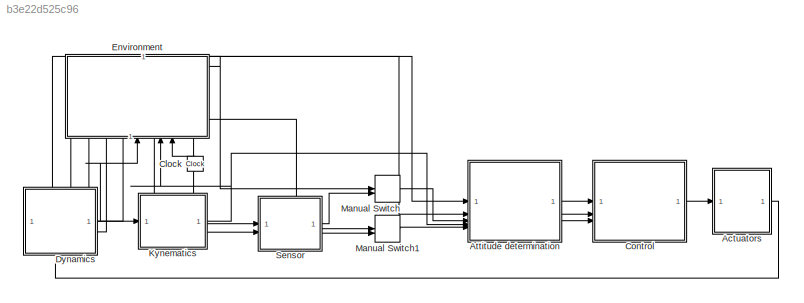
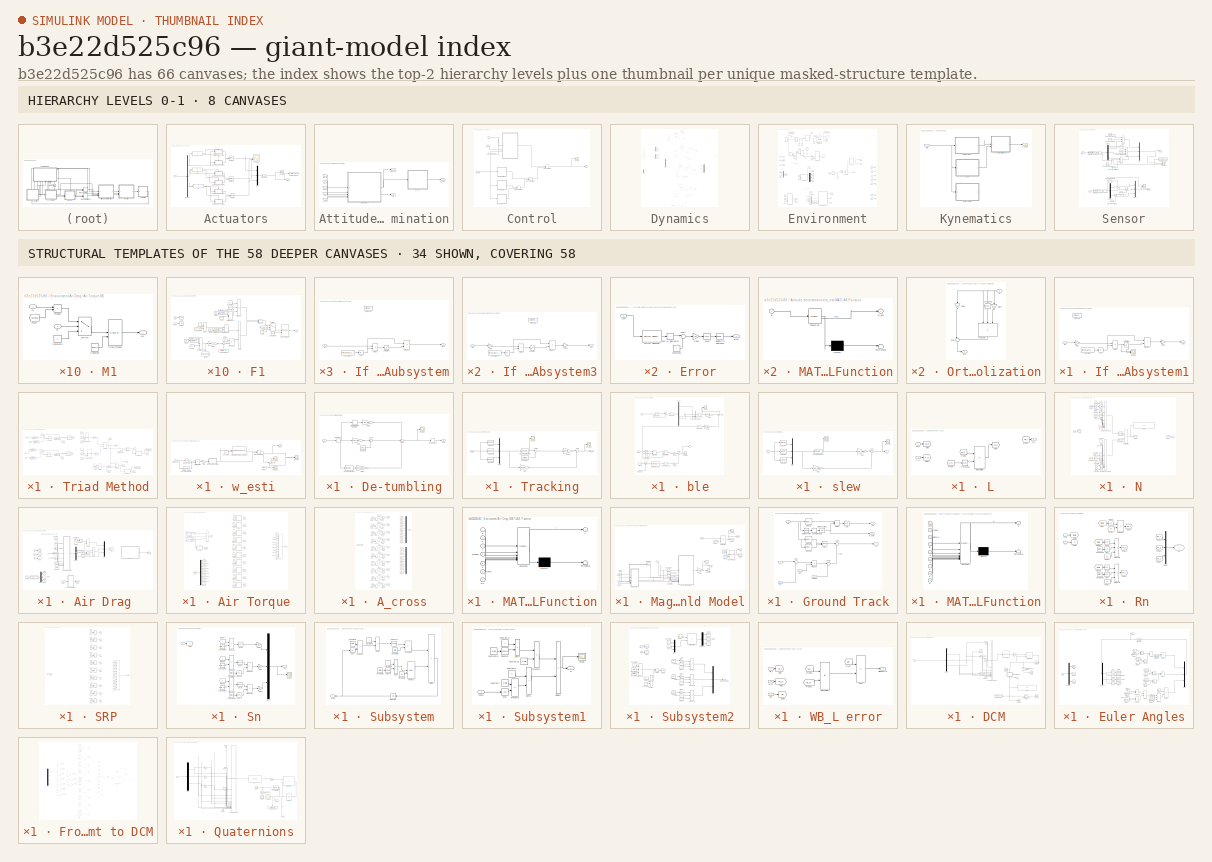
[diagram: thumbnail index - top-2 hierarchy levels (8 canvases) + 34 structural-template representatives of the remaining 58 canvases]
MODEL slx_b3e22d525c96
KIND model
CONFIG AbsTol = 1e-10
CONFIG EnableMultiTasking = off
CONFIG FixedStep = 0.5
CONFIG MaxStep = auto
CONFIG MinStep = auto
CONFIG RelTol = 1e-10
CONFIG SampleTimeConstraint = Unconstrained
CONFIG SolverName = ode45
CONFIG StartTime = 0.0
CONFIG StopTime = 5000
BLOCK [SubSystem] Actuators
BLOCK [Demux] Actuators/Demux
  Outputs = 3
BLOCK [If] Actuators/If
BLOCK [SubSystem] Actuators/If Action Subsystem
  TreatAsAtomicUnit = on
BLOCK [Abs] Actuators/If Action Subsystem/Abs
  SaturateOnIntegerOverflow = off
BLOCK [ActionPort] Actuators/If Action Subsystem/Action Port
  ActionPortLabel = if(u1 > 0)
BLOCK [Constant] Actuators/If Action Subsystem/Constant
  Value = thrus.ACT_x1(3)
BLOCK [Product] Actuators/If Action Subsystem/Divide
  Inputs = */
BLOCK [Inport] Actuators/If Action Subsystem/Mx
BLOCK [Outport] Actuators/If Action Subsystem/Out1
BLOCK [Product] Actuators/If Action Subsystem/Product
BLOCK [Saturate] Actuators/If Action Subsystem/Saturation
  LowerLimit = thrus.low_sat
  UpperLimit = thrus.up_sat
BLOCK [SubSystem] Actuators/If Action Subsystem1
  TreatAsAtomicUnit = on
BLOCK [Inport] Actuators/If Action Subsystem1/-Mx
BLOCK [Abs] Actuators/If Action Subsystem1/Abs
  SaturateOnIntegerOverflow = off
BLOCK [ActionPort] Actuators/If Action Subsystem1/Action Port
  ActionPortLabel = else
BLOCK [Constant] Actuators/If Action Subsystem1/Constant
  Value = thrus.ACT_x2(3)
BLOCK [Product] Actuators/If Action Subsystem1/Divide
  Inputs = */
BLOCK [Gain] Actuators/If Action Subsystem1/Gain
  Gain = -1
BLOCK [Gain] Actuators/If Action Subsystem1/Gain1
  Gain = -1
BLOCK [Outport] Actuators/If Action Subsystem1/Out1
BLOCK [Product] Actuators/If Action Subsystem1/Product
BLOCK [Saturate] Actuators/If Action Subsystem1/Saturation
  LowerLimit = thrus.low_sat
  UpperLimit = thrus.up_sat
BLOCK [Scope] Actuators/If Action Subsystem1/Scope
  Floating = off
  NumInputPorts = 2
  ScopeSpecificationString = Simulink.scopes.TimeScopeBlockCfg('CurrentConfiguration', extmgr.ConfigurationSet(extmgr.Configuration('Core','General UI',true),extmgr.Configuration('Core','Source UI',true),extmgr.Configuration('Sources','WiredSimulink',true,'DataLoggingVariableName','ScopeData6'),extmgr.Configuration('Visuals','Time Domain',true,'SerializedDisplays',{struct('MinYLimReal','-0.00005','MaxYLimReal','0.00045','YLab...<+2099ch>
BLOCK [SubSystem] Actuators/If Action Subsystem2
  TreatAsAtomicUnit = on
BLOCK [Abs] Actuators/If Action Subsystem2/Abs
  SaturateOnIntegerOverflow = off
BLOCK [ActionPort] Actuators/If Action Subsystem2/Action Port
  ActionPortLabel = if(u1 > 0)
BLOCK [Constant] Actuators/If Action Subsystem2/Constant
  Value = thrus.ACT_y1(3)
BLOCK [Product] Actuators/If Action Subsystem2/Divide
  Inputs = */
BLOCK [Inport] Actuators/If Action Subsystem2/My
BLOCK [Outport] Actuators/If Action Subsystem2/Out1
BLOCK [Product] Actuators/If Action Subsystem2/Product
BLOCK [Saturate] Actuators/If Action Subsystem2/Saturation
  LowerLimit = thrus.low_sat
  UpperLimit = thrus.up_sat
BLOCK [SubSystem] Actuators/If Action Subsystem3
  TreatAsAtomicUnit = on
BLOCK [Inport] Actuators/If Action Subsystem3/-My
BLOCK [Abs] Actuators/If Action Subsystem3/Abs
  SaturateOnIntegerOverflow = off
BLOCK [ActionPort] Actuators/If Action Subsystem3/Action Port
  ActionPortLabel = else
BLOCK [Constant] Actuators/If Action Subsystem3/Constant
  Value = thrus.ACT_y2(3)
BLOCK [Product] Actuators/If Action Subsystem3/Divide
  Inputs = */
BLOCK [Gain] Actuators/If Action Subsystem3/Gain
  Gain = -1
BLOCK [Gain] Actuators/If Action Subsystem3/Gain1
  Gain = -1
BLOCK [Outport] Actuators/If Action Subsystem3/Out1
BLOCK [Product] Actuators/If Action Subsystem3/Product
BLOCK [Saturate] Actuators/If Action Subsystem3/Saturation
  LowerLimit = thrus.low_sat
  UpperLimit = thrus.up_sat
BLOCK [SubSystem] Actuators/If Action Subsystem4
  TreatAsAtomicUnit = on
BLOCK [Abs] Actuators/If Action Subsystem4/Abs
  SaturateOnIntegerOverflow = off
BLOCK [ActionPort] Actuators/If Action Subsystem4/Action Port
  ActionPortLabel = if(u1 > 0)
BLOCK [Constant] Actuators/If Action Subsystem4/Constant
  Value = thrus.ACT_z1(2)
BLOCK [Product] Actuators/If Action Subsystem4/Divide
  Inputs = */
BLOCK [Inport] Actuators/If Action Subsystem4/Mz
BLOCK [Outport] Actuators/If Action Subsystem4/Out1
BLOCK [Product] Actuators/If Action Subsystem4/Product
BLOCK [Saturate] Actuators/If Action Subsystem4/Saturation
  LowerLimit = thrus.low_sat
  UpperLimit = thrus.up_sat
BLOCK [SubSystem] Actuators/If Action Subsystem5
  TreatAsAtomicUnit = on
BLOCK [Inport] Actuators/If Action Subsystem5/-Mz
BLOCK [Abs] Actuators/If Action Subsystem5/Abs
  SaturateOnIntegerOverflow = off
BLOCK [ActionPort] Actuators/If Action Subsystem5/Action Port
  ActionPortLabel = else
BLOCK [Constant] Actuators/If Action Subsystem5/Constant
  Value = thrus.ACT_z2(2)
BLOCK [Product] Actuators/If Action Subsystem5/Divide
  Inputs = */
BLOCK [Gain] Actuators/If Action Subsystem5/Gain
  Gain = -1
BLOCK [Gain] Actuators/If Action Subsystem5/Gain1
  Gain = -1
BLOCK [Outport] Actuators/If Action Subsystem5/Out1
BLOCK [Product] Actuators/If Action Subsystem5/Product
BLOCK [Saturate] Actuators/If Action Subsystem5/Saturation
  LowerLimit = thrus.low_sat
  UpperLimit = thrus.up_sat
BLOCK [If] Actuators/If1
BLOCK [If] Actuators/If2
BLOCK [Merge] Actuators/Merge
BLOCK [Merge] Actuators/Merge1
BLOCK [Merge] Actuators/Merge2
BLOCK [Mux] Actuators/Mux
  DisplayOption = bar
  Inputs = 3
BLOCK [Reshape] Actuators/Reshape
  OutputDimensionality = Customize
  OutputDimensions = [1,3]
BLOCK [Scope] Actuators/Scope
  Floating = off
  NumInputPorts = 3
  ScopeSpecificationString = Simulink.scopes.TimeScopeBlockCfg('CurrentConfiguration', extmgr.ConfigurationSet(extmgr.Configuration('Core','General UI',true),extmgr.Configuration('Core','Source UI',true),extmgr.Configuration('Sources','WiredSimulink',true,'DataLoggingVariableName','ScopeData5'),extmgr.Configuration('Visuals','Time Domain',true,'SerializedDisplays',{struct('MinYLimReal','-0.00011','MaxYLimReal','0.00013','YLab...<+2782ch>
BLOCK [Scope] Actuators/Scope1
  Floating = off
  NumInputPorts = 1
  ScopeSpecificationString = Simulink.scopes.TimeScopeBlockCfg('CurrentConfiguration', extmgr.ConfigurationSet(extmgr.Configuration('Core','General UI',true),extmgr.Configuration('Core','Source UI',true),extmgr.Configuration('Sources','WiredSimulink',true,'DataLoggingVariableName','ScopeData7'),extmgr.Configuration('Visuals','Time Domain',true,'SerializedDisplays',{struct('MinYLimReal','-0.00011','MaxYLimReal','0.00012','YLab...<+1446ch>
BLOCK [ToWorkspace] Actuators/To Workspace
  FixptAsFi = on
  MaxDataPoints = inf
  SampleTime = -1
  SaveFormat = Timeseries
  VariableName = T_c
BLOCK [Inport] Actuators/u
BLOCK [Outport] Actuators/u_real
BLOCK [SubSystem] Attitude determination
BLOCK [Inport] Attitude determination/A_DCM
  Port = 4
BLOCK [Outport] Attitude determination/Ae
  Port = 2
BLOCK [Outport] Attitude determination/DCM_est
BLOCK [Inport] Attitude determination/Mm_B
  Port = 3
BLOCK [Inport] Attitude determination/R_n
  Port = 2
BLOCK [Inport] Attitude determination/Rm_b
  Port = 5
BLOCK [SubSystem] Attitude determination/Triad Method
BLOCK [Inport] Attitude determination/Triad Method/A_DCM
  Port = 5
BLOCK [From] Attitude determination/Triad Method/A_LN
  GotoTag = A_LN
  TagVisibility = global
BLOCK [Outport] Attitude determination/Triad Method/Ae
  Port = 2
BLOCK [Reference] Attitude determination/Triad Method/Cross Product  REF=matrix_library/Cross Product
  LibrarySourceBlock = simulink/Matrix\nOperations/Cross Product
  SourceBlock = matrix_library/Cross Product
  SourceType = CrossProduct
BLOCK [Reference] Attitude determination/Triad Method/Cross Product1  REF=matrix_library/Cross Product
  LibrarySourceBlock = simulink/Matrix\nOperations/Cross Product
  SourceBlock = matrix_library/Cross Product
  SourceType = CrossProduct
BLOCK [Reference] Attitude determination/Triad Method/Cross Product2  REF=matrix_library/Cross Product
  LibrarySourceBlock = simulink/Matrix\nOperations/Cross Product
  SourceBlock = matrix_library/Cross Product
  SourceType = CrossProduct
BLOCK [Reference] Attitude determination/Triad Method/Cross Product3  REF=matrix_library/Cross Product
  LibrarySourceBlock = simulink/Matrix\nOperations/Cross Product
  SourceBlock = matrix_library/Cross Product
  SourceType = CrossProduct
BLOCK [Outport] Attitude determination/Triad Method/DCM_est
BLOCK [SubSystem] Attitude determination/Triad Method/Error
BLOCK [Inport] Attitude determination/Triad Method/Error/A_err
BLOCK [Trigonometry] Attitude determination/Triad Method/Error/Acos2
  Operator = acos
BLOCK [Constant] Attitude determination/Triad Method/Error/Constant6
BLOCK [Reference] Attitude determination/Triad Method/Error/Extract Diagonal3  REF=matrix_library/Extract Diagonal
  LibrarySourceBlock = simulink/Matrix\nOperations/Extract Diagonal
  SourceBlock = matrix_library/Extract Diagonal
  SourceType = Extract Diagonal
BLOCK [Gain] Attitude determination/Triad Method/Error/Gain2
  Gain = 0.5
BLOCK [Reference] Attitude determination/Triad Method/Error/Radians to Degrees2  REF=simulink_extras/Transformations/Radians
to Degrees
  SourceBlock = simulink_extras/Transformations/Radians\nto Degrees
  SourceType = RadiansToDegrees
BLOCK [Sum] Attitude determination/Triad Method/Error/Sum of Elements3
  IconShape = rectangular
  Inputs = +
BLOCK [Sum] Attitude determination/Triad Method/Error/Sum7
  Inputs = |+-
BLOCK [Outport] Attitude determination/Triad Method/Error/error
BLOCK [SubSystem] Attitude determination/Triad Method/Error1
BLOCK [Trigonometry] Attitude determination/Triad Method/Error1/Acos2
  Operator = acos
BLOCK [Constant] Attitude determination/Triad Method/Error1/Constant6
BLOCK [Reference] Attitude determination/Triad Method/Error1/Extract Diagonal3  REF=matrix_library/Extract Diagonal
  LibrarySourceBlock = simulink/Matrix\nOperations/Extract Diagonal
  SourceBlock = matrix_library/Extract Diagonal
  SourceType = Extract Diagonal
BLOCK [Gain] Attitude determination/Triad Method/Error1/Gain2
  Gain = 0.5
BLOCK [Inport] Attitude determination/Triad Method/Error1/Id
BLOCK [Reference] Attitude determination/Triad Method/Error1/Radians to Degrees2  REF=simulink_extras/Transformations/Radians
to Degrees
  SourceBlock = simulink_extras/Transformations/Radians\nto Degrees
  SourceType = RadiansToDegrees
BLOCK [Sum] Attitude determination/Triad Method/Error1/Sum of Elements3
  IconShape = rectangular
  Inputs = +
BLOCK [Sum] Attitude determination/Triad Method/Error1/Sum7
  Inputs = |+-
BLOCK [Outport] Attitude determination/Triad Method/Error1/error
BLOCK [From] Attitude determination/Triad Method/From
  GotoTag = S1
  NameLocation = top
BLOCK [From] Attitude determination/Triad Method/From1
  GotoTag = S2
BLOCK [From] Attitude determination/Triad Method/From2
  GotoTag = S3
BLOCK [From] Attitude determination/Triad Method/From3
  GotoTag = V1
  NameLocation = top
BLOCK [From] Attitude determination/Triad Method/From4
  GotoTag = V2
BLOCK [From] Attitude determination/Triad Method/From5
  GotoTag = V3
BLOCK [Goto] Attitude determination/Triad Method/Goto
  GotoTag = S3
BLOCK [Goto] Attitude determination/Triad Method/Goto1
  GotoTag = S1
  NameLocation = top
BLOCK [Goto] Attitude determination/Triad Method/Goto2
  GotoTag = S2
BLOCK [Goto] Attitude determination/Triad Method/Goto3
  GotoTag = V3
BLOCK [Goto] Attitude determination/Triad Method/Goto4
  GotoTag = V1
  NameLocation = top
BLOCK [Goto] Attitude determination/Triad Method/Goto5
  GotoTag = V2
BLOCK [Goto] Attitude determination/Triad Method/Goto6
  GotoTag = A_d
  TagVisibility = global
BLOCK [Concatenate] Attitude determination/Triad Method/Matrix Concatenate
  ConcatenateDimension = 2
  Mode = Multidimensional array
  NumInputs = 3
BLOCK [Concatenate] Attitude determination/Triad Method/Matrix Concatenate1
  ConcatenateDimension = 2
  Mode = Multidimensional array
  NumInputs = 3
BLOCK [Product] Attitude determination/Triad Method/MatrixMultiply
  Multiplication = Matrix(*)
BLOCK [Product] Attitude determination/Triad Method/MatrixMultiply1
  Multiplication = Matrix(*)
BLOCK [Product] Attitude determination/Triad Method/MatrixMultiply2
  Multiplication = Matrix(*)
BLOCK [Product] Attitude determination/Triad Method/MatrixMultiply4
  Multiplication = Matrix(*)
BLOCK [Inport] Attitude determination/Triad Method/Mm_B
  Port = 3
BLOCK [Reference] Attitude determination/Triad Method/Normalize Vector  REF=vrlib/Utilities/Normalize Vector
  SourceBlock = vrlib/Utilities/Normalize Vector
  SourceType = Normalize Vector
BLOCK [Reference] Attitude determination/Triad Method/Normalize Vector1  REF=vrlib/Utilities/Normalize Vector
  SourceBlock = vrlib/Utilities/Normalize Vector
  SourceType = Normalize Vector
BLOCK [Reference] Attitude determination/Triad Method/Normalize Vector2  REF=vrlib/Utilities/Normalize Vector
  SourceBlock = vrlib/Utilities/Normalize Vector
  SourceType = Normalize Vector
BLOCK [Reference] Attitude determination/Triad Method/Normalize Vector3  REF=vrlib/Utilities/Normalize Vector
  SourceBlock = vrlib/Utilities/Normalize Vector
  SourceType = Normalize Vector
BLOCK [Reference] Attitude determination/Triad Method/Normalize Vector4  REF=vrlib/Utilities/Normalize Vector
  SourceBlock = vrlib/Utilities/Normalize Vector
  SourceType = Normalize Vector
BLOCK [Reference] Attitude determination/Triad Method/Normalize Vector5  REF=vrlib/Utilities/Normalize Vector
  SourceBlock = vrlib/Utilities/Normalize Vector
  SourceType = Normalize Vector
BLOCK [Inport] Attitude determination/Triad Method/R_n
  Port = 2
BLOCK [Reshape] Attitude determination/Triad Method/Reshape
  OutputDimensionality = Customize
  OutputDimensions = [3,3]
BLOCK [Inport] Attitude determination/Triad Method/Rm_b
BLOCK [Scope] Attitude determination/Triad Method/Scope
  Floating = off
  NumInputPorts = 1
  ScopeSpecificationString = Simulink.scopes.TimeScopeBlockCfg('CurrentConfiguration', extmgr.ConfigurationSet(extmgr.Configuration('Core','General UI',true),extmgr.Configuration('Core','Source UI',true),extmgr.Configuration('Sources','WiredSimulink',true,'DataLoggingVariableName','ScopeData4'),extmgr.Configuration('Visuals','Time Domain',true,'SerializedDisplays',{struct('MinYLimReal','-1.22995','MaxYLimReal','1.06958','YLab...<+1750ch>
BLOCK [Scope] Attitude determination/Triad Method/Scope1
  Floating = off
  NumInputPorts = 1
  ScopeSpecificationString = Simulink.scopes.TimeScopeBlockCfg('CurrentConfiguration', extmgr.ConfigurationSet(extmgr.Configuration('Core','General UI',true),extmgr.Configuration('Core','Source UI',true),extmgr.Configuration('Sources','WiredSimulink',true,'DataLoggingVariableName','ScopeData5'),extmgr.Configuration('Visuals','Time Domain',true,'SerializedDisplays',{struct('MinYLimReal','-0.35384','MaxYLimReal','1.15043','YLab...<+1788ch>
BLOCK [Scope] Attitude determination/Triad Method/Scope10
  Floating = off
  NumInputPorts = 1
  ScopeSpecificationString = Simulink.scopes.TimeScopeBlockCfg('CurrentConfiguration', extmgr.ConfigurationSet(extmgr.Configuration('Core','General UI',true),extmgr.Configuration('Core','Source UI',true),extmgr.Configuration('Sources','WiredSimulink',true,'DataLoggingVariableName','ScopeData1'),extmgr.Configuration('Visuals','Time Domain',true,'SerializedDisplays',{struct('MinYLimReal','-1.07787','MaxYLimReal','10.1427','YLab...<+1556ch>
BLOCK [Scope] Attitude determination/Triad Method/Scope2
  Floating = off
  NumInputPorts = 1
  ScopeSpecificationString = Simulink.scopes.TimeScopeBlockCfg('CurrentConfiguration', extmgr.ConfigurationSet(extmgr.Configuration('Core','General UI',true),extmgr.Configuration('Core','Source UI',true),extmgr.Configuration('Sources','WiredSimulink',true,'DataLoggingVariableName','ScopeData7'),extmgr.Configuration('Visuals','Time Domain',true,'SerializedDisplays',{struct('MinYLimReal','-1.14138','MaxYLimReal','10.4246','YLab...<+1563ch>
BLOCK [Scope] Attitude determination/Triad Method/Scope9
  Floating = off
  NumInputPorts = 1
  ScopeSpecificationString = Simulink.scopes.TimeScopeBlockCfg('CurrentConfiguration', extmgr.ConfigurationSet(extmgr.Configuration('Core','General UI',true),extmgr.Configuration('Core','Source UI',true),extmgr.Configuration('Sources','WiredSimulink',true,'DataLoggingVariableName','ScopeData2'),extmgr.Configuration('Visuals','Time Domain',true,'SerializedDisplays',{struct('MinYLimReal','-0.37929','MaxYLimReal','1.15325','YLab...<+2010ch>
BLOCK [Constant] Attitude determination/Triad Method/Target in B//L
  Value = A_T
  VectorParams1D = off
BLOCK [ToWorkspace] Attitude determination/Triad Method/To Workspace
  FixptAsFi = on
  MaxDataPoints = inf
  SampleTime = -1
  SaveFormat = Structure
  VariableName = err_triad
BLOCK [ToWorkspace] Attitude determination/Triad Method/To Workspace1
  FixptAsFi = on
  MaxDataPoints = inf
  SampleTime = -1
  SaveFormat = Timeseries
  VariableName = att_err
BLOCK [Math] Attitude determination/Triad Method/Transpose
  Operator = transpose
BLOCK [Math] Attitude determination/Triad Method/Transpose1
  Operator = transpose
BLOCK [Math] Attitude determination/Triad Method/Transpose5
  Operator = transpose
BLOCK [Inport] Attitude determination/Triad Method/m_N
  Port = 4
BLOCK [Inport] Attitude determination/m_N
BLOCK [Outport] Attitude determination/w_est
  Port = 3
BLOCK [SubSystem] Attitude determination/w_esti
BLOCK [Constant] Attitude determination/w_esti/Constant
  Value = 0.2
BLOCK [Inport] Attitude determination/w_esti/DCM_est
BLOCK [Reference] Attitude determination/w_esti/Discrete Derivative  REF=simulink/Quick Insert/Discrete/Discrete Derivative
  SourceBlock = simulink/Quick Insert/Discrete/Discrete Derivative
  SourceType = Discrete Derivative
BLOCK [Reference] Attitude determination/w_esti/Discrete Varying Lowpass  REF=cstblocks/Linear Parameter Varying/Discrete Varying Lowpass
  SourceBlock = cstblocks/Linear Parameter Varying/Discrete Varying Lowpass
  SourceType = Discrete Varying Lowpass
BLOCK [From] Attitude determination/w_esti/From
  GotoTag = wB
  TagVisibility = global
BLOCK [Gain] Attitude determination/w_esti/Gain
  Gain = -1
BLOCK [SubSystem] Attitude determination/w_esti/MATLAB Function
  ErrorFcn = Stateflow.Translate.translate
  LibrarySourceBlock = simulink/User-Defined\nFunctions/MATLAB Function
  PermitHierarchicalResolution = ExplicitOnly
  SFBlockType = MATLAB Function
  TreatAsAtomicUnit = on
BLOCK [Demux] Attitude determination/w_esti/MATLAB Function/ Demux 
  Outputs = 1
BLOCK [S-Function] Attitude determination/w_esti/MATLAB Function/ SFunction 
  EnableBusSupport = on
  FunctionName = sf_sfun
  PortCounts = [1 2]
  SFcnIsStateOwnerBlock = off
  SFunctionDeploymentMode = off
  Tag = Stateflow S-Function 5
BLOCK [Terminator] Attitude determination/w_esti/MATLAB Function/ Terminator 
BLOCK [Inport] Attitude determination/w_esti/MATLAB Function/w
BLOCK [Outport] Attitude determination/w_esti/MATLAB Function/w_est
BLOCK [ManualSwitch] Attitude determination/w_esti/Manual Switch1
BLOCK [Product] Attitude determination/w_esti/MatrixMultiply
  Multiplication = Matrix(*)
BLOCK [Outport] Attitude determination/w_esti/Output
BLOCK [Scope] Attitude determination/w_esti/Scope
  Floating = off
  NumInputPorts = 2
  ScopeSpecificationString = Simulink.scopes.TimeScopeBlockCfg('CurrentConfiguration', extmgr.ConfigurationSet(extmgr.Configuration('Core','General UI',true),extmgr.Configuration('Core','Source UI',true),extmgr.Configuration('Sources','WiredSimulink',true,'DataLoggingVariableName','ScopeData1'),extmgr.Configuration('Visuals','Time Domain',true,'SerializedDisplays',{struct('MinYLimReal','-0.16681','MaxYLimReal','0.12418','YLab...<+2257ch>
BLOCK [Scope] Attitude determination/w_esti/Scope1
  Floating = off
  NumInputPorts = 1
  ScopeSpecificationString = Simulink.scopes.TimeScopeBlockCfg('CurrentConfiguration', extmgr.ConfigurationSet(extmgr.Configuration('Core','General UI',true),extmgr.Configuration('Core','Source UI',true),extmgr.Configuration('Sources','WiredSimulink',true,'DataLoggingVariableName','ScopeData2'),extmgr.Configuration('Visuals','Time Domain',true,'SerializedDisplays',{struct('MinYLimReal','-3001974191835557.5','MaxYLimReal','310...<+1571ch>
BLOCK [Scope] Attitude determination/w_esti/Scope2
  Floating = off
  NumInputPorts = 1
  ScopeSpecificationString = Simulink.scopes.TimeScopeBlockCfg('CurrentConfiguration', extmgr.ConfigurationSet(extmgr.Configuration('Core','General UI',true),extmgr.Configuration('Core','Source UI',true),extmgr.Configuration('Sources','WiredSimulink',true,'DataLoggingVariableName','ScopeData3'),extmgr.Configuration('Visuals','Time Domain',true,'SerializedDisplays',{struct('MinYLimReal','-0.07557','MaxYLimReal','0.08605','YLab...<+1480ch>
BLOCK [Sum] Attitude determination/w_esti/Sum
  Inputs = |+-
BLOCK [Math] Attitude determination/w_esti/Transpose
  Operator = transpose
BLOCK [Clock] Clock
  NameLocation = right
BLOCK [SubSystem] Control
BLOCK [Inport] Control/Ae
  Port = 2
BLOCK [Inport] Control/DCM_est
BLOCK [SubSystem] Control/De-tumbling
  Commented = on
BLOCK [Constant] Control/De-tumbling/Constant
  Value = zero_w
BLOCK [Reference] Control/De-tumbling/Discrete Derivative  REF=simulink/Discrete/Discrete Derivative
  SourceBlock = simulink/Discrete/Discrete Derivative
  SourceType = Discrete Derivative
BLOCK [DiscreteIntegrator] Control/De-tumbling/Discrete-Time Integrator
  ICPrevOutput = DiscIntNeverNeededParam
  ICPrevScaledInput = DiscIntNeverNeededParam
  InitialConditionSetting = Auto
  SampleTime = -1
BLOCK [Gain] Control/De-tumbling/Gain
  Gain = -kp_detum
BLOCK [Gain] Control/De-tumbling/Gain1
  Gain = -kd_detum
BLOCK [Gain] Control/De-tumbling/Gain2
  Gain = -kp_detum
BLOCK [Inport] Control/De-tumbling/In1
BLOCK [Outport] Control/De-tumbling/Out1
BLOCK [Reshape] Control/De-tumbling/Reshape
  OutputDimensionality = Customize
  OutputDimensions = [1,3]
BLOCK [Reshape] Control/De-tumbling/Reshape1
  OutputDimensionality = Customize
  OutputDimensions = [1,3]
BLOCK [Scope] Control/De-tumbling/Scope
  Floating = off
  NumInputPorts = 1
  ScopeSpecificationString = Simulink.scopes.TimeScopeBlockCfg('CurrentConfiguration', extmgr.ConfigurationSet(extmgr.Configuration('Core','General UI',true),extmgr.Configuration('Core','Source UI',true),extmgr.Configuration('Sources','WiredSimulink',true,'DataLoggingVariableName','ScopeData1'),extmgr.Configuration('Visuals','Time Domain',true,'SerializedDisplays',{struct('MinYLimReal','-0.01671','MaxYLimReal','0.00243','YLab...<+1405ch>
BLOCK [Sum] Control/De-tumbling/Sum
  Inputs = +++
BLOCK [Sum] Control/De-tumbling/Sum1
  Inputs = |++
BLOCK [ManualSwitch] Control/Manual Switch
  CurrentSetting = 0
BLOCK [ManualSwitch] Control/Manual Switch1
  CurrentSetting = 0
BLOCK [ManualSwitch] Control/Manual Switch2
BLOCK [Scope] Control/Scope
  Floating = off
  NumInputPorts = 1
  ScopeSpecificationString = Simulink.scopes.TimeScopeBlockCfg('CurrentConfiguration', extmgr.ConfigurationSet(extmgr.Configuration('Core','General UI',true),extmgr.Configuration('Core','Source UI',true),extmgr.Configuration('Sources','WiredSimulink',true,'DataLoggingVariableName','ScopeData3'),extmgr.Configuration('Visuals','Time Domain',true,'SerializedDisplays',{struct('MinYLimReal','-0.07266','MaxYLimReal','0.64922','YLab...<+1483ch>
BLOCK [SubSystem] Control/Tracking
BLOCK [Inport] Control/Tracking/Ae
BLOCK [Constant] Control/Tracking/Constant
  Value = w_track
BLOCK [Reference] Control/Tracking/Discrete Derivative  REF=simulink/Discrete/Discrete Derivative
  SourceBlock = simulink/Discrete/Discrete Derivative
  SourceType = Discrete Derivative
BLOCK [Gain] Control/Tracking/Gain
  Gain = -kp_track
BLOCK [Gain] Control/Tracking/Gain1
  Gain = -kd_track
BLOCK [Mux] Control/Tracking/Mux
  DisplayOption = bar
  Inputs = 3
BLOCK [Scope] Control/Tracking/Scope
  Floating = off
  NumInputPorts = 1
  ScopeSpecificationString = Simulink.scopes.TimeScopeBlockCfg('CurrentConfiguration', extmgr.ConfigurationSet(extmgr.Configuration('Core','General UI',true),extmgr.Configuration('Core','Source UI',true),extmgr.Configuration('Sources','WiredSimulink',true,'DataLoggingVariableName','ScopeData1'),extmgr.Configuration('Visuals','Time Domain',true,'SerializedDisplays',{struct('MinYLimReal','-0.62794','MaxYLimReal','0.65609','YLab...<+1428ch>
BLOCK [Scope] Control/Tracking/Scope1
  Floating = off
  NumInputPorts = 1
  ScopeSpecificationString = Simulink.scopes.TimeScopeBlockCfg('CurrentConfiguration', extmgr.ConfigurationSet(extmgr.Configuration('Core','General UI',true),extmgr.Configuration('Core','Source UI',true),extmgr.Configuration('Sources','WiredSimulink',true,'DataLoggingVariableName','ScopeData3'),extmgr.Configuration('Visuals','Time Domain',true),extmgr.Configuration('Tools','Plot Navigation',true),extmgr.Configuration('Tools',...<+40ch>
BLOCK [Selector] Control/Tracking/Selector
  IndexOptions = Index vector (dialog),Index vector (dialog)
  Indices = 2,3
  InputPortWidth = 3
  NumberOfDimensions = 2
  OutputSizes = 1,1
BLOCK [Selector] Control/Tracking/Selector1
  IndexOptions = Index vector (dialog),Index vector (dialog)
  Indices = 3,1
  InputPortWidth = 3
  NumberOfDimensions = 2
  OutputSizes = 1,1
BLOCK [Selector] Control/Tracking/Selector2
  IndexOptions = Index vector (dialog),Index vector (dialog)
  Indices = 1,2
  InputPortWidth = 3
  NumberOfDimensions = 2
  OutputSizes = 1,1
BLOCK [Sum] Control/Tracking/Sum
  Inputs = |++
BLOCK [Sum] Control/Tracking/Sum1
  Inputs = |+-
BLOCK [Outport] Control/Tracking/u
BLOCK [SubSystem] Control/ble
  Commented = on
BLOCK [Inport] Control/ble/Ae
BLOCK [Constant] Control/ble/Constant1
  Value = I
BLOCK [Inport] Control/ble/DCM_est
  Port = 3
BLOCK [Demux] Control/ble/Demux
  Outputs = 9
BLOCK [Reference] Control/ble/Extract Diagonal  REF=matrix_library/Extract Diagonal
  LibrarySourceBlock = simulink/Matrix\nOperations/Extract Diagonal
  SourceBlock = matrix_library/Extract Diagonal
  SourceType = Extract Diagonal
BLOCK [From] Control/ble/From
  GotoTag = A_d
  TagVisibility = global
BLOCK [Gain] Control/ble/Gain1
  Gain = kp_detum(2)
BLOCK [Gain] Control/ble/Gain2
  Gain = -kd_track
BLOCK [Gain] Control/ble/Gain3
  Gain = -kp_track
BLOCK [Gain] Control/ble/Gain4
  Gain = 0.5
BLOCK [Product] Control/ble/MatrixMultiply
  Multiplication = Matrix(*)
BLOCK [Product] Control/ble/MatrixMultiply1
  Multiplication = Matrix(*)
BLOCK [Reshape] Control/ble/Reshape
  OutputDimensionality = Customize
  OutputDimensions = [9,1]
BLOCK [Reshape] Control/ble/Reshape1
  OutputDimensionality = Customize
  OutputDimensions = [1,3]
BLOCK [Reshape] Control/ble/Reshape2
  OutputDimensionality = Customize
  OutputDimensions = [1,3]
BLOCK [Scope] Control/ble/Scope
  Floating = off
  NumInputPorts = 2
  ScopeSpecificationString = Simulink.scopes.TimeScopeBlockCfg('CurrentConfiguration', extmgr.ConfigurationSet(extmgr.Configuration('Core','General UI',true),extmgr.Configuration('Core','Source UI',true),extmgr.Configuration('Sources','WiredSimulink',true,'DataLoggingVariableName','ScopeData1'),extmgr.Configuration('Visuals','Time Domain',true,'SerializedDisplays',{struct('MinYLimReal','-2.36695','MaxYLimReal','2.41775','YLab...<+2108ch>
BLOCK [Scope] Control/ble/Scope2
  Floating = off
  NumInputPorts = 1
  ScopeSpecificationString = Simulink.scopes.TimeScopeBlockCfg('CurrentConfiguration', extmgr.ConfigurationSet(extmgr.Configuration('Core','General UI',true),extmgr.Configuration('Core','Source UI',true),extmgr.Configuration('Sources','WiredSimulink',true,'DataLoggingVariableName','ScopeData4'),extmgr.Configuration('Visuals','Time Domain',true,'SerializedDisplays',{struct('MinYLimReal','-0.0043','MaxYLimReal','0.03383','YLabe...<+1415ch>
BLOCK [Sum] Control/ble/Sum
  Inputs = |+-
BLOCK [Sum] Control/ble/Sum of Elements
  IconShape = rectangular
  Inputs = +
BLOCK [Sum] Control/ble/Sum1
  Inputs = |++
BLOCK [Sum] Control/ble/Sum2
  Inputs = |++
BLOCK [Sum] Control/ble/Sum3
  Inputs = |+-
BLOCK [Math] Control/ble/Transpose
  Operator = transpose
BLOCK [Math] Control/ble/Transpose1
  Operator = transpose
BLOCK [Concatenate] Control/ble/Vector Concatenate
  NumInputs = 3
BLOCK [Outport] Control/ble/u
BLOCK [Inport] Control/ble/w_est
  Port = 2
BLOCK [SubSystem] Control/slew
  Commented = on
BLOCK [Inport] Control/slew/Ae
BLOCK [Reference] Control/slew/Discrete Derivative  REF=simulink/Discrete/Discrete Derivative
  SourceBlock = simulink/Discrete/Discrete Derivative
  SourceType = Discrete Derivative
BLOCK [Gain] Control/slew/Gain
  Gain = -kp_slew
BLOCK [Gain] Control/slew/Gain1
  Gain = -kd_slew
BLOCK [Mux] Control/slew/Mux
  DisplayOption = bar
  Inputs = 3
BLOCK [Scope] Control/slew/Scope
  Floating = off
  NumInputPorts = 1
  ScopeSpecificationString = Simulink.scopes.TimeScopeBlockCfg('CurrentConfiguration', extmgr.ConfigurationSet(extmgr.Configuration('Core','General UI',true),extmgr.Configuration('Core','Source UI',true),extmgr.Configuration('Sources','WiredSimulink',true,'DataLoggingVariableName','ScopeData1'),extmgr.Configuration('Visuals','Time Domain',true,'SerializedDisplays',{struct('MinYLimReal','-1.74315','MaxYLimReal','2.10451','YLab...<+1428ch>
BLOCK [Scope] Control/slew/Scope1
  Floating = off
  NumInputPorts = 1
  ScopeSpecificationString = Simulink.scopes.TimeScopeBlockCfg('CurrentConfiguration', extmgr.ConfigurationSet(extmgr.Configuration('Core','General UI',true),extmgr.Configuration('Core','Source UI',true),extmgr.Configuration('Sources','WiredSimulink',true,'DataLoggingVariableName','ScopeData2'),extmgr.Configuration('Visuals','Time Domain',true,'SerializedDisplays',{struct('MinYLimReal','-0.01201','MaxYLimReal','0.01148','YLab...<+1405ch>
BLOCK [Selector] Control/slew/Selector
  IndexOptions = Index vector (dialog),Index vector (dialog)
  Indices = 2,3
  InputPortWidth = 3
  NumberOfDimensions = 2
  OutputSizes = 1,1
BLOCK [Selector] Control/slew/Selector1
  IndexOptions = Index vector (dialog),Index vector (dialog)
  Indices = 3,1
  InputPortWidth = 3
  NumberOfDimensions = 2
  OutputSizes = 1,1
BLOCK [Selector] Control/slew/Selector2
  IndexOptions = Index vector (dialog),Index vector (dialog)
  Indices = 1,2
  InputPortWidth = 3
  NumberOfDimensions = 2
  OutputSizes = 1,1
BLOCK [Sum] Control/slew/Sum
  Inputs = |++
BLOCK [Outport] Control/slew/u
BLOCK [Outport] Control/u
BLOCK [Inport] Control/w_est
  Port = 3
BLOCK [InportShadow] Control/w_est1
  Port = 3
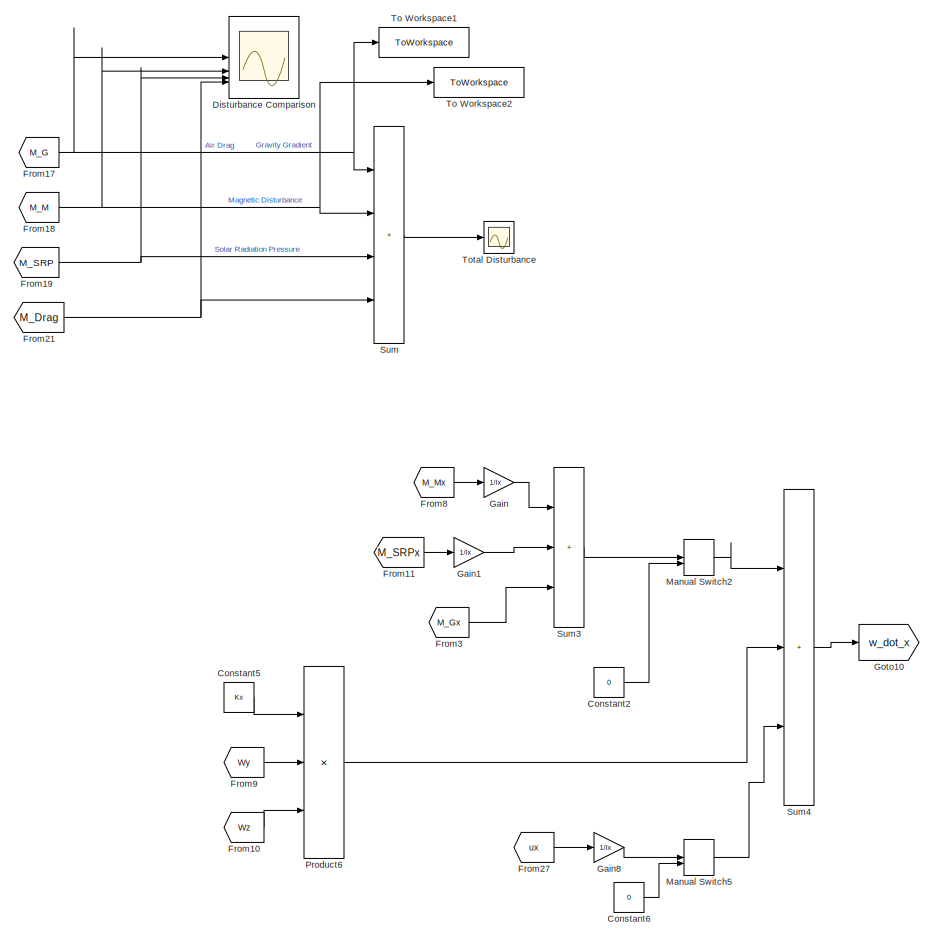
[diagram: Dynamics - part 1/5, top center region]
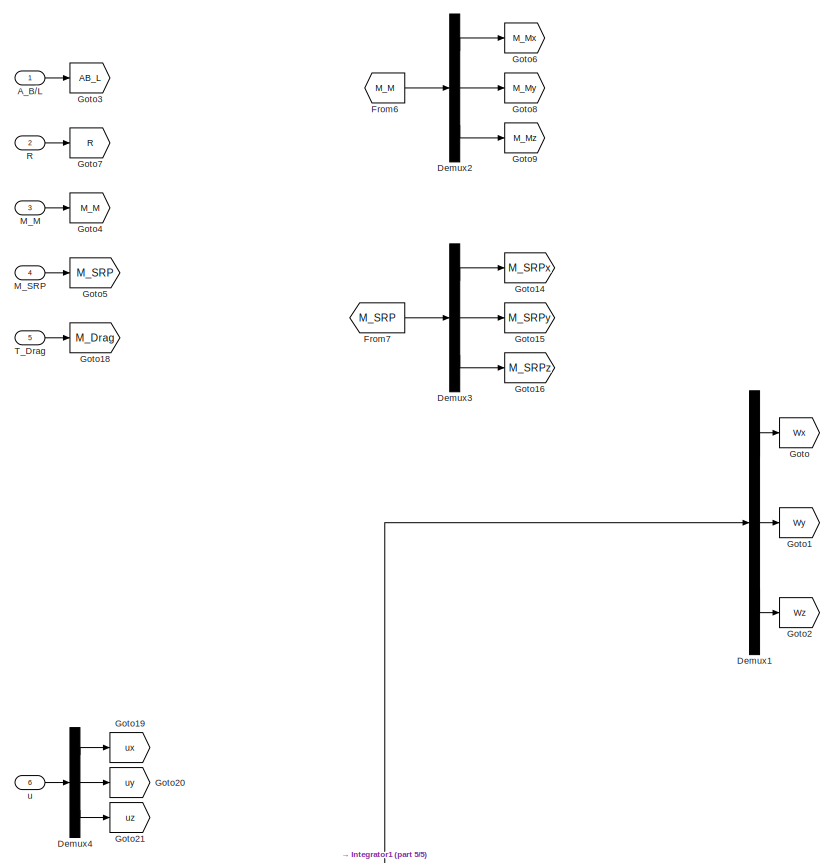
[diagram: Dynamics - part 2/5, middle left region]
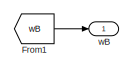
[diagram: Dynamics - part 3/5, middle right region]
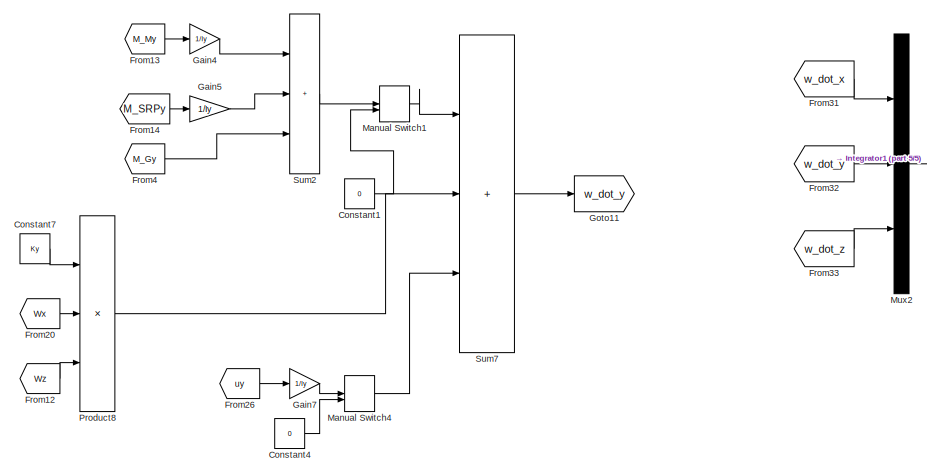
[diagram: Dynamics - part 4/5, central region]
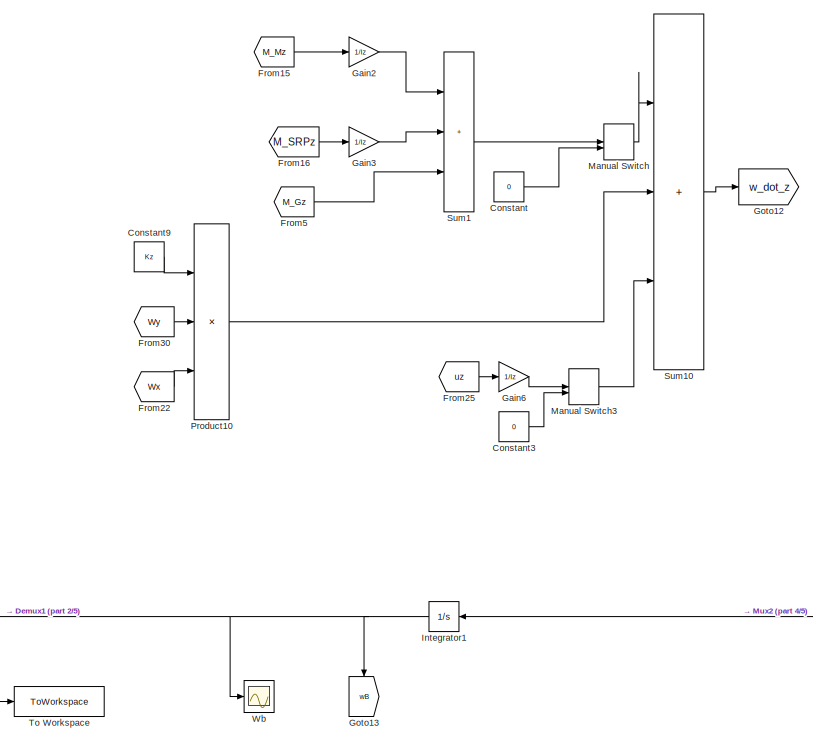
[diagram: Dynamics - part 5/5, bottom center region]
BLOCK [SubSystem] Dynamics
  PortSchema = {"entries":[{"content":{"sides":[{"content":{"connectorIds":["In1","In2","In3","In4","In5"]},"type":"ConnectorPlacement.EquallySpacedRectSide","uuid":"e2546f43-0f76-43d8-9016-47189d28d8c0"},{"content":{"connectorIds":["Out1"],"side":"RIGHT"},"type":"ConnectorPlacement.EquallySpacedRectSide","uuid":"72ec595a-943a-4b6a-9d51-6626181bb7e6"},{"content":{"connectorIds":[],"side":"TOP"},"type":"Connector...<+413ch>
BLOCK [Inport] Dynamics/A_B//L
BLOCK [Constant] Dynamics/Constant
  Value = 0
BLOCK [Constant] Dynamics/Constant1
  Value = 0
BLOCK [Constant] Dynamics/Constant2
  Value = 0
BLOCK [Constant] Dynamics/Constant3
  Value = 0
BLOCK [Constant] Dynamics/Constant4
  Value = 0
BLOCK [Constant] Dynamics/Constant5
  Value = Kx
BLOCK [Constant] Dynamics/Constant6
  Value = 0
BLOCK [Constant] Dynamics/Constant7
  Value = Ky
BLOCK [Constant] Dynamics/Constant9
  Value = Kz
BLOCK [Demux] Dynamics/Demux1
  Outputs = 3
BLOCK [Demux] Dynamics/Demux2
  Outputs = 3
BLOCK [Demux] Dynamics/Demux3
  Outputs = 3
BLOCK [Demux] Dynamics/Demux4
  Outputs = 3
BLOCK [Scope] Dynamics/Disturbance Comparison
  Floating = off
  NumInputPorts = 4
  ScopeSpecificationString = Simulink.scopes.TimeScopeBlockCfg('CurrentConfiguration', extmgr.ConfigurationSet(extmgr.Configuration('Core','General UI',true),extmgr.Configuration('Core','Source UI',true),extmgr.Configuration('Sources','WiredSimulink',true,'DataLoggingVariableName','ScopeData2'),extmgr.Configuration('Visuals','Time Domain',true,'SerializedDisplays',{struct('MinYLimReal','-0.000004','MaxYLimReal','0.000004','YL...<+3790ch>
BLOCK [From] Dynamics/From1
  GotoTag = wB
  TagVisibility = global
BLOCK [From] Dynamics/From10
  GotoTag = Wz
BLOCK [From] Dynamics/From11
  Commented = on
  GotoTag = M_SRPx
BLOCK [From] Dynamics/From12
  GotoTag = Wz
BLOCK [From] Dynamics/From13
  GotoTag = M_My
BLOCK [From] Dynamics/From14
  Commented = on
  GotoTag = M_SRPy
BLOCK [From] Dynamics/From15
  GotoTag = M_Mz
BLOCK [From] Dynamics/From16
  Commented = on
  GotoTag = M_SRPz
BLOCK [From] Dynamics/From17
  GotoTag = M_G
  TagVisibility = global
BLOCK [From] Dynamics/From18
  GotoTag = M_M
BLOCK [From] Dynamics/From19
  GotoTag = M_SRP
BLOCK [From] Dynamics/From20
  GotoTag = Wx
BLOCK [From] Dynamics/From21
  GotoTag = M_Drag
BLOCK [From] Dynamics/From22
  GotoTag = Wx
BLOCK [From] Dynamics/From25
  GotoTag = uz
BLOCK [From] Dynamics/From26
  GotoTag = uy
BLOCK [From] Dynamics/From27
  GotoTag = ux
BLOCK [From] Dynamics/From3
  GotoTag = M_Gx
  TagVisibility = global
BLOCK [From] Dynamics/From30
  GotoTag = Wy
BLOCK [From] Dynamics/From31
  GotoTag = w_dot_x
BLOCK [From] Dynamics/From32
  GotoTag = w_dot_y
BLOCK [From] Dynamics/From33
  GotoTag = w_dot_z
BLOCK [From] Dynamics/From4
  GotoTag = M_Gy
  TagVisibility = global
BLOCK [From] Dynamics/From5
  GotoTag = M_Gz
  TagVisibility = global
BLOCK [From] Dynamics/From6
  GotoTag = M_M
BLOCK [From] Dynamics/From7
  GotoTag = M_SRP
BLOCK [From] Dynamics/From8
  GotoTag = M_Mx
BLOCK [From] Dynamics/From9
  GotoTag = Wy
BLOCK [Gain] Dynamics/Gain
  Gain = 1/Ix
BLOCK [Gain] Dynamics/Gain1
  Commented = on
  Gain = 1/Ix
BLOCK [Gain] Dynamics/Gain2
  Gain = 1/Iz
BLOCK [Gain] Dynamics/Gain3
  Commented = on
  Gain = 1/Iz
BLOCK [Gain] Dynamics/Gain4
  Gain = 1/Iy
BLOCK [Gain] Dynamics/Gain5
  Commented = on
  Gain = 1/Iy
BLOCK [Gain] Dynamics/Gain6
  Gain = 1/Iz
BLOCK [Gain] Dynamics/Gain7
  Gain = 1/Iy
BLOCK [Gain] Dynamics/Gain8
  Gain = 1/Ix
BLOCK [Goto] Dynamics/Goto
  GotoTag = Wx
BLOCK [Goto] Dynamics/Goto1
  GotoTag = Wy
BLOCK [Goto] Dynamics/Goto10
  GotoTag = w_dot_x
BLOCK [Goto] Dynamics/Goto11
  GotoTag = w_dot_y
BLOCK [Goto] Dynamics/Goto12
  GotoTag = w_dot_z
BLOCK [Goto] Dynamics/Goto13
  GotoTag = wB
  NameLocation = left
  TagVisibility = global
BLOCK [Goto] Dynamics/Goto14
  GotoTag = M_SRPx
BLOCK [Goto] Dynamics/Goto15
  GotoTag = M_SRPy
BLOCK [Goto] Dynamics/Goto16
  GotoTag = M_SRPz
BLOCK [Goto] Dynamics/Goto18
  GotoTag = M_Drag
BLOCK [Goto] Dynamics/Goto19
  GotoTag = ux
BLOCK [Goto] Dynamics/Goto2
  GotoTag = Wz
BLOCK [Goto] Dynamics/Goto20
  GotoTag = uy
BLOCK [Goto] Dynamics/Goto21
  GotoTag = uz
BLOCK [Goto] Dynamics/Goto3
  GotoTag = AB_L
BLOCK [Goto] Dynamics/Goto4
  GotoTag = M_M
BLOCK [Goto] Dynamics/Goto5
  GotoTag = M_SRP
BLOCK [Goto] Dynamics/Goto6
  GotoTag = M_Mx
BLOCK [Goto] Dynamics/Goto7
  GotoTag = R
BLOCK [Goto] Dynamics/Goto8
  GotoTag = M_My
BLOCK [Goto] Dynamics/Goto9
  GotoTag = M_Mz
BLOCK [Integrator] Dynamics/Integrator1
  InitialCondition = [w0x; w0y; w0z]'
  NameLocation = top
BLOCK [Inport] Dynamics/M_M
  Port = 3
BLOCK [Inport] Dynamics/M_SRP
  Port = 4
BLOCK [ManualSwitch] Dynamics/Manual Switch
BLOCK [ManualSwitch] Dynamics/Manual Switch1
BLOCK [ManualSwitch] Dynamics/Manual Switch2
BLOCK [ManualSwitch] Dynamics/Manual Switch3
BLOCK [ManualSwitch] Dynamics/Manual Switch4
BLOCK [ManualSwitch] Dynamics/Manual Switch5
BLOCK [Mux] Dynamics/Mux2
  DisplayOption = bar
  Inputs = 3
BLOCK [Product] Dynamics/Product10
  Inputs = 3
BLOCK [Product] Dynamics/Product6
  Inputs = 3
BLOCK [Product] Dynamics/Product8
  Inputs = 3
BLOCK [Inport] Dynamics/R
  Port = 2
BLOCK [Sum] Dynamics/Sum
  IconShape = rectangular
  Inputs = ++++
BLOCK [Sum] Dynamics/Sum1
  IconShape = rectangular
  Inputs = +++
BLOCK [Sum] Dynamics/Sum10
  IconShape = rectangular
  Inputs = +++
BLOCK [Sum] Dynamics/Sum2
  IconShape = rectangular
  Inputs = +++
BLOCK [Sum] Dynamics/Sum3
  IconShape = rectangular
  Inputs = +++
BLOCK [Sum] Dynamics/Sum4
  IconShape = rectangular
  Inputs = +++
BLOCK [Sum] Dynamics/Sum7
  IconShape = rectangular
  Inputs = +++
BLOCK [Inport] Dynamics/T_Drag
  Port = 5
BLOCK [ToWorkspace] Dynamics/To Workspace
  FixptAsFi = on
  MaxDataPoints = inf
  SampleTime = -1
  SaveFormat = Timeseries
  VariableName = W_vec
BLOCK [ToWorkspace] Dynamics/To Workspace1
  FixptAsFi = on
  MaxDataPoints = inf
  SampleTime = -1
  SaveFormat = Timeseries
  VariableName = M_G
BLOCK [ToWorkspace] Dynamics/To Workspace2
  FixptAsFi = on
  MaxDataPoints = inf
  SampleTime = -1
  SaveFormat = Timeseries
  VariableName = M_M
BLOCK [Scope] Dynamics/Total Disturbance
  Floating = off
  NumInputPorts = 1
  ScopeSpecificationString = Simulink.scopes.TimeScopeBlockCfg('CurrentConfiguration', extmgr.ConfigurationSet(extmgr.Configuration('Core','General UI',true),extmgr.Configuration('Core','Source UI',true),extmgr.Configuration('Sources','WiredSimulink',true,'DataLoggingVariableName','ScopeData1'),extmgr.Configuration('Visuals','Time Domain',true,'SerializedDisplays',{struct('MinYLimReal','-0.01281','MaxYLimReal','0.11524','YLab...<+1412ch>
BLOCK [Scope] Dynamics/Wb
  Floating = off
  NumInputPorts = 1
  ScopeSpecificationString = Simulink.scopes.TimeScopeBlockCfg('CurrentConfiguration', extmgr.ConfigurationSet(extmgr.Configuration('Core','General UI',true),extmgr.Configuration('Core','Source UI',true),extmgr.Configuration('Sources','WiredSimulink',true,'DataLoggingVariableName','ScopeData3'),extmgr.Configuration('Visuals','Time Domain',true,'SerializedDisplays',{struct('MinYLimReal','-47.33876','MaxYLimReal','424.39293','Y...<+1553ch>
BLOCK [Inport] Dynamics/u
  Port = 6
BLOCK [Outport] Dynamics/wB
BLOCK [SubSystem] Environment
  NameLocation = top
  PortSchema = {"entries":[{"content":{"sides":[{"content":{"connectorIds":["In1","In2","In3"]},"type":"ConnectorPlacement.EquallySpacedRectSide","uuid":"e1717e5b-cb7c-4233-b289-9a3e14a88712"},{"content":{"connectorIds":[],"side":"RIGHT"},"type":"ConnectorPlacement.EquallySpacedRectSide","uuid":"74d5df0c-20a5-474c-8972-acb600e0318c"},{"content":{"connectorIds":["Out5","Out6","Out7","Out8","Out9"],"side":"TOP"},"...<+451ch>
BLOCK [Outport] Environment/AB_L
  Port = 5
BLOCK [Inport] Environment/AB_N
  Port = 2
BLOCK [Scope] Environment/A_B//L
  Floating = off
  NumInputPorts = 1
  ScopeSpecificationString = Simulink.scopes.TimeScopeBlockCfg('CurrentConfiguration', extmgr.ConfigurationSet(extmgr.Configuration('Core','General UI',true),extmgr.Configuration('Core','Source UI',true),extmgr.Configuration('Sources','WiredSimulink',true,'DataLoggingVariableName','ScopeData6'),extmgr.Configuration('Visuals','Time Domain',true,'SerializedDisplays',{struct('MinYLimReal','-1.25','MaxYLimReal','1.25','YLabelReal...<+1466ch>
BLOCK [SubSystem] Environment/A_B//L 
BLOCK [Outport] Environment/A_B//L /AB_L
BLOCK [Inport] Environment/A_B//L /AB_N
BLOCK [Inport] Environment/A_B//L /AL_N
  Port = 2
BLOCK [From] Environment/A_B//L /From
  GotoTag = AB_L
BLOCK [From] Environment/A_B//L /From7
  GotoTag = AL_N
BLOCK [From] Environment/A_B//L /From8
  GotoTag = AB_N
BLOCK [Goto] Environment/A_B//L /Goto
  GotoTag = AB_N
BLOCK [Goto] Environment/A_B//L /Goto1
  GotoTag = AL_N
BLOCK [Goto] Environment/A_B//L /Goto7
  GotoTag = AB_L
BLOCK [Product] Environment/A_B//L /Matrix Multiply
  Multiplication = Matrix(*)
BLOCK [Math] Environment/A_B//L /Transpose
  Operator = transpose
BLOCK [Scope] Environment/A_B//N
  Floating = off
  NumInputPorts = 1
  ScopeSpecificationString = Simulink.scopes.TimeScopeBlockCfg('CurrentConfiguration', extmgr.ConfigurationSet(extmgr.Configuration('Core','General UI',true),extmgr.Configuration('Core','Source UI',true),extmgr.Configuration('Sources','WiredSimulink',true,'DataLoggingVariableName','ScopeData7'),extmgr.Configuration('Visuals','Time Domain',true,'SerializedDisplays',{struct('MinYLimReal','-1.24996','MaxYLimReal','1.25','YLabelR...<+1454ch>
BLOCK [Scope] Environment/A_L//N
  Floating = off
  NumInputPorts = 1
  ScopeSpecificationString = Simulink.scopes.TimeScopeBlockCfg('CurrentConfiguration', extmgr.ConfigurationSet(extmgr.Configuration('Core','General UI',true),extmgr.Configuration('Core','Source UI',true),extmgr.Configuration('Sources','WiredSimulink',true,'DataLoggingVariableName','ScopeData8'),extmgr.Configuration('Visuals','Time Domain',true,'SerializedDisplays',{struct('MinYLimReal','-1.25','MaxYLimReal','1.25','YLabelReal...<+1473ch>
BLOCK [SubSystem] Environment/A_L//N 
BLOCK [Outport] Environment/A_L//N /AL_N
BLOCK [Constant] Environment/A_L//N /Constant
BLOCK [Constant] Environment/A_L//N /Constant1
BLOCK [Constant] Environment/A_L//N /Constant2
  Value = orbit.incl
BLOCK [Constant] Environment/A_L//N /Constant3
  Value = orbit.incl
BLOCK [Constant] Environment/A_L//N /Constant4
  Value = orbit.incl
BLOCK [Constant] Environment/A_L//N /Constant5
  Value = orbit.incl
BLOCK [Trigonometry] Environment/A_L//N /Cos
  Operator = cos
BLOCK [Trigonometry] Environment/A_L//N /Cos1
BLOCK [Trigonometry] Environment/A_L//N /Cos2
BLOCK [Trigonometry] Environment/A_L//N /Cos3
  Operator = cos
BLOCK [Trigonometry] Environment/A_L//N /Cos4
  Operator = cos
BLOCK [Trigonometry] Environment/A_L//N /Cos5
BLOCK [Trigonometry] Environment/A_L//N /Cos6
  Operator = cos
BLOCK [Trigonometry] Environment/A_L//N /Cos7
BLOCK [Display] Environment/A_L//N /Display
  Decimation = 1
BLOCK [From] Environment/A_L//N /From
  GotoTag = theta
BLOCK [From] Environment/A_L//N /From1
  GotoTag = theta
BLOCK [From] Environment/A_L//N /From2
  GotoTag = theta
BLOCK [From] Environment/A_L//N /From3
  GotoTag = theta
BLOCK [From] Environment/A_L//N /From7
  GotoTag = AL_N
BLOCK [Gain] Environment/A_L//N /Gain
  Gain = -1
BLOCK [Gain] Environment/A_L//N /Gain1
  Gain = -1
BLOCK [Goto] Environment/A_L//N /Goto
  GotoTag = theta
BLOCK [Goto] Environment/A_L//N /Goto5
  GotoTag = AL_N
BLOCK [Ground] Environment/A_L//N /Ground
BLOCK [Ground] Environment/A_L//N /Ground1
BLOCK [Ground] Environment/A_L//N /Ground2
BLOCK [Ground] Environment/A_L//N /Ground3
BLOCK [Product] Environment/A_L//N /Matrix Multiply
  Multiplication = Matrix(*)
BLOCK [Reshape] Environment/A_L//N /Reshape
  OutputDimensionality = Customize
  OutputDimensions = [3,3]
BLOCK [Reshape] Environment/A_L//N /Reshape1
  OutputDimensionality = Customize
  OutputDimensions = [3,3]
BLOCK [Concatenate] Environment/A_L//N /Vector Concatenate
  NumInputs = 9
BLOCK [Concatenate] Environment/A_L//N /Vector Concatenate1
  NumInputs = 9
BLOCK [Inport] Environment/A_L//N /theta
BLOCK [SubSystem] Environment/Air Drag 
  Commented = on
BLOCK [SubSystem] Environment/Air Drag /Air Torque
BLOCK [SubSystem] Environment/Air Drag /Air Torque/A_cross
BLOCK [Constant] Environment/Air Drag /Air Torque/A_cross/Constant
  Value = body.n1
BLOCK [Constant] Environment/Air Drag /Air Torque/A_cross/Constant1
  Value = body.A1
BLOCK [Constant] Environment/Air Drag /Air Torque/A_cross/Constant10
  Value = body.n6
BLOCK [Constant] Environment/Air Drag /Air Torque/A_cross/Constant11
  Value = body.A6
BLOCK [Constant] Environment/Air Drag /Air Torque/A_cross/Constant12
  Value = body.n7
BLOCK [Constant] Environment/Air Drag /Air Torque/A_cross/Constant13
  Value = body.A7
BLOCK [Constant] Environment/Air Drag /Air Torque/A_cross/Constant14
  Value = body.n8
BLOCK [Constant] Environment/Air Drag /Air Torque/A_cross/Constant15
  Value = body.A8
BLOCK [Constant] Environment/Air Drag /Air Torque/A_cross/Constant16
  Value = body.n9
BLOCK [Constant] Environment/Air Drag /Air Torque/A_cross/Constant17
  Value = body.A9
BLOCK [Constant] Environment/Air Drag /Air Torque/A_cross/Constant18
  Value = body.n10
BLOCK [Constant] Environment/Air Drag /Air Torque/A_cross/Constant19
  Value = body.A10
BLOCK [Constant] Environment/Air Drag /Air Torque/A_cross/Constant2
  Value = body.n2
BLOCK [Constant] Environment/Air Drag /Air Torque/A_cross/Constant3
  Value = body.A2
BLOCK [Constant] Environment/Air Drag /Air Torque/A_cross/Constant4
  Value = body.n3
BLOCK [Constant] Environment/Air Drag /Air Torque/A_cross/Constant5
  Value = body.A3
BLOCK [Constant] Environment/Air Drag /Air Torque/A_cross/Constant6
  Value = body.n4
BLOCK [Constant] Environment/Air Drag /Air Torque/A_cross/Constant7
  Value = body.A4
BLOCK [Constant] Environment/Air Drag /Air Torque/A_cross/Constant8
  Value = body.n5
BLOCK [Constant] Environment/Air Drag /Air Torque/A_cross/Constant9
  Value = body.A5
BLOCK [DotProduct] Environment/Air Drag /Air Torque/A_cross/Dot Product
  OutDataTypeStr = Inherit: Inherit via internal rule
BLOCK [DotProduct] Environment/Air Drag /Air Torque/A_cross/Dot Product1
  OutDataTypeStr = Inherit: Inherit via internal rule
BLOCK [DotProduct] Environment/Air Drag /Air Torque/A_cross/Dot Product2
  OutDataTypeStr = Inherit: Inherit via internal rule
BLOCK [DotProduct] Environment/Air Drag /Air Torque/A_cross/Dot Product3
  OutDataTypeStr = Inherit: Inherit via internal rule
BLOCK [DotProduct] Environment/Air Drag /Air Torque/A_cross/Dot Product4
  OutDataTypeStr = Inherit: Inherit via internal rule
BLOCK [DotProduct] Environment/Air Drag /Air Torque/A_cross/Dot Product5
  OutDataTypeStr = Inherit: Inherit via internal rule
BLOCK [DotProduct] Environment/Air Drag /Air Torque/A_cross/Dot Product6
  OutDataTypeStr = Inherit: Inherit via internal rule
BLOCK [DotProduct] Environment/Air Drag /Air Torque/A_cross/Dot Product7
  OutDataTypeStr = Inherit: Inherit via internal rule
BLOCK [DotProduct] Environment/Air Drag /Air Torque/A_cross/Dot Product8
  OutDataTypeStr = Inherit: Inherit via internal rule
BLOCK [DotProduct] Environment/Air Drag /Air Torque/A_cross/Dot Product9
  OutDataTypeStr = Inherit: Inherit via internal rule
BLOCK [From] Environment/Air Drag /Air Torque/A_cross/From
  GotoTag = vr_norm
BLOCK [From] Environment/Air Drag /Air Torque/A_cross/From1
  GotoTag = vr_norm
BLOCK [From] Environment/Air Drag /Air Torque/A_cross/From10
  Commented = on
  GotoTag = A1cross
BLOCK [From] Environment/Air Drag /Air Torque/A_cross/From11
  Commented = on
  GotoTag = A2cross
BLOCK [From] Environment/Air Drag /Air Torque/A_cross/From12
  Commented = on
  GotoTag = A3cross
BLOCK [From] Environment/Air Drag /Air Torque/A_cross/From13
  Commented = on
  GotoTag = A4cross
BLOCK [From] Environment/Air Drag /Air Torque/A_cross/From14
  Commented = on
  GotoTag = A5cross
BLOCK [From] Environment/Air Drag /Air Torque/A_cross/From15
  Commented = on
  GotoTag = A6cross
BLOCK [From] Environment/Air Drag /Air Torque/A_cross/From16
  Commented = on
  GotoTag = A7cross
BLOCK [From] Environment/Air Drag /Air Torque/A_cross/From17
  Commented = on
  GotoTag = A8cross
BLOCK [From] Environment/Air Drag /Air Torque/A_cross/From18
  Commented = on
  GotoTag = A9cross
BLOCK [From] Environment/Air Drag /Air Torque/A_cross/From19
  Commented = on
  GotoTag = A10cross
BLOCK [From] Environment/Air Drag /Air Torque/A_cross/From2
  GotoTag = vr_norm
BLOCK [From] Environment/Air Drag /Air Torque/A_cross/From20
  GotoTag = n1cross
BLOCK [From] Environment/Air Drag /Air Torque/A_cross/From21
  GotoTag = n2cross
BLOCK [From] Environment/Air Drag /Air Torque/A_cross/From22
  GotoTag = n3cross
BLOCK [From] Environment/Air Drag /Air Torque/A_cross/From23
  GotoTag = n4cross
BLOCK [From] Environment/Air Drag /Air Torque/A_cross/From24
  GotoTag = n5cross
BLOCK [From] Environment/Air Drag /Air Torque/A_cross/From25
  GotoTag = n6cross
BLOCK [From] Environment/Air Drag /Air Torque/A_cross/From26
  GotoTag = n8cross
BLOCK [From] Environment/Air Drag /Air Torque/A_cross/From27
  GotoTag = n7cross
BLOCK [From] Environment/Air Drag /Air Torque/A_cross/From28
  GotoTag = n9cross
BLOCK [From] Environment/Air Drag /Air Torque/A_cross/From29
  GotoTag = n10cross
BLOCK [From] Environment/Air Drag /Air Torque/A_cross/From3
  GotoTag = vr_norm
BLOCK [From] Environment/Air Drag /Air Torque/A_cross/From4
  GotoTag = vr_norm
BLOCK [From] Environment/Air Drag /Air Torque/A_cross/From5
  GotoTag = vr_norm
BLOCK [From] Environment/Air Drag /Air Torque/A_cross/From6
  GotoTag = vr_norm
BLOCK [From] Environment/Air Drag /Air Torque/A_cross/From7
  GotoTag = vr_norm
BLOCK [From] Environment/Air Drag /Air Torque/A_cross/From8
  GotoTag = vr_norm
BLOCK [From] Environment/Air Drag /Air Torque/A_cross/From9
  GotoTag = vr_norm
BLOCK [Goto] Environment/Air Drag /Air Torque/A_cross/Goto
  GotoTag = vr_norm
BLOCK [Goto] Environment/Air Drag /Air Torque/A_cross/Goto1
  GotoTag = A1cross
  TagVisibility = global
BLOCK [Goto] Environment/Air Drag /Air Torque/A_cross/Goto10
  GotoTag = A10cross
  TagVisibility = global
BLOCK [Goto] Environment/Air Drag /Air Torque/A_cross/Goto11
  GotoTag = n1cross
BLOCK [Goto] Environment/Air Drag /Air Torque/A_cross/Goto12
  GotoTag = n2cross
BLOCK [Goto] Environment/Air Drag /Air Torque/A_cross/Goto13
  GotoTag = n3cross
BLOCK [Goto] Environment/Air Drag /Air Torque/A_cross/Goto14
  GotoTag = n4cross
BLOCK [Goto] Environment/Air Drag /Air Torque/A_cross/Goto15
  GotoTag = n5cross
BLOCK [Goto] Environment/Air Drag /Air Torque/A_cross/Goto16
  GotoTag = n6cross
BLOCK [Goto] Environment/Air Drag /Air Torque/A_cross/Goto17
  GotoTag = n7cross
BLOCK [Goto] Environment/Air Drag /Air Torque/A_cross/Goto18
  GotoTag = n8cross
BLOCK [Goto] Environment/Air Drag /Air Torque/A_cross/Goto19
  GotoTag = n9cross
BLOCK [Goto] Environment/Air Drag /Air Torque/A_cross/Goto2
  GotoTag = A2cross
  TagVisibility = global
BLOCK [Goto] Environment/Air Drag /Air Torque/A_cross/Goto20
  GotoTag = n10cross
BLOCK [Goto] Environment/Air Drag /Air Torque/A_cross/Goto3
  GotoTag = A3cross
  TagVisibility = global
BLOCK [Goto] Environment/Air Drag /Air Torque/A_cross/Goto4
  GotoTag = A4cross
  TagVisibility = global
BLOCK [Goto] Environment/Air Drag /Air Torque/A_cross/Goto5
  GotoTag = A5cross
  TagVisibility = global
BLOCK [Goto] Environment/Air Drag /Air Torque/A_cross/Goto6
  GotoTag = A6cross
  TagVisibility = global
BLOCK [Goto] Environment/Air Drag /Air Torque/A_cross/Goto7
  GotoTag = A7cross
  TagVisibility = global
BLOCK [Goto] Environment/Air Drag /Air Torque/A_cross/Goto8
  GotoTag = A8cross
  TagVisibility = global
BLOCK [Goto] Environment/Air Drag /Air Torque/A_cross/Goto9
  GotoTag = A9cross
  TagVisibility = global
BLOCK [Mux] Environment/Air Drag /Air Torque/A_cross/Mux
  Commented = on
  DisplayOption = bar
  Inputs = 10
BLOCK [Mux] Environment/Air Drag /Air Torque/A_cross/Mux1
  DisplayOption = bar
  Inputs = 10
BLOCK [Product] Environment/Air Drag /Air Torque/A_cross/Product
BLOCK [Product] Environment/Air Drag /Air Torque/A_cross/Product1
BLOCK [Product] Environment/Air Drag /Air Torque/A_cross/Product2
BLOCK [Product] Environment/Air Drag /Air Torque/A_cross/Product3
BLOCK [Product] Environment/Air Drag /Air Torque/A_cross/Product4
BLOCK [Product] Environment/Air Drag /Air Torque/A_cross/Product5
BLOCK [Product] Environment/Air Drag /Air Torque/A_cross/Product6
BLOCK [Product] Environment/Air Drag /Air Torque/A_cross/Product7
BLOCK [Product] Environment/Air Drag /Air Torque/A_cross/Product8
BLOCK [Product] Environment/Air Drag /Air Torque/A_cross/Product9
BLOCK [Inport] Environment/Air Drag /Air Torque/A_cross/Vr_norm
BLOCK [Outport] Environment/Air Drag /Air Torque/A_cross/n_cross
BLOCK [Demux] Environment/Air Drag /Air Torque/Demux
  Outputs = 10
BLOCK [From] Environment/Air Drag /Air Torque/From
  GotoTag = F
BLOCK [From] Environment/Air Drag /Air Torque/From1
  GotoTag = n1cross
BLOCK [From] Environment/Air Drag /Air Torque/From10
  GotoTag = F
BLOCK [From] Environment/Air Drag /Air Torque/From11
  GotoTag = F
BLOCK [From] Environment/Air Drag /Air Torque/From12
  GotoTag = n3cross
BLOCK [From] Environment/Air Drag /Air Torque/From13
  GotoTag = n4cross
BLOCK [From] Environment/Air Drag /Air Torque/From14
  GotoTag = n5cross
BLOCK [From] Environment/Air Drag /Air Torque/From15
  GotoTag = n6cross
BLOCK [From] Environment/Air Drag /Air Torque/From16
  GotoTag = n7cross
BLOCK [From] Environment/Air Drag /Air Torque/From17
  GotoTag = n8cross
BLOCK [From] Environment/Air Drag /Air Torque/From18
  GotoTag = n9cross
BLOCK [From] Environment/Air Drag /Air Torque/From19
  GotoTag = n10cross
BLOCK [From] Environment/Air Drag /Air Torque/From2
  GotoTag = F
BLOCK [From] Environment/Air Drag /Air Torque/From20
  GotoTag = M1
BLOCK [From] Environment/Air Drag /Air Torque/From21
  GotoTag = M2
BLOCK [From] Environment/Air Drag /Air Torque/From22
  GotoTag = M3
BLOCK [From] Environment/Air Drag /Air Torque/From23
  GotoTag = M4
BLOCK [From] Environment/Air Drag /Air Torque/From24
  GotoTag = M5
BLOCK [From] Environment/Air Drag /Air Torque/From25
  GotoTag = M6
BLOCK [From] Environment/Air Drag /Air Torque/From26
  GotoTag = M7
BLOCK [From] Environment/Air Drag /Air Torque/From27
  GotoTag = M8
BLOCK [From] Environment/Air Drag /Air Torque/From28
  GotoTag = M9
BLOCK [From] Environment/Air Drag /Air Torque/From29
  GotoTag = M10
BLOCK [From] Environment/Air Drag /Air Torque/From3
  GotoTag = n2cross
BLOCK [From] Environment/Air Drag /Air Torque/From30
  GotoTag = Rho
  TagVisibility = global
BLOCK [From] Environment/Air Drag /Air Torque/From31
  GotoTag = Vr
  TagVisibility = global
BLOCK [From] Environment/Air Drag /Air Torque/From32
  GotoTag = Vr
  TagVisibility = global
BLOCK [From] Environment/Air Drag /Air Torque/From33
  GotoTag = n_cross
BLOCK [From] Environment/Air Drag /Air Torque/From4
  GotoTag = F
BLOCK [From] Environment/Air Drag /Air Torque/From5
  GotoTag = F
BLOCK [From] Environment/Air Drag /Air Torque/From6
  GotoTag = F
BLOCK [From] Environment/Air Drag /Air Torque/From7
  GotoTag = F
BLOCK [From] Environment/Air Drag /Air Torque/From8
  GotoTag = F
BLOCK [From] Environment/Air Drag /Air Torque/From9
  GotoTag = F
BLOCK [Gain] Environment/Air Drag /Air Torque/Gain
  Gain = -1/2
BLOCK [Gain] Environment/Air Drag /Air Torque/Gain1
  Gain = Cd
BLOCK [Goto] Environment/Air Drag /Air Torque/Goto
  GotoTag = F
BLOCK [Goto] Environment/Air Drag /Air Torque/Goto10
  GotoTag = n1cross
BLOCK [Goto] Environment/Air Drag /Air Torque/Goto11
  GotoTag = n2cross
BLOCK [Goto] Environment/Air Drag /Air Torque/Goto12
  GotoTag = n3cross
BLOCK [Goto] Environment/Air Drag /Air Torque/Goto13
  GotoTag = n4cross
BLOCK [Goto] Environment/Air Drag /Air Torque/Goto14
  GotoTag = n5cross
BLOCK [Goto] Environment/Air Drag /Air Torque/Goto15
  GotoTag = n6cross
BLOCK [Goto] Environment/Air Drag /Air Torque/Goto16
  GotoTag = n7cross
BLOCK [Goto] Environment/Air Drag /Air Torque/Goto17
  GotoTag = n8cross
BLOCK [Goto] Environment/Air Drag /Air Torque/Goto18
  GotoTag = n9cross
BLOCK [Goto] Environment/Air Drag /Air Torque/Goto19
  GotoTag = n10cross
BLOCK [Goto] Environment/Air Drag /Air Torque/Goto20
  GotoTag = M1
BLOCK [Goto] Environment/Air Drag /Air Torque/Goto21
  GotoTag = M2
BLOCK [Goto] Environment/Air Drag /Air Torque/Goto22
  GotoTag = M3
BLOCK [Goto] Environment/Air Drag /Air Torque/Goto23
  GotoTag = M4
BLOCK [Goto] Environment/Air Drag /Air Torque/Goto24
  GotoTag = M5
BLOCK [Goto] Environment/Air Drag /Air Torque/Goto25
  GotoTag = M6
BLOCK [Goto] Environment/Air Drag /Air Torque/Goto26
  GotoTag = M7
BLOCK [Goto] Environment/Air Drag /Air Torque/Goto27
  GotoTag = M8
BLOCK [Goto] Environment/Air Drag /Air Torque/Goto28
  GotoTag = M9
BLOCK [Goto] Environment/Air Drag /Air Torque/Goto29
  GotoTag = M10
BLOCK [Goto] Environment/Air Drag /Air Torque/Goto30
  GotoTag = n_cross
BLOCK [SubSystem] Environment/Air Drag /Air Torque/M1
BLOCK [Constant] Environment/Air Drag /Air Torque/M1/Constant
  Value = body.r1
BLOCK [Constant] Environment/Air Drag /Air Torque/M1/Constant1
  Value = 0
BLOCK [Reference] Environment/Air Drag /Air Torque/M1/Cross Product  REF=vrlib/Utilities/Cross Product
  SourceBlock = vrlib/Utilities/Cross Product
  SourceType = Cross Product
BLOCK [Inport] Environment/Air Drag /Air Torque/M1/F1
BLOCK [From] Environment/Air Drag /Air Torque/M1/From
  GotoTag = A1cross
  TagVisibility = global
BLOCK [Outport] Environment/Air Drag /Air Torque/M1/M1
BLOCK [Product] Environment/Air Drag /Air Torque/M1/Product
BLOCK [Switch] Environment/Air Drag /Air Torque/M1/Switch
  Criteria = u2 > Threshold
  InputSameDT = off
  SaturateOnIntegerOverflow = off
BLOCK [Inport] Environment/Air Drag /Air Torque/M1/n1
  Port = 2
BLOCK [SubSystem] Environment/Air Drag /Air Torque/M10
BLOCK [Constant] Environment/Air Drag /Air Torque/M10/Constant
  Value = body.r10
BLOCK [Constant] Environment/Air Drag /Air Torque/M10/Constant1
  Value = 0
BLOCK [Reference] Environment/Air Drag /Air Torque/M10/Cross Product  REF=vrlib/Utilities/Cross Product
  SourceBlock = vrlib/Utilities/Cross Product
  SourceType = Cross Product
BLOCK [Inport] Environment/Air Drag /Air Torque/M10/F10
BLOCK [From] Environment/Air Drag /Air Torque/M10/From
  GotoTag = A10cross
  TagVisibility = global
BLOCK [Outport] Environment/Air Drag /Air Torque/M10/M10
BLOCK [Product] Environment/Air Drag /Air Torque/M10/Product
BLOCK [Switch] Environment/Air Drag /Air Torque/M10/Switch
  Criteria = u2 > Threshold
  InputSameDT = off
  SaturateOnIntegerOverflow = off
BLOCK [Inport] Environment/Air Drag /Air Torque/M10/n10
  Port = 2
BLOCK [SubSystem] Environment/Air Drag /Air Torque/M2
BLOCK [Constant] Environment/Air Drag /Air Torque/M2/Constant
  Value = body.r2
BLOCK [Constant] Environment/Air Drag /Air Torque/M2/Constant1
  Value = 0
BLOCK [Reference] Environment/Air Drag /Air Torque/M2/Cross Product  REF=vrlib/Utilities/Cross Product
  SourceBlock = vrlib/Utilities/Cross Product
  SourceType = Cross Product
BLOCK [Inport] Environment/Air Drag /Air Torque/M2/F2
BLOCK [From] Environment/Air Drag /Air Torque/M2/From
  GotoTag = A2cross
  TagVisibility = global
BLOCK [Outport] Environment/Air Drag /Air Torque/M2/M2
BLOCK [Product] Environment/Air Drag /Air Torque/M2/Product
BLOCK [Switch] Environment/Air Drag /Air Torque/M2/Switch
  Criteria = u2 > Threshold
  InputSameDT = off
  SaturateOnIntegerOverflow = off
BLOCK [Inport] Environment/Air Drag /Air Torque/M2/n2
  Port = 2
BLOCK [SubSystem] Environment/Air Drag /Air Torque/M3
BLOCK [Constant] Environment/Air Drag /Air Torque/M3/Constant
  Value = body.r3
BLOCK [Constant] Environment/Air Drag /Air Torque/M3/Constant1
  Value = 0
BLOCK [Reference] Environment/Air Drag /Air Torque/M3/Cross Product  REF=vrlib/Utilities/Cross Product
  SourceBlock = vrlib/Utilities/Cross Product
  SourceType = Cross Product
BLOCK [Inport] Environment/Air Drag /Air Torque/M3/F3
BLOCK [From] Environment/Air Drag /Air Torque/M3/From
  GotoTag = A3cross
  TagVisibility = global
BLOCK [Outport] Environment/Air Drag /Air Torque/M3/M3
BLOCK [Product] Environment/Air Drag /Air Torque/M3/Product
BLOCK [Switch] Environment/Air Drag /Air Torque/M3/Switch
  Criteria = u2 > Threshold
  InputSameDT = off
  SaturateOnIntegerOverflow = off
BLOCK [Inport] Environment/Air Drag /Air Torque/M3/n3
  Port = 2
BLOCK [SubSystem] Environment/Air Drag /Air Torque/M4
BLOCK [Constant] Environment/Air Drag /Air Torque/M4/Constant
  Value = body.r4
BLOCK [Constant] Environment/Air Drag /Air Torque/M4/Constant1
  Value = 0
BLOCK [Reference] Environment/Air Drag /Air Torque/M4/Cross Product  REF=vrlib/Utilities/Cross Product
  SourceBlock = vrlib/Utilities/Cross Product
  SourceType = Cross Product
BLOCK [Inport] Environment/Air Drag /Air Torque/M4/F4
BLOCK [From] Environment/Air Drag /Air Torque/M4/From
  GotoTag = A4cross
  TagVisibility = global
BLOCK [Outport] Environment/Air Drag /Air Torque/M4/M4
BLOCK [Product] Environment/Air Drag /Air Torque/M4/Product
BLOCK [Switch] Environment/Air Drag /Air Torque/M4/Switch
  Criteria = u2 > Threshold
  InputSameDT = off
  SaturateOnIntegerOverflow = off
BLOCK [Inport] Environment/Air Drag /Air Torque/M4/n4
  Port = 2
BLOCK [SubSystem] Environment/Air Drag /Air Torque/M5
BLOCK [Constant] Environment/Air Drag /Air Torque/M5/Constant
  Value = body.r5
BLOCK [Constant] Environment/Air Drag /Air Torque/M5/Constant1
  Value = 0
BLOCK [Reference] Environment/Air Drag /Air Torque/M5/Cross Product  REF=vrlib/Utilities/Cross Product
  SourceBlock = vrlib/Utilities/Cross Product
  SourceType = Cross Product
BLOCK [Inport] Environment/Air Drag /Air Torque/M5/F5
BLOCK [From] Environment/Air Drag /Air Torque/M5/From
  GotoTag = A5cross
  TagVisibility = global
BLOCK [Outport] Environment/Air Drag /Air Torque/M5/M5
BLOCK [Product] Environment/Air Drag /Air Torque/M5/Product
BLOCK [Switch] Environment/Air Drag /Air Torque/M5/Switch
  Criteria = u2 > Threshold
  InputSameDT = off
  SaturateOnIntegerOverflow = off
BLOCK [Inport] Environment/Air Drag /Air Torque/M5/n5
  Port = 2
BLOCK [SubSystem] Environment/Air Drag /Air Torque/M6
BLOCK [Constant] Environment/Air Drag /Air Torque/M6/Constant
  Value = body.r6
BLOCK [Constant] Environment/Air Drag /Air Torque/M6/Constant1
  Value = 0
BLOCK [Reference] Environment/Air Drag /Air Torque/M6/Cross Product  REF=vrlib/Utilities/Cross Product
  SourceBlock = vrlib/Utilities/Cross Product
  SourceType = Cross Product
BLOCK [Inport] Environment/Air Drag /Air Torque/M6/F6
BLOCK [From] Environment/Air Drag /Air Torque/M6/From
  GotoTag = A6cross
  TagVisibility = global
BLOCK [Outport] Environment/Air Drag /Air Torque/M6/M6
BLOCK [Product] Environment/Air Drag /Air Torque/M6/Product
BLOCK [Switch] Environment/Air Drag /Air Torque/M6/Switch
  Criteria = u2 > Threshold
  InputSameDT = off
  SaturateOnIntegerOverflow = off
BLOCK [Inport] Environment/Air Drag /Air Torque/M6/n6
  Port = 2
BLOCK [SubSystem] Environment/Air Drag /Air Torque/M7
BLOCK [Constant] Environment/Air Drag /Air Torque/M7/Constant
  Value = body.r7
BLOCK [Constant] Environment/Air Drag /Air Torque/M7/Constant1
  Value = 0
BLOCK [Reference] Environment/Air Drag /Air Torque/M7/Cross Product  REF=vrlib/Utilities/Cross Product
  SourceBlock = vrlib/Utilities/Cross Product
  SourceType = Cross Product
BLOCK [Inport] Environment/Air Drag /Air Torque/M7/F7
BLOCK [From] Environment/Air Drag /Air Torque/M7/From
  GotoTag = A7cross
  TagVisibility = global
BLOCK [Outport] Environment/Air Drag /Air Torque/M7/M7
BLOCK [Product] Environment/Air Drag /Air Torque/M7/Product
BLOCK [Switch] Environment/Air Drag /Air Torque/M7/Switch
  Criteria = u2 > Threshold
  InputSameDT = off
  SaturateOnIntegerOverflow = off
BLOCK [Inport] Environment/Air Drag /Air Torque/M7/n7
  Port = 2
BLOCK [SubSystem] Environment/Air Drag /Air Torque/M8
BLOCK [Constant] Environment/Air Drag /Air Torque/M8/Constant
  Value = body.r8
BLOCK [Constant] Environment/Air Drag /Air Torque/M8/Constant1
  Value = 0
BLOCK [Reference] Environment/Air Drag /Air Torque/M8/Cross Product  REF=vrlib/Utilities/Cross Product
  SourceBlock = vrlib/Utilities/Cross Product
  SourceType = Cross Product
BLOCK [Inport] Environment/Air Drag /Air Torque/M8/F8
BLOCK [From] Environment/Air Drag /Air Torque/M8/From
  GotoTag = A8cross
  TagVisibility = global
BLOCK [Outport] Environment/Air Drag /Air Torque/M8/M8
BLOCK [Product] Environment/Air Drag /Air Torque/M8/Product
BLOCK [Switch] Environment/Air Drag /Air Torque/M8/Switch
  Criteria = u2 > Threshold
  InputSameDT = off
  SaturateOnIntegerOverflow = off
BLOCK [Inport] Environment/Air Drag /Air Torque/M8/n8
  Port = 2
BLOCK [SubSystem] Environment/Air Drag /Air Torque/M9
BLOCK [Constant] Environment/Air Drag /Air Torque/M9/Constant
  Value = body.r9
BLOCK [Constant] Environment/Air Drag /Air Torque/M9/Constant1
  Value = 0
BLOCK [Reference] Environment/Air Drag /Air Torque/M9/Cross Product  REF=vrlib/Utilities/Cross Product
  SourceBlock = vrlib/Utilities/Cross Product
  SourceType = Cross Product
BLOCK [Inport] Environment/Air Drag /Air Torque/M9/F9
BLOCK [From] Environment/Air Drag /Air Torque/M9/From
  GotoTag = A9cross
  TagVisibility = global
BLOCK [Outport] Environment/Air Drag /Air Torque/M9/M9
BLOCK [Product] Environment/Air Drag /Air Torque/M9/Product
BLOCK [Switch] Environment/Air Drag /Air Torque/M9/Switch
  Criteria = u2 > Threshold
  InputSameDT = off
  SaturateOnIntegerOverflow = off
BLOCK [Inport] Environment/Air Drag /Air Torque/M9/n9
  Port = 2
BLOCK [Outport] Environment/Air Drag /Air Torque/M_Air
BLOCK [Math] Environment/Air Drag /Air Torque/Magnitude Squared
  Operator = magnitude^2
BLOCK [Reference] Environment/Air Drag /Air Torque/Normalize Vector  REF=vrlib/Utilities/Normalize Vector
  SourceBlock = vrlib/Utilities/Normalize Vector
  SourceType = Normalize Vector
BLOCK [Product] Environment/Air Drag /Air Torque/Product2
  Inputs = 3
BLOCK [Sum] Environment/Air Drag /Air Torque/Sum
  IconShape = rectangular
  Inputs = ++++++++++
BLOCK [Constant] Environment/Air Drag /Constant
  Value = orbit.a
BLOCK [Constant] Environment/Air Drag /Constant1
  Value = orbit.e
BLOCK [Constant] Environment/Air Drag /Constant2
  Value = orbit.incl
BLOCK [Constant] Environment/Air Drag /Constant3
  Value = orbit.omega
BLOCK [Constant] Environment/Air Drag /Constant4
  Value = orbit.w_p
BLOCK [Constant] Environment/Air Drag /Constant5
  Value = orbit.mu
BLOCK [Constant] Environment/Air Drag /Constant6
  Value = orbit.w_E
BLOCK [Constant] Environment/Air Drag /Constant7
  Value = orbit.w_E
BLOCK [Demux] Environment/Air Drag /Demux
  Outputs = 3
BLOCK [Demux] Environment/Air Drag /Demux1
  Outputs = 3
BLOCK [From] Environment/Air Drag /From
  GotoTag = theta
BLOCK [From] Environment/Air Drag /From1
  GotoTag = R
BLOCK [From] Environment/Air Drag /From2
  GotoTag = R_N
BLOCK [From] Environment/Air Drag /From3
  GotoTag = y
BLOCK [From] Environment/Air Drag /From4
  GotoTag = x
BLOCK [Goto] Environment/Air Drag /Goto
  GotoTag = theta
BLOCK [Goto] Environment/Air Drag /Goto1
  GotoTag = R_N
BLOCK [Goto] Environment/Air Drag /Goto2
  GotoTag = x
BLOCK [Goto] Environment/Air Drag /Goto3
  GotoTag = y
BLOCK [Goto] Environment/Air Drag /Goto4
  GotoTag = z
BLOCK [Goto] Environment/Air Drag /Goto5
  GotoTag = Vr
  TagVisibility = global
BLOCK [Goto] Environment/Air Drag /Goto6
  GotoTag = R
BLOCK [Goto] Environment/Air Drag /Goto7
  GotoTag = Rho
  TagVisibility = global
BLOCK [Inport] Environment/Air Drag /In1
BLOCK [Inport] Environment/Air Drag /In2
  Port = 2
BLOCK [Inport] Environment/Air Drag /In3
  Port = 3
BLOCK [Reference] Environment/Air Drag /Length Conversion  REF=aerolibconvert2/Length Conversion
  SourceBlock = aerolibconvert2/Length Conversion
  SourceType = Length Conversion
BLOCK [SubSystem] Environment/Air Drag /MATLAB Function
  ErrorFcn = Stateflow.Translate.translate
  PermitHierarchicalResolution = ExplicitOnly
  SFBlockType = MATLAB Function
  TreatAsAtomicUnit = on
BLOCK [Demux] Environment/Air Drag /MATLAB Function/ Demux 
  Outputs = 1
BLOCK [S-Function] Environment/Air Drag /MATLAB Function/ SFunction 
  EnableBusSupport = on
  FunctionName = sf_sfun
  PortCounts = [7 2]
  SFcnIsStateOwnerBlock = off
  SFunctionDeploymentMode = off
  Tag = Stateflow S-Function 2
BLOCK [Terminator] Environment/Air Drag /MATLAB Function/ Terminator 
BLOCK [Inport] Environment/Air Drag /MATLAB Function/a
BLOCK [Inport] Environment/Air Drag /MATLAB Function/e
  Port = 2
BLOCK [Inport] Environment/Air Drag /MATLAB Function/i
  Port = 3
BLOCK [Inport] Environment/Air Drag /MATLAB Function/mu
  Port = 7
BLOCK [Inport] Environment/Air Drag /MATLAB Function/omega
  Port = 4
BLOCK [Inport] Environment/Air Drag /MATLAB Function/theta
  Port = 6
BLOCK [Outport] Environment/Air Drag /MATLAB Function/v
BLOCK [Inport] Environment/Air Drag /MATLAB Function/w
  Port = 5
BLOCK [SubSystem] Environment/Air Drag /MATLAB Function1
  ErrorFcn = Stateflow.Translate.translate
  PermitHierarchicalResolution = ExplicitOnly
  SFBlockType = MATLAB Function
  TreatAsAtomicUnit = on
BLOCK [Demux] Environment/Air Drag /MATLAB Function1/ Demux 
  Outputs = 1
BLOCK [S-Function] Environment/Air Drag /MATLAB Function1/ SFunction 
  EnableBusSupport = on
  FunctionName = sf_sfun
  PortCounts = [1 2]
  SFcnIsStateOwnerBlock = off
  SFunctionDeploymentMode = off
  Tag = Stateflow S-Function 1
BLOCK [Terminator] Environment/Air Drag /MATLAB Function1/ Terminator 
BLOCK [Inport] Environment/Air Drag /MATLAB Function1/R
BLOCK [Outport] Environment/Air Drag /MATLAB Function1/Rho
BLOCK [Outport] Environment/Air Drag /M_air
BLOCK [Mux] Environment/Air Drag /Mux
  DisplayOption = bar
  Inputs = 3
BLOCK [Product] Environment/Air Drag /Product
BLOCK [Product] Environment/Air Drag /Product1
BLOCK [Sum] Environment/Air Drag /Sum
  IconShape = rectangular
BLOCK [Sum] Environment/Air Drag /Sum1
  IconShape = rectangular
  Inputs = +-
BLOCK [Constant] Environment/Constant
  Value = orbit.n
BLOCK [Constant] Environment/Constant1
  Value = 0
BLOCK [Constant] Environment/Constant3
  Value = 0
BLOCK [Constant] Environment/Constant4
  Value = orbit.w_E
BLOCK [Constant] Environment/Constant5
  Value = 0
BLOCK [Demux] Environment/Demux
  Outputs = 3
BLOCK [From] Environment/From
  GotoTag = M
BLOCK [From] Environment/From1
  GotoTag = AB_N
BLOCK [From] Environment/From11
  Commented = on
  GotoTag = Rn
BLOCK [From] Environment/From12
  GotoTag = AB_L
BLOCK [From] Environment/From13
  Commented = on
  GotoTag = R
BLOCK [From] Environment/From14
  GotoTag = T_air
BLOCK [From] Environment/From15
  GotoTag = AB_N
BLOCK [From] Environment/From17
  GotoTag = Rn
BLOCK [From] Environment/From18
  GotoTag = t
BLOCK [From] Environment/From19
  GotoTag = R
BLOCK [From] Environment/From2
  GotoTag = R
BLOCK [From] Environment/From22
  GotoTag = R_B
BLOCK [From] Environment/From23
  GotoTag = Rn
BLOCK [From] Environment/From26
  GotoTag = AB_N
BLOCK [From] Environment/From3
  GotoTag = AB_L
BLOCK [From] Environment/From30
  GotoTag = AB_N
BLOCK [From] Environment/From4
  GotoTag = wL_N
BLOCK [From] Environment/From5
  GotoTag = wB
BLOCK [From] Environment/From6
  GotoTag = t
BLOCK [From] Environment/From7
  GotoTag = T_SRP
BLOCK [From] Environment/From8
  GotoTag = R
BLOCK [From] Environment/From9
  Commented = on
  GotoTag = theta
BLOCK [Goto] Environment/Goto
  GotoTag = t
BLOCK [Goto] Environment/Goto1
  GotoTag = A_LN
  TagVisibility = global
BLOCK [Goto] Environment/Goto10
  GotoTag = M
BLOCK [Goto] Environment/Goto14
  GotoTag = R_B
BLOCK [Goto] Environment/Goto17
  GotoTag = M_G
  TagVisibility = global
BLOCK [Goto] Environment/Goto2
  GotoTag = AB_L
  NameLocation = right
BLOCK [Goto] Environment/Goto3
  GotoTag = R
  NameLocation = left
BLOCK [Goto] Environment/Goto4
  GotoTag = wL_N
BLOCK [Goto] Environment/Goto5
  GotoTag = Rn
  NameLocation = left
BLOCK [Goto] Environment/Goto6
  GotoTag = AB_N
BLOCK [Goto] Environment/Goto7
  Commented = on
  GotoTag = T_SRP
  TagVisibility = global
BLOCK [Goto] Environment/Goto8
  GotoTag = wB
BLOCK [Goto] Environment/Goto9
  Commented = on
  GotoTag = T_air
  TagVisibility = global
BLOCK [Goto] Environment/M_Gx
  GotoTag = M_Gx
  TagVisibility = global
BLOCK [Goto] Environment/M_Gy
  GotoTag = M_Gy
  TagVisibility = global
BLOCK [Goto] Environment/M_Gz
  GotoTag = M_Gz
  TagVisibility = global
BLOCK [Outport] Environment/M_M
  Port = 7
BLOCK [Outport] Environment/M_SRP
  Port = 8
BLOCK [SubSystem] Environment/Magnetif Field Model
BLOCK [Inport] Environment/Magnetif Field Model/A_B//N
  Port = 7
BLOCK [Constant] Environment/Magnetif Field Model/Constant
  Value = 13
BLOCK [Constant] Environment/Magnetif Field Model/Constant1
  Value = g
BLOCK [Constant] Environment/Magnetif Field Model/Constant2
  Value = h
BLOCK [Constant] Environment/Magnetif Field Model/Constant3
  Value = K
BLOCK [Constant] Environment/Magnetif Field Model/Constant7
  Value = m_para
BLOCK [Reference] Environment/Magnetif Field Model/Cross Product  REF=vrlib/Utilities/Cross Product
  SourceBlock = vrlib/Utilities/Cross Product
  SourceType = Cross Product
BLOCK [From] Environment/Magnetif Field Model/From7
  GotoTag = b_N
BLOCK [From] Environment/Magnetif Field Model/From9
  GotoTag = b_B
BLOCK [Gain] Environment/Magnetif Field Model/Gain1
  Gain = 1e-9
BLOCK [Goto] Environment/Magnetif Field Model/Goto
  GotoTag = b_N
BLOCK [Goto] Environment/Magnetif Field Model/Goto5
  GotoTag = b_B
BLOCK [Goto] Environment/Magnetif Field Model/Goto6
  GotoTag = M_M
BLOCK [SubSystem] Environment/Magnetif Field Model/Ground Track
BLOCK [Trigonometry] Environment/Magnetif Field Model/Ground Track/Asin
  Operator = asin
BLOCK [Trigonometry] Environment/Magnetif Field Model/Ground Track/Atan2
  Operator = atan2
BLOCK [Product] Environment/Magnetif Field Model/Ground Track/Divide
  Inputs = */
BLOCK [Outport] Environment/Magnetif Field Model/Ground Track/Lat
  Port = 2
BLOCK [Outport] Environment/Magnetif Field Model/Ground Track/Lon
BLOCK [Math] Environment/Magnetif Field Model/Ground Track/Math Function
  Operator = square
  SignedPower = on
BLOCK [Math] Environment/Magnetif Field Model/Ground Track/Math Function1
  Operator = sqrt
  SignedPower = on
BLOCK [Product] Environment/Magnetif Field Model/Ground Track/Product
BLOCK [Outport] Environment/Magnetif Field Model/Ground Track/R_norm
  Port = 3
BLOCK [Inport] Environment/Magnetif Field Model/Ground Track/Rn
BLOCK [Selector] Environment/Magnetif Field Model/Ground Track/Selector
  IndexOptions = Index vector (dialog)
  Indices = [3]
  InputPortWidth = 3
  OutputSizes = 1
BLOCK [Selector] Environment/Magnetif Field Model/Ground Track/Selector1
  IndexOptions = Index vector (dialog)
  Indices = [2]
  InputPortWidth = 3
  OutputSizes = 1
BLOCK [Selector] Environment/Magnetif Field Model/Ground Track/Selector2
  IndexOptions = Index vector (dialog)
  Indices = [1 ]
  InputPortWidth = 3
  OutputSizes = 1
BLOCK [Sum] Environment/Magnetif Field Model/Ground Track/Sum
  Inputs = |+-
BLOCK [Sum] Environment/Magnetif Field Model/Ground Track/Sum of Elements
  IconShape = rectangular
  Inputs = +
BLOCK [Sum] Environment/Magnetif Field Model/Ground Track/Sum1
  Inputs = |++
BLOCK [Sum] Environment/Magnetif Field Model/Ground Track/Sum2
  Inputs = |+-
BLOCK [Inport] Environment/Magnetif Field Model/Ground Track/ThetaG0
  Port = 2
BLOCK [Inport] Environment/Magnetif Field Model/Ground Track/W_E
  Port = 4
BLOCK [Inport] Environment/Magnetif Field Model/Ground Track/t
  Port = 3
BLOCK [Inport] Environment/Magnetif Field Model/Ground Track/t0
  Port = 5
BLOCK [Integrator] Environment/Magnetif Field Model/Integrator
  InitialConditionSource = external
BLOCK [SubSystem] Environment/Magnetif Field Model/MATLAB Function
  ErrorFcn = Stateflow.Translate.translate
  LibrarySourceBlock = simulink/User-Defined\nFunctions/MATLAB Function
  PermitHierarchicalResolution = ExplicitOnly
  SFBlockType = MATLAB Function
  TreatAsAtomicUnit = on
BLOCK [Demux] Environment/Magnetif Field Model/MATLAB Function/ Demux 
  Outputs = 1
BLOCK [S-Function] Environment/Magnetif Field Model/MATLAB Function/ SFunction 
  EnableBusSupport = on
  FunctionName = sf_sfun
  PortCounts = [9 2]
  SFcnIsStateOwnerBlock = off
  SFunctionDeploymentMode = off
  Tag = Stateflow S-Function 3
BLOCK [Terminator] Environment/Magnetif Field Model/MATLAB Function/ Terminator 
BLOCK [Outport] Environment/Magnetif Field Model/MATLAB Function/B
BLOCK [Inport] Environment/Magnetif Field Model/MATLAB Function/K
  Port = 7
BLOCK [Inport] Environment/Magnetif Field Model/MATLAB Function/N
  Port = 9
BLOCK [Inport] Environment/Magnetif Field Model/MATLAB Function/R
  Port = 8
BLOCK [Inport] Environment/Magnetif Field Model/MATLAB Function/alpha_G
  Port = 3
BLOCK [Inport] Environment/Magnetif Field Model/MATLAB Function/g
  Port = 5
BLOCK [Inport] Environment/Magnetif Field Model/MATLAB Function/h
  Port = 6
BLOCK [Inport] Environment/Magnetif Field Model/MATLAB Function/lat
  Port = 4
BLOCK [Inport] Environment/Magnetif Field Model/MATLAB Function/long
BLOCK [Inport] Environment/Magnetif Field Model/MATLAB Function/radius
  Port = 2
BLOCK [Product] Environment/Magnetif Field Model/Matrix Multiply
  Multiplication = Matrix(*)
BLOCK [Outport] Environment/Magnetif Field Model/Out1
BLOCK [Inport] Environment/Magnetif Field Model/R
BLOCK [Inport] Environment/Magnetif Field Model/Rn
  Port = 2
BLOCK [Scope] Environment/Magnetif Field Model/Scope1
  Floating = off
  NumInputPorts = 1
  ScopeSpecificationString = Simulink.scopes.TimeScopeBlockCfg('CurrentConfiguration', extmgr.ConfigurationSet(extmgr.Configuration('Core','General UI',true),extmgr.Configuration('Core','Source UI',true),extmgr.Configuration('Sources','WiredSimulink',true,'DataLoggingVariableName','ScopeData4'),extmgr.Configuration('Visuals','Time Domain',true,'SerializedDisplays',{struct('MinYLimReal','-0.00003','MaxYLimReal','0.000032','YLa...<+1455ch>
BLOCK [Scope] Environment/Magnetif Field Model/Scope3
  Floating = off
  NumInputPorts = 1
  ScopeSpecificationString = Simulink.scopes.TimeScopeBlockCfg('CurrentConfiguration', extmgr.ConfigurationSet(extmgr.Configuration('Core','General UI',true),extmgr.Configuration('Core','Source UI',true),extmgr.Configuration('Sources','WiredSimulink',true,'DataLoggingVariableName','ScopeData3'),extmgr.Configuration('Visuals','Time Domain',true,'SerializedDisplays',{struct('MinYLimReal','-0.000048','MaxYLimReal','0.000023','YL...<+1448ch>
BLOCK [Inport] Environment/Magnetif Field Model/ThetaG0
  Port = 3
BLOCK [Inport] Environment/Magnetif Field Model/W_E
  Port = 5
BLOCK [Outport] Environment/Magnetif Field Model/b_B
  Port = 3
BLOCK [Outport] Environment/Magnetif Field Model/b_N
  Port = 2
BLOCK [Inport] Environment/Magnetif Field Model/t
  Port = 4
BLOCK [Inport] Environment/Magnetif Field Model/t0
  Port = 6
BLOCK [Product] Environment/Matrix Multiply2
  Multiplication = Matrix(*)
BLOCK [Product] Environment/Matrix Multiply3
  Multiplication = Matrix(*)
BLOCK [Mux] Environment/Mux
  DisplayOption = bar
  Inputs = 3
BLOCK [Outport] Environment/R
  Port = 6
BLOCK [Scope] Environment/R_B
  Floating = off
  NumInputPorts = 1
  ScopeSpecificationString = Simulink.scopes.TimeScopeBlockCfg('CurrentConfiguration', extmgr.ConfigurationSet(extmgr.Configuration('Core','General UI',true),extmgr.Configuration('Core','Source UI',true),extmgr.Configuration('Sources','WiredSimulink',true,'DataLoggingVariableName','ScopeData5'),extmgr.Configuration('Visuals','Time Domain',true,'SerializedDisplays',{struct('MinYLimReal','-8562.82633','MaxYLimReal','8478.30593'...<+1468ch>
BLOCK [Scope] Environment/R_N
  Floating = off
  NumInputPorts = 1
  ScopeSpecificationString = Simulink.scopes.TimeScopeBlockCfg('CurrentConfiguration', extmgr.ConfigurationSet(extmgr.Configuration('Core','General UI',true),extmgr.Configuration('Core','Source UI',true),extmgr.Configuration('Sources','WiredSimulink',true,'DataLoggingVariableName','ScopeData4'),extmgr.Configuration('Visuals','Time Domain',true,'SerializedDisplays',{struct('MinYLimReal','-8576.2625','MaxYLimReal','8476.2625','...<+1423ch>
BLOCK [Outport] Environment/R_b
  Port = 2
BLOCK [Outport] Environment/R_n
  Port = 3
BLOCK [SubSystem] Environment/Rn
BLOCK [Constant] Environment/Rn/Constant13
  Value = orbit.incl
BLOCK [Constant] Environment/Rn/Constant14
  Value = orbit.incl
BLOCK [Trigonometry] Environment/Rn/Cos3
  Operator = cos
BLOCK [Trigonometry] Environment/Rn/Cos4
BLOCK [Trigonometry] Environment/Rn/Cos5
BLOCK [From] Environment/Rn/From
  GotoTag = theta
BLOCK [From] Environment/Rn/From16
  GotoTag = R
BLOCK [From] Environment/Rn/From18
  GotoTag = Rn_1
BLOCK [From] Environment/Rn/From19
  GotoTag = theta
  NameLocation = top
BLOCK [From] Environment/Rn/From20
  GotoTag = R
BLOCK [From] Environment/Rn/From21
  GotoTag = Rn_2
BLOCK [From] Environment/Rn/From22
  GotoTag = theta
  NameLocation = top
BLOCK [From] Environment/Rn/From23
  GotoTag = R
BLOCK [From] Environment/Rn/From24
  GotoTag = Rn_3
BLOCK [Goto] Environment/Rn/Goto
  GotoTag = theta
BLOCK [Goto] Environment/Rn/Goto1
  GotoTag = R
BLOCK [Goto] Environment/Rn/Goto12
  GotoTag = Rn_1
BLOCK [Goto] Environment/Rn/Goto13
  GotoTag = Rn_2
BLOCK [Goto] Environment/Rn/Goto14
  GotoTag = Rn_3
BLOCK [Mux] Environment/Rn/Mux2
  DisplayOption = bar
  Inputs = 3
BLOCK [Product] Environment/Rn/Product4
BLOCK [Product] Environment/Rn/Product5
  Inputs = 3
BLOCK [Product] Environment/Rn/Product6
  Inputs = 3
BLOCK [Inport] Environment/Rn/R
  Port = 2
BLOCK [Outport] Environment/Rn/Rn
BLOCK [Trigonometry] Environment/Rn/Sin2
  Operator = cos
BLOCK [Trigonometry] Environment/Rn/Sin3
BLOCK [Inport] Environment/Rn/theta
BLOCK [SubSystem] Environment/SRP
  Commented = on
BLOCK [Constant] Environment/SRP/Constant
  Value = body.n1
BLOCK [Constant] Environment/SRP/Constant1
  Value = body.n2
BLOCK [Constant] Environment/SRP/Constant2
  Value = body.n3
BLOCK [Constant] Environment/SRP/Constant3
  Value = body.n4
BLOCK [Constant] Environment/SRP/Constant4
  Value = body.n5
BLOCK [Constant] Environment/SRP/Constant5
  Value = body.n6
BLOCK [Constant] Environment/SRP/Constant6
  Value = body.n7
BLOCK [Constant] Environment/SRP/Constant7
  Value = body.n8
BLOCK [Constant] Environment/SRP/Constant8
  Value = body.n9
BLOCK [Constant] Environment/SRP/Constant9
  Value = body.n10
BLOCK [SubSystem] Environment/SRP/F1
BLOCK [Constant] Environment/SRP/F1/Constant
  Value = -P
BLOCK [Constant] Environment/SRP/F1/Constant1
  Value = body.A1
BLOCK [Constant] Environment/SRP/F1/Constant2
BLOCK [Constant] Environment/SRP/F1/Constant3
  Value = body.r1
BLOCK [Constant] Environment/SRP/F1/Constant6
  Value = rho_s_main
BLOCK [Constant] Environment/SRP/F1/Constant7
  NameLocation = right
  Value = (2/3)*rho_d_main
BLOCK [Reference] Environment/SRP/F1/Cross Product  REF=vrlib/Utilities/Cross Product
  SourceBlock = vrlib/Utilities/Cross Product
  SourceType = Cross Product
BLOCK [DotProduct] Environment/SRP/F1/Dot Product
  OutDataTypeStr = Inherit: Inherit via internal rule
BLOCK [DotProduct] Environment/SRP/F1/Dot Product1
  OutDataTypeStr = Inherit: Inherit via internal rule
BLOCK [From] Environment/SRP/F1/From
  GotoTag = Sb
BLOCK [From] Environment/SRP/F1/From1
  GotoTag = n1
BLOCK [From] Environment/SRP/F1/From2
  GotoTag = Sb
BLOCK [From] Environment/SRP/F1/From3
  GotoTag = Sb
BLOCK [From] Environment/SRP/F1/From4
  GotoTag = n1
BLOCK [From] Environment/SRP/F1/From5
  GotoTag = n1
BLOCK [From] Environment/SRP/F1/From6
  GotoTag = Sb_dot_N1
BLOCK [Gain] Environment/SRP/F1/Gain3
  Gain = 2*rho_s_main
BLOCK [Goto] Environment/SRP/F1/Goto
  GotoTag = n1
BLOCK [Goto] Environment/SRP/F1/Goto1
  GotoTag = Sb
BLOCK [Goto] Environment/SRP/F1/Goto2
  GotoTag = Sb_dot_N1
  NameLocation = left
BLOCK [Inport] Environment/SRP/F1/In1
BLOCK [Inport] Environment/SRP/F1/Input
  Port = 2
BLOCK [Reference] Environment/SRP/F1/Normalize Vector  REF=vrlib/Utilities/Normalize Vector
  SourceBlock = vrlib/Utilities/Normalize Vector
  SourceType = Normalize Vector
BLOCK [Reference] Environment/SRP/F1/Normalize Vector1  REF=vrlib/Utilities/Normalize Vector
  SourceBlock = vrlib/Utilities/Normalize Vector
  SourceType = Normalize Vector
BLOCK [Reference] Environment/SRP/F1/Normalize Vector2  REF=vrlib/Utilities/Normalize Vector
  SourceBlock = vrlib/Utilities/Normalize Vector
  SourceType = Normalize Vector
BLOCK [Product] Environment/SRP/F1/Product
  Inputs = 3
BLOCK [Product] Environment/SRP/F1/Product1
BLOCK [Product] Environment/SRP/F1/Product2
BLOCK [Product] Environment/SRP/F1/Product3
BLOCK [Sum] Environment/SRP/F1/Sum
  IconShape = rectangular
  Inputs = +-
BLOCK [Sum] Environment/SRP/F1/Sum1
  IconShape = rectangular
BLOCK [Sum] Environment/SRP/F1/Sum2
  Inputs = |++
BLOCK [Switch] Environment/SRP/F1/Switch
  Criteria = u2 > Threshold
  InputSameDT = off
  SaturateOnIntegerOverflow = off
BLOCK [Outport] Environment/SRP/F1/T1
BLOCK [Constant] Environment/SRP/F1/Zero
  OutDataTypeStr = Inherit: Inherit via back propagation
  Value = 0
BLOCK [SubSystem] Environment/SRP/F10
BLOCK [Constant] Environment/SRP/F10/Constant10
BLOCK [Constant] Environment/SRP/F10/Constant11
  Value = rho_s_panel
BLOCK [Constant] Environment/SRP/F10/Constant12
  NameLocation = right
  Value = (2/3)*rho_d_panel
BLOCK [Constant] Environment/SRP/F10/Constant3
  Value = body.r10
BLOCK [Constant] Environment/SRP/F10/Constant8
  Value = -P
BLOCK [Constant] Environment/SRP/F10/Constant9
  Value = body.A10
BLOCK [Reference] Environment/SRP/F10/Cross Product  REF=vrlib/Utilities/Cross Product
  SourceBlock = vrlib/Utilities/Cross Product
  SourceType = Cross Product
BLOCK [DotProduct] Environment/SRP/F10/Dot Product2
  OutDataTypeStr = Inherit: Inherit via internal rule
BLOCK [DotProduct] Environment/SRP/F10/Dot Product3
  OutDataTypeStr = Inherit: Inherit via internal rule
BLOCK [From] Environment/SRP/F10/From1
  GotoTag = Sb_dot_N10
BLOCK [From] Environment/SRP/F10/From10
  GotoTag = n10
BLOCK [From] Environment/SRP/F10/From11
  GotoTag = n10
BLOCK [From] Environment/SRP/F10/From6
  GotoTag = Sb
BLOCK [From] Environment/SRP/F10/From7
  GotoTag = n10
BLOCK [From] Environment/SRP/F10/From8
  GotoTag = Sb
BLOCK [From] Environment/SRP/F10/From9
  GotoTag = Sb
BLOCK [Gain] Environment/SRP/F10/Gain4
  Gain = 2*rho_s_panel
BLOCK [Goto] Environment/SRP/F10/Goto
  GotoTag = n10
BLOCK [Goto] Environment/SRP/F10/Goto1
  GotoTag = Sb
BLOCK [Goto] Environment/SRP/F10/Goto2
  GotoTag = Sb_dot_N10
  NameLocation = left
BLOCK [Inport] Environment/SRP/F10/In1
BLOCK [Inport] Environment/SRP/F10/In2
  Port = 2
BLOCK [Reference] Environment/SRP/F10/Normalize Vector  REF=vrlib/Utilities/Normalize Vector
  SourceBlock = vrlib/Utilities/Normalize Vector
  SourceType = Normalize Vector
BLOCK [Reference] Environment/SRP/F10/Normalize Vector1  REF=vrlib/Utilities/Normalize Vector
  SourceBlock = vrlib/Utilities/Normalize Vector
  SourceType = Normalize Vector
BLOCK [Reference] Environment/SRP/F10/Normalize Vector2  REF=vrlib/Utilities/Normalize Vector
  SourceBlock = vrlib/Utilities/Normalize Vector
  SourceType = Normalize Vector
BLOCK [Product] Environment/SRP/F10/Product3
BLOCK [Product] Environment/SRP/F10/Product4
  Inputs = 3
BLOCK [Product] Environment/SRP/F10/Product5
BLOCK [Product] Environment/SRP/F10/Product6
BLOCK [Sum] Environment/SRP/F10/Sum3
  IconShape = rectangular
  Inputs = +-
BLOCK [Sum] Environment/SRP/F10/Sum4
  IconShape = rectangular
BLOCK [Sum] Environment/SRP/F10/Sum5
  Inputs = |++
BLOCK [Switch] Environment/SRP/F10/Switch
  Criteria = u2 > Threshold
  InputSameDT = off
  SaturateOnIntegerOverflow = off
BLOCK [Outport] Environment/SRP/F10/T10
BLOCK [Constant] Environment/SRP/F10/Zero
  OutDataTypeStr = Inherit: Inherit via back propagation
  Value = 0
BLOCK [SubSystem] Environment/SRP/F2
BLOCK [Constant] Environment/SRP/F2/Constant10
BLOCK [Constant] Environment/SRP/F2/Constant11
  Value = rho_s_main
BLOCK [Constant] Environment/SRP/F2/Constant12
  NameLocation = right
  Value = (2/3)*rho_d_main
BLOCK [Constant] Environment/SRP/F2/Constant3
  Value = body.r2
BLOCK [Constant] Environment/SRP/F2/Constant8
  Value = -P
BLOCK [Constant] Environment/SRP/F2/Constant9
  Value = body.A2
BLOCK [Reference] Environment/SRP/F2/Cross Product  REF=vrlib/Utilities/Cross Product
  SourceBlock = vrlib/Utilities/Cross Product
  SourceType = Cross Product
BLOCK [DotProduct] Environment/SRP/F2/Dot Product2
  OutDataTypeStr = Inherit: Inherit via internal rule
BLOCK [DotProduct] Environment/SRP/F2/Dot Product3
  OutDataTypeStr = Inherit: Inherit via internal rule
BLOCK [From] Environment/SRP/F2/From1
  GotoTag = Sb_dot_N2
BLOCK [From] Environment/SRP/F2/From10
  GotoTag = n2
BLOCK [From] Environment/SRP/F2/From11
  GotoTag = n2
BLOCK [From] Environment/SRP/F2/From6
  GotoTag = Sb
BLOCK [From] Environment/SRP/F2/From7
  GotoTag = n2
BLOCK [From] Environment/SRP/F2/From8
  GotoTag = Sb
BLOCK [From] Environment/SRP/F2/From9
  GotoTag = Sb
BLOCK [Gain] Environment/SRP/F2/Gain4
  Gain = 2*rho_s_main
BLOCK [Goto] Environment/SRP/F2/Goto
  GotoTag = n2
BLOCK [Goto] Environment/SRP/F2/Goto1
  GotoTag = Sb
BLOCK [Goto] Environment/SRP/F2/Goto2
  GotoTag = Sb_dot_N2
  NameLocation = left
BLOCK [Inport] Environment/SRP/F2/In1
BLOCK [Inport] Environment/SRP/F2/In2
  Port = 2
BLOCK [Reference] Environment/SRP/F2/Normalize Vector  REF=vrlib/Utilities/Normalize Vector
  SourceBlock = vrlib/Utilities/Normalize Vector
  SourceType = Normalize Vector
BLOCK [Reference] Environment/SRP/F2/Normalize Vector1  REF=vrlib/Utilities/Normalize Vector
  SourceBlock = vrlib/Utilities/Normalize Vector
  SourceType = Normalize Vector
BLOCK [Reference] Environment/SRP/F2/Normalize Vector2  REF=vrlib/Utilities/Normalize Vector
  SourceBlock = vrlib/Utilities/Normalize Vector
  SourceType = Normalize Vector
BLOCK [Product] Environment/SRP/F2/Product3
BLOCK [Product] Environment/SRP/F2/Product4
  Inputs = 3
BLOCK [Product] Environment/SRP/F2/Product5
BLOCK [Product] Environment/SRP/F2/Product6
BLOCK [Sum] Environment/SRP/F2/Sum3
  IconShape = rectangular
  Inputs = +-
BLOCK [Sum] Environment/SRP/F2/Sum4
  IconShape = rectangular
BLOCK [Sum] Environment/SRP/F2/Sum5
  Inputs = |++
BLOCK [Switch] Environment/SRP/F2/Switch
  Criteria = u2 > Threshold
  InputSameDT = off
  SaturateOnIntegerOverflow = off
BLOCK [Outport] Environment/SRP/F2/T2
BLOCK [Constant] Environment/SRP/F2/Zero
  OutDataTypeStr = Inherit: Inherit via back propagation
  Value = 0
BLOCK [SubSystem] Environment/SRP/F3
BLOCK [Constant] Environment/SRP/F3/Constant10
BLOCK [Constant] Environment/SRP/F3/Constant11
  Value = rho_s_main
BLOCK [Constant] Environment/SRP/F3/Constant12
  NameLocation = right
  Value = (2/3)*rho_d_main
BLOCK [Constant] Environment/SRP/F3/Constant3
  Value = body.r3
BLOCK [Constant] Environment/SRP/F3/Constant8
  Value = -P
BLOCK [Constant] Environment/SRP/F3/Constant9
  Value = body.A3
BLOCK [Reference] Environment/SRP/F3/Cross Product  REF=vrlib/Utilities/Cross Product
  SourceBlock = vrlib/Utilities/Cross Product
  SourceType = Cross Product
BLOCK [DotProduct] Environment/SRP/F3/Dot Product2
  OutDataTypeStr = Inherit: Inherit via internal rule
BLOCK [DotProduct] Environment/SRP/F3/Dot Product3
  OutDataTypeStr = Inherit: Inherit via internal rule
BLOCK [From] Environment/SRP/F3/From1
  GotoTag = Sb_dot_N3
BLOCK [From] Environment/SRP/F3/From10
  GotoTag = n3
BLOCK [From] Environment/SRP/F3/From11
  GotoTag = n3
BLOCK [From] Environment/SRP/F3/From6
  GotoTag = Sb
BLOCK [From] Environment/SRP/F3/From7
  GotoTag = n3
BLOCK [From] Environment/SRP/F3/From8
  GotoTag = Sb
BLOCK [From] Environment/SRP/F3/From9
  GotoTag = Sb
BLOCK [Gain] Environment/SRP/F3/Gain4
  Gain = 2*rho_s_main
BLOCK [Goto] Environment/SRP/F3/Goto
  GotoTag = n3
BLOCK [Goto] Environment/SRP/F3/Goto1
  GotoTag = Sb
BLOCK [Goto] Environment/SRP/F3/Goto2
  GotoTag = Sb_dot_N3
  NameLocation = left
BLOCK [Inport] Environment/SRP/F3/In1
BLOCK [Inport] Environment/SRP/F3/In2
  Port = 2
BLOCK [Reference] Environment/SRP/F3/Normalize Vector  REF=vrlib/Utilities/Normalize Vector
  SourceBlock = vrlib/Utilities/Normalize Vector
  SourceType = Normalize Vector
BLOCK [Reference] Environment/SRP/F3/Normalize Vector1  REF=vrlib/Utilities/Normalize Vector
  SourceBlock = vrlib/Utilities/Normalize Vector
  SourceType = Normalize Vector
BLOCK [Reference] Environment/SRP/F3/Normalize Vector2  REF=vrlib/Utilities/Normalize Vector
  SourceBlock = vrlib/Utilities/Normalize Vector
  SourceType = Normalize Vector
BLOCK [Product] Environment/SRP/F3/Product3
BLOCK [Product] Environment/SRP/F3/Product4
  Inputs = 3
BLOCK [Product] Environment/SRP/F3/Product5
BLOCK [Product] Environment/SRP/F3/Product6
BLOCK [Sum] Environment/SRP/F3/Sum3
  IconShape = rectangular
  Inputs = +-
BLOCK [Sum] Environment/SRP/F3/Sum4
  IconShape = rectangular
BLOCK [Sum] Environment/SRP/F3/Sum5
  Inputs = |++
BLOCK [Switch] Environment/SRP/F3/Switch
  Criteria = u2 > Threshold
  InputSameDT = off
  SaturateOnIntegerOverflow = off
BLOCK [Outport] Environment/SRP/F3/T3
BLOCK [Constant] Environment/SRP/F3/Zero
  OutDataTypeStr = Inherit: Inherit via back propagation
  Value = 0
BLOCK [SubSystem] Environment/SRP/F4
BLOCK [Constant] Environment/SRP/F4/Constant10
BLOCK [Constant] Environment/SRP/F4/Constant11
  Value = rho_s_main
BLOCK [Constant] Environment/SRP/F4/Constant12
  NameLocation = right
  Value = (2/3)*rho_d_main
BLOCK [Constant] Environment/SRP/F4/Constant3
  Value = body.r4
BLOCK [Constant] Environment/SRP/F4/Constant8
  Value = -P
BLOCK [Constant] Environment/SRP/F4/Constant9
  Value = body.A4
BLOCK [Reference] Environment/SRP/F4/Cross Product  REF=vrlib/Utilities/Cross Product
  SourceBlock = vrlib/Utilities/Cross Product
  SourceType = Cross Product
BLOCK [DotProduct] Environment/SRP/F4/Dot Product2
  OutDataTypeStr = Inherit: Inherit via internal rule
BLOCK [DotProduct] Environment/SRP/F4/Dot Product3
  OutDataTypeStr = Inherit: Inherit via internal rule
BLOCK [From] Environment/SRP/F4/From1
  GotoTag = Sb_dot_N4
BLOCK [From] Environment/SRP/F4/From10
  GotoTag = n4
BLOCK [From] Environment/SRP/F4/From11
  GotoTag = n4
BLOCK [From] Environment/SRP/F4/From6
  GotoTag = Sb
BLOCK [From] Environment/SRP/F4/From7
  GotoTag = n4
BLOCK [From] Environment/SRP/F4/From8
  GotoTag = Sb
BLOCK [From] Environment/SRP/F4/From9
  GotoTag = Sb
BLOCK [Gain] Environment/SRP/F4/Gain4
  Gain = 2*rho_s_main
BLOCK [Goto] Environment/SRP/F4/Goto
  GotoTag = n4
BLOCK [Goto] Environment/SRP/F4/Goto1
  GotoTag = Sb
BLOCK [Goto] Environment/SRP/F4/Goto2
  GotoTag = Sb_dot_N4
  NameLocation = left
BLOCK [Inport] Environment/SRP/F4/In1
BLOCK [Inport] Environment/SRP/F4/In2
  Port = 2
BLOCK [Reference] Environment/SRP/F4/Normalize Vector  REF=vrlib/Utilities/Normalize Vector
  SourceBlock = vrlib/Utilities/Normalize Vector
  SourceType = Normalize Vector
BLOCK [Reference] Environment/SRP/F4/Normalize Vector1  REF=vrlib/Utilities/Normalize Vector
  SourceBlock = vrlib/Utilities/Normalize Vector
  SourceType = Normalize Vector
BLOCK [Reference] Environment/SRP/F4/Normalize Vector2  REF=vrlib/Utilities/Normalize Vector
  SourceBlock = vrlib/Utilities/Normalize Vector
  SourceType = Normalize Vector
BLOCK [Product] Environment/SRP/F4/Product3
BLOCK [Product] Environment/SRP/F4/Product4
  Inputs = 3
BLOCK [Product] Environment/SRP/F4/Product5
BLOCK [Product] Environment/SRP/F4/Product6
BLOCK [Sum] Environment/SRP/F4/Sum3
  IconShape = rectangular
  Inputs = +-
BLOCK [Sum] Environment/SRP/F4/Sum4
  IconShape = rectangular
BLOCK [Sum] Environment/SRP/F4/Sum5
  Inputs = |++
BLOCK [Switch] Environment/SRP/F4/Switch
  Criteria = u2 > Threshold
  InputSameDT = off
  SaturateOnIntegerOverflow = off
BLOCK [Outport] Environment/SRP/F4/T4
BLOCK [Constant] Environment/SRP/F4/Zero
  OutDataTypeStr = Inherit: Inherit via back propagation
  Value = 0
BLOCK [SubSystem] Environment/SRP/F5
BLOCK [Constant] Environment/SRP/F5/Constant10
BLOCK [Constant] Environment/SRP/F5/Constant11
  Value = rho_s_main
BLOCK [Constant] Environment/SRP/F5/Constant12
  NameLocation = right
  Value = (2/3)*rho_d_main
BLOCK [Constant] Environment/SRP/F5/Constant3
  Value = body.r5
BLOCK [Constant] Environment/SRP/F5/Constant8
  Value = -P
BLOCK [Constant] Environment/SRP/F5/Constant9
  Value = body.A5
BLOCK [Reference] Environment/SRP/F5/Cross Product  REF=vrlib/Utilities/Cross Product
  SourceBlock = vrlib/Utilities/Cross Product
  SourceType = Cross Product
BLOCK [DotProduct] Environment/SRP/F5/Dot Product2
  OutDataTypeStr = Inherit: Inherit via internal rule
BLOCK [DotProduct] Environment/SRP/F5/Dot Product3
  OutDataTypeStr = Inherit: Inherit via internal rule
BLOCK [From] Environment/SRP/F5/From1
  GotoTag = Sb_dot_N5
BLOCK [From] Environment/SRP/F5/From10
  GotoTag = n5
BLOCK [From] Environment/SRP/F5/From11
  GotoTag = n5
BLOCK [From] Environment/SRP/F5/From6
  GotoTag = Sb
BLOCK [From] Environment/SRP/F5/From7
  GotoTag = n5
BLOCK [From] Environment/SRP/F5/From8
  GotoTag = Sb
BLOCK [From] Environment/SRP/F5/From9
  GotoTag = Sb
BLOCK [Gain] Environment/SRP/F5/Gain4
  Gain = 2*rho_s_main
BLOCK [Goto] Environment/SRP/F5/Goto
  GotoTag = n5
BLOCK [Goto] Environment/SRP/F5/Goto1
  GotoTag = Sb
BLOCK [Goto] Environment/SRP/F5/Goto2
  GotoTag = Sb_dot_N5
  NameLocation = left
BLOCK [Inport] Environment/SRP/F5/In1
BLOCK [Inport] Environment/SRP/F5/In2
  Port = 2
BLOCK [Reference] Environment/SRP/F5/Normalize Vector  REF=vrlib/Utilities/Normalize Vector
  SourceBlock = vrlib/Utilities/Normalize Vector
  SourceType = Normalize Vector
BLOCK [Reference] Environment/SRP/F5/Normalize Vector1  REF=vrlib/Utilities/Normalize Vector
  SourceBlock = vrlib/Utilities/Normalize Vector
  SourceType = Normalize Vector
BLOCK [Reference] Environment/SRP/F5/Normalize Vector2  REF=vrlib/Utilities/Normalize Vector
  SourceBlock = vrlib/Utilities/Normalize Vector
  SourceType = Normalize Vector
BLOCK [Product] Environment/SRP/F5/Product3
BLOCK [Product] Environment/SRP/F5/Product4
  Inputs = 3
BLOCK [Product] Environment/SRP/F5/Product5
BLOCK [Product] Environment/SRP/F5/Product6
BLOCK [Sum] Environment/SRP/F5/Sum3
  IconShape = rectangular
  Inputs = +-
BLOCK [Sum] Environment/SRP/F5/Sum4
  IconShape = rectangular
BLOCK [Sum] Environment/SRP/F5/Sum5
  Inputs = |++
BLOCK [Switch] Environment/SRP/F5/Switch
  Criteria = u2 > Threshold
  InputSameDT = off
  SaturateOnIntegerOverflow = off
BLOCK [Outport] Environment/SRP/F5/T5
BLOCK [Constant] Environment/SRP/F5/Zero
  OutDataTypeStr = Inherit: Inherit via back propagation
  Value = 0
BLOCK [SubSystem] Environment/SRP/F6
BLOCK [Constant] Environment/SRP/F6/Constant10
BLOCK [Constant] Environment/SRP/F6/Constant11
  Value = rho_s_main
BLOCK [Constant] Environment/SRP/F6/Constant12
  NameLocation = right
  Value = (2/3)*rho_d_main
BLOCK [Constant] Environment/SRP/F6/Constant3
  Value = body.r6
BLOCK [Constant] Environment/SRP/F6/Constant8
  Value = -P
BLOCK [Constant] Environment/SRP/F6/Constant9
  Value = body.A6
BLOCK [Reference] Environment/SRP/F6/Cross Product  REF=vrlib/Utilities/Cross Product
  SourceBlock = vrlib/Utilities/Cross Product
  SourceType = Cross Product
BLOCK [DotProduct] Environment/SRP/F6/Dot Product2
  OutDataTypeStr = Inherit: Inherit via internal rule
BLOCK [DotProduct] Environment/SRP/F6/Dot Product3
  OutDataTypeStr = Inherit: Inherit via internal rule
BLOCK [From] Environment/SRP/F6/From1
  GotoTag = Sb_dot_N6
BLOCK [From] Environment/SRP/F6/From10
  GotoTag = n6
BLOCK [From] Environment/SRP/F6/From11
  GotoTag = n6
BLOCK [From] Environment/SRP/F6/From6
  GotoTag = Sb
BLOCK [From] Environment/SRP/F6/From7
  GotoTag = n6
BLOCK [From] Environment/SRP/F6/From8
  GotoTag = Sb
BLOCK [From] Environment/SRP/F6/From9
  GotoTag = Sb
BLOCK [Gain] Environment/SRP/F6/Gain4
  Gain = 2*rho_s_main
BLOCK [Goto] Environment/SRP/F6/Goto
  GotoTag = n6
BLOCK [Goto] Environment/SRP/F6/Goto1
  GotoTag = Sb
BLOCK [Goto] Environment/SRP/F6/Goto2
  GotoTag = Sb_dot_N6
  NameLocation = left
BLOCK [Inport] Environment/SRP/F6/In1
BLOCK [Inport] Environment/SRP/F6/In2
  Port = 2
BLOCK [Reference] Environment/SRP/F6/Normalize Vector  REF=vrlib/Utilities/Normalize Vector
  SourceBlock = vrlib/Utilities/Normalize Vector
  SourceType = Normalize Vector
BLOCK [Reference] Environment/SRP/F6/Normalize Vector1  REF=vrlib/Utilities/Normalize Vector
  SourceBlock = vrlib/Utilities/Normalize Vector
  SourceType = Normalize Vector
BLOCK [Reference] Environment/SRP/F6/Normalize Vector2  REF=vrlib/Utilities/Normalize Vector
  SourceBlock = vrlib/Utilities/Normalize Vector
  SourceType = Normalize Vector
BLOCK [Product] Environment/SRP/F6/Product3
BLOCK [Product] Environment/SRP/F6/Product4
  Inputs = 3
BLOCK [Product] Environment/SRP/F6/Product5
BLOCK [Product] Environment/SRP/F6/Product6
BLOCK [Sum] Environment/SRP/F6/Sum3
  IconShape = rectangular
  Inputs = +-
BLOCK [Sum] Environment/SRP/F6/Sum4
  IconShape = rectangular
BLOCK [Sum] Environment/SRP/F6/Sum5
  Inputs = |++
BLOCK [Switch] Environment/SRP/F6/Switch
  Criteria = u2 > Threshold
  InputSameDT = off
  SaturateOnIntegerOverflow = off
BLOCK [Outport] Environment/SRP/F6/T6
BLOCK [Constant] Environment/SRP/F6/Zero
  OutDataTypeStr = Inherit: Inherit via back propagation
  Value = 0
BLOCK [SubSystem] Environment/SRP/F7
BLOCK [Constant] Environment/SRP/F7/Constant10
BLOCK [Constant] Environment/SRP/F7/Constant11
  Value = rho_s_panel
BLOCK [Constant] Environment/SRP/F7/Constant12
  NameLocation = right
  Value = (2/3)*rho_d_panel
BLOCK [Constant] Environment/SRP/F7/Constant3
  Value = body.r7
BLOCK [Constant] Environment/SRP/F7/Constant8
  Value = -P
BLOCK [Constant] Environment/SRP/F7/Constant9
  Value = body.A7
BLOCK [Reference] Environment/SRP/F7/Cross Product  REF=vrlib/Utilities/Cross Product
  SourceBlock = vrlib/Utilities/Cross Product
  SourceType = Cross Product
BLOCK [DotProduct] Environment/SRP/F7/Dot Product2
  OutDataTypeStr = Inherit: Inherit via internal rule
BLOCK [DotProduct] Environment/SRP/F7/Dot Product3
  OutDataTypeStr = Inherit: Inherit via internal rule
BLOCK [From] Environment/SRP/F7/From1
  GotoTag = Sb_dot_N7
BLOCK [From] Environment/SRP/F7/From10
  GotoTag = n7
BLOCK [From] Environment/SRP/F7/From11
  GotoTag = n7
BLOCK [From] Environment/SRP/F7/From6
  GotoTag = Sb
BLOCK [From] Environment/SRP/F7/From7
  GotoTag = n7
BLOCK [From] Environment/SRP/F7/From8
  GotoTag = Sb
BLOCK [From] Environment/SRP/F7/From9
  GotoTag = Sb
BLOCK [Gain] Environment/SRP/F7/Gain4
  Gain = 2*rho_s_panel
BLOCK [Goto] Environment/SRP/F7/Goto
  GotoTag = n7
BLOCK [Goto] Environment/SRP/F7/Goto1
  GotoTag = Sb
BLOCK [Goto] Environment/SRP/F7/Goto2
  GotoTag = Sb_dot_N7
  NameLocation = left
BLOCK [Inport] Environment/SRP/F7/In1
BLOCK [Inport] Environment/SRP/F7/In2
  Port = 2
BLOCK [Reference] Environment/SRP/F7/Normalize Vector  REF=vrlib/Utilities/Normalize Vector
  SourceBlock = vrlib/Utilities/Normalize Vector
  SourceType = Normalize Vector
BLOCK [Reference] Environment/SRP/F7/Normalize Vector1  REF=vrlib/Utilities/Normalize Vector
  SourceBlock = vrlib/Utilities/Normalize Vector
  SourceType = Normalize Vector
BLOCK [Reference] Environment/SRP/F7/Normalize Vector2  REF=vrlib/Utilities/Normalize Vector
  SourceBlock = vrlib/Utilities/Normalize Vector
  SourceType = Normalize Vector
BLOCK [Product] Environment/SRP/F7/Product3
BLOCK [Product] Environment/SRP/F7/Product4
  Inputs = 3
BLOCK [Product] Environment/SRP/F7/Product5
BLOCK [Product] Environment/SRP/F7/Product6
BLOCK [Sum] Environment/SRP/F7/Sum3
  IconShape = rectangular
  Inputs = +-
BLOCK [Sum] Environment/SRP/F7/Sum4
  IconShape = rectangular
BLOCK [Sum] Environment/SRP/F7/Sum5
  Inputs = |++
BLOCK [Switch] Environment/SRP/F7/Switch
  Criteria = u2 > Threshold
  InputSameDT = off
  SaturateOnIntegerOverflow = off
BLOCK [Outport] Environment/SRP/F7/T7
BLOCK [Constant] Environment/SRP/F7/Zero
  OutDataTypeStr = Inherit: Inherit via back propagation
  Value = 0
BLOCK [SubSystem] Environment/SRP/F8
BLOCK [Constant] Environment/SRP/F8/Constant10
BLOCK [Constant] Environment/SRP/F8/Constant11
  Value = rho_s_panel
BLOCK [Constant] Environment/SRP/F8/Constant12
  NameLocation = right
  Value = (2/3)*rho_d_panel
BLOCK [Constant] Environment/SRP/F8/Constant3
  Value = body.r8
BLOCK [Constant] Environment/SRP/F8/Constant8
  Value = -P
BLOCK [Constant] Environment/SRP/F8/Constant9
  Value = body.A8
BLOCK [Reference] Environment/SRP/F8/Cross Product  REF=vrlib/Utilities/Cross Product
  SourceBlock = vrlib/Utilities/Cross Product
  SourceType = Cross Product
BLOCK [DotProduct] Environment/SRP/F8/Dot Product2
  OutDataTypeStr = Inherit: Inherit via internal rule
BLOCK [DotProduct] Environment/SRP/F8/Dot Product3
  OutDataTypeStr = Inherit: Inherit via internal rule
BLOCK [From] Environment/SRP/F8/From1
  GotoTag = Sb_dot_N8
BLOCK [From] Environment/SRP/F8/From10
  GotoTag = n8
BLOCK [From] Environment/SRP/F8/From11
  GotoTag = n8
BLOCK [From] Environment/SRP/F8/From6
  GotoTag = Sb
BLOCK [From] Environment/SRP/F8/From7
  GotoTag = n8
BLOCK [From] Environment/SRP/F8/From8
  GotoTag = Sb
BLOCK [From] Environment/SRP/F8/From9
  GotoTag = Sb
BLOCK [Gain] Environment/SRP/F8/Gain4
  Gain = 2*rho_s_panel
BLOCK [Goto] Environment/SRP/F8/Goto
  GotoTag = n8
BLOCK [Goto] Environment/SRP/F8/Goto1
  GotoTag = Sb
BLOCK [Goto] Environment/SRP/F8/Goto2
  GotoTag = Sb_dot_N8
  NameLocation = left
BLOCK [Inport] Environment/SRP/F8/In1
BLOCK [Inport] Environment/SRP/F8/In2
  Port = 2
BLOCK [Reference] Environment/SRP/F8/Normalize Vector  REF=vrlib/Utilities/Normalize Vector
  SourceBlock = vrlib/Utilities/Normalize Vector
  SourceType = Normalize Vector
BLOCK [Reference] Environment/SRP/F8/Normalize Vector1  REF=vrlib/Utilities/Normalize Vector
  SourceBlock = vrlib/Utilities/Normalize Vector
  SourceType = Normalize Vector
BLOCK [Reference] Environment/SRP/F8/Normalize Vector2  REF=vrlib/Utilities/Normalize Vector
  SourceBlock = vrlib/Utilities/Normalize Vector
  SourceType = Normalize Vector
BLOCK [Product] Environment/SRP/F8/Product3
BLOCK [Product] Environment/SRP/F8/Product4
  Inputs = 3
BLOCK [Product] Environment/SRP/F8/Product5
BLOCK [Product] Environment/SRP/F8/Product6
BLOCK [Sum] Environment/SRP/F8/Sum3
  IconShape = rectangular
  Inputs = +-
BLOCK [Sum] Environment/SRP/F8/Sum4
  IconShape = rectangular
BLOCK [Sum] Environment/SRP/F8/Sum5
  Inputs = |++
BLOCK [Switch] Environment/SRP/F8/Switch
  Criteria = u2 > Threshold
  InputSameDT = off
  SaturateOnIntegerOverflow = off
BLOCK [Outport] Environment/SRP/F8/T8
BLOCK [Constant] Environment/SRP/F8/Zero
  OutDataTypeStr = Inherit: Inherit via back propagation
  Value = 0
BLOCK [SubSystem] Environment/SRP/F9
BLOCK [Constant] Environment/SRP/F9/Constant10
BLOCK [Constant] Environment/SRP/F9/Constant11
  Value = rho_s_panel
BLOCK [Constant] Environment/SRP/F9/Constant12
  NameLocation = right
  Value = (2/3)*rho_d_panel
BLOCK [Constant] Environment/SRP/F9/Constant3
  Value = body.r9
BLOCK [Constant] Environment/SRP/F9/Constant8
  Value = -P
BLOCK [Constant] Environment/SRP/F9/Constant9
  Value = body.A9
BLOCK [Reference] Environment/SRP/F9/Cross Product  REF=vrlib/Utilities/Cross Product
  SourceBlock = vrlib/Utilities/Cross Product
  SourceType = Cross Product
BLOCK [DotProduct] Environment/SRP/F9/Dot Product2
  OutDataTypeStr = Inherit: Inherit via internal rule
BLOCK [DotProduct] Environment/SRP/F9/Dot Product3
  OutDataTypeStr = Inherit: Inherit via internal rule
BLOCK [From] Environment/SRP/F9/From1
  GotoTag = Sb_dot_N9
BLOCK [From] Environment/SRP/F9/From10
  GotoTag = n9
BLOCK [From] Environment/SRP/F9/From11
  GotoTag = n9
BLOCK [From] Environment/SRP/F9/From6
  GotoTag = Sb
BLOCK [From] Environment/SRP/F9/From7
  GotoTag = n9
BLOCK [From] Environment/SRP/F9/From8
  GotoTag = Sb
BLOCK [From] Environment/SRP/F9/From9
  GotoTag = Sb
BLOCK [Gain] Environment/SRP/F9/Gain4
  Gain = 2*rho_s_panel
BLOCK [Goto] Environment/SRP/F9/Goto
  GotoTag = n9
BLOCK [Goto] Environment/SRP/F9/Goto1
  GotoTag = Sb
BLOCK [Goto] Environment/SRP/F9/Goto2
  GotoTag = Sb_dot_N9
  NameLocation = left
BLOCK [Inport] Environment/SRP/F9/In1
BLOCK [Inport] Environment/SRP/F9/In2
  Port = 2
BLOCK [Reference] Environment/SRP/F9/Normalize Vector  REF=vrlib/Utilities/Normalize Vector
  SourceBlock = vrlib/Utilities/Normalize Vector
  SourceType = Normalize Vector
BLOCK [Reference] Environment/SRP/F9/Normalize Vector1  REF=vrlib/Utilities/Normalize Vector
  SourceBlock = vrlib/Utilities/Normalize Vector
  SourceType = Normalize Vector
BLOCK [Reference] Environment/SRP/F9/Normalize Vector2  REF=vrlib/Utilities/Normalize Vector
  SourceBlock = vrlib/Utilities/Normalize Vector
  SourceType = Normalize Vector
BLOCK [Product] Environment/SRP/F9/Product3
BLOCK [Product] Environment/SRP/F9/Product4
  Inputs = 3
BLOCK [Product] Environment/SRP/F9/Product5
BLOCK [Product] Environment/SRP/F9/Product6
BLOCK [Sum] Environment/SRP/F9/Sum3
  IconShape = rectangular
  Inputs = +-
BLOCK [Sum] Environment/SRP/F9/Sum4
  IconShape = rectangular
BLOCK [Sum] Environment/SRP/F9/Sum5
  Inputs = |++
BLOCK [Switch] Environment/SRP/F9/Switch
  Criteria = u2 > Threshold
  InputSameDT = off
  SaturateOnIntegerOverflow = off
BLOCK [Outport] Environment/SRP/F9/T9
BLOCK [Constant] Environment/SRP/F9/Zero
  OutDataTypeStr = Inherit: Inherit via back propagation
  Value = 0
BLOCK [From] Environment/SRP/From1
  GotoTag = Sb
BLOCK [From] Environment/SRP/From11
  GotoTag = Sb
BLOCK [From] Environment/SRP/From13
  GotoTag = Sb
BLOCK [From] Environment/SRP/From15
  GotoTag = Sb
BLOCK [From] Environment/SRP/From17
  GotoTag = Sb
BLOCK [From] Environment/SRP/From19
  GotoTag = Sb
BLOCK [From] Environment/SRP/From20
  GotoTag = T1
BLOCK [From] Environment/SRP/From21
  GotoTag = T2
BLOCK [From] Environment/SRP/From22
  GotoTag = T3
BLOCK [From] Environment/SRP/From23
  GotoTag = T4
BLOCK [From] Environment/SRP/From24
  GotoTag = T5
BLOCK [From] Environment/SRP/From25
  GotoTag = T6
BLOCK [From] Environment/SRP/From26
  GotoTag = T7
BLOCK [From] Environment/SRP/From27
  GotoTag = T8
BLOCK [From] Environment/SRP/From28
  GotoTag = T9
BLOCK [From] Environment/SRP/From29
  GotoTag = T10
BLOCK [From] Environment/SRP/From3
  GotoTag = Sb
BLOCK [From] Environment/SRP/From5
  GotoTag = Sb
BLOCK [From] Environment/SRP/From7
  GotoTag = Sb
BLOCK [From] Environment/SRP/From9
  GotoTag = Sb
BLOCK [Goto] Environment/SRP/Goto
  GotoTag = Sb
BLOCK [Goto] Environment/SRP/Goto11
  GotoTag = T1
BLOCK [Goto] Environment/SRP/Goto12
  GotoTag = T2
BLOCK [Goto] Environment/SRP/Goto13
  GotoTag = T3
BLOCK [Goto] Environment/SRP/Goto14
  GotoTag = T4
BLOCK [Goto] Environment/SRP/Goto15
  GotoTag = T5
BLOCK [Goto] Environment/SRP/Goto16
  GotoTag = T6
BLOCK [Goto] Environment/SRP/Goto17
  GotoTag = T7
BLOCK [Goto] Environment/SRP/Goto18
  GotoTag = T8
BLOCK [Goto] Environment/SRP/Goto19
  GotoTag = T9
BLOCK [Goto] Environment/SRP/Goto20
  GotoTag = T10
BLOCK [Inport] Environment/SRP/S_B
BLOCK [Sum] Environment/SRP/Sum
  IconShape = rectangular
  Inputs = ++++++++++
BLOCK [Outport] Environment/SRP/T_SRP
BLOCK [Scope] Environment/S_B
  Floating = off
  NumInputPorts = 1
  ScopeSpecificationString = Simulink.scopes.TimeScopeBlockCfg('CurrentConfiguration', extmgr.ConfigurationSet(extmgr.Configuration('Core','General UI',true),extmgr.Configuration('Core','Source UI',true),extmgr.Configuration('Sources','WiredSimulink',true,'DataLoggingVariableName','ScopeData1'),extmgr.Configuration('Visuals','Time Domain',true,'SerializedDisplays',{struct('MinYLimReal','-182378852.93012','MaxYLimReal','183706...<+1440ch>
BLOCK [Scope] Environment/S_N
  Floating = off
  NameLocation = left
  NumInputPorts = 1
  ScopeSpecificationString = Simulink.scopes.TimeScopeBlockCfg('CurrentConfiguration', extmgr.ConfigurationSet(extmgr.Configuration('Core','General UI',true),extmgr.Configuration('Core','Source UI',true),extmgr.Configuration('Sources','WiredSimulink',true,'DataLoggingVariableName','ScopeData2'),extmgr.Configuration('Visuals','Time Domain',true,'SerializedDisplays',{struct('MinYLimReal','-18387259.25','MaxYLimReal','165485333....<+1417ch>
BLOCK [Scope] Environment/Scope
  Commented = on
  Floating = off
  NumInputPorts = 1
  ScopeSpecificationString = Simulink.scopes.TimeScopeBlockCfg('CurrentConfiguration', extmgr.ConfigurationSet(extmgr.Configuration('Core','General UI',true),extmgr.Configuration('Core','Source UI',true),extmgr.Configuration('Sources','WiredSimulink',true,'DataLoggingVariableName','ScopeData1'),extmgr.Configuration('Visuals','Time Domain',true,'SerializedDisplays',{struct('MinYLimReal','-0.0000000000004','MaxYLimReal','0.0000...<+1510ch>
BLOCK [Scope] Environment/Scope1
  Floating = off
  NameLocation = left
  NumInputPorts = 1
  ScopeSpecificationString = Simulink.scopes.TimeScopeBlockCfg('CurrentConfiguration', extmgr.ConfigurationSet(extmgr.Configuration('Core','General UI',true),extmgr.Configuration('Core','Source UI',true),extmgr.Configuration('Sources','WiredSimulink',true,'DataLoggingVariableName','ScopeData1'),extmgr.Configuration('Visuals','Time Domain',true,'SerializedDisplays',{struct('MinYLimReal','5184.72358','MaxYLimReal','9310.09229',...<+1466ch>
BLOCK [Scope] Environment/Scope2
  Floating = off
  NumInputPorts = 1
  ScopeSpecificationString = Simulink.scopes.TimeScopeBlockCfg('CurrentConfiguration', extmgr.ConfigurationSet(extmgr.Configuration('Core','General UI',true),extmgr.Configuration('Core','Source UI',true),extmgr.Configuration('Sources','WiredSimulink',true,'DataLoggingVariableName','ScopeData1'),extmgr.Configuration('Visuals','Time Domain',true,'SerializedDisplays',{struct('MinYLimReal','-0.000004','MaxYLimReal','0.000004','YL...<+1408ch>
BLOCK [SubSystem] Environment/Sn
BLOCK [Constant] Environment/Sn/Constant15
  Value = orbit.n_sun
BLOCK [Constant] Environment/Sn/Constant16
  Value = orbit.n_sun
BLOCK [Constant] Environment/Sn/Constant17
  Value = orbit.eclip
BLOCK [Constant] Environment/Sn/Constant18
  Value = orbit.n_sun
BLOCK [Constant] Environment/Sn/Constant19
  Value = orbit.eclip
BLOCK [Trigonometry] Environment/Sn/Cos10
  Operator = cos
BLOCK [Trigonometry] Environment/Sn/Cos6
  Operator = cos
BLOCK [Trigonometry] Environment/Sn/Cos7
BLOCK [Trigonometry] Environment/Sn/Cos8
BLOCK [Trigonometry] Environment/Sn/Cos9
BLOCK [From] Environment/Sn/From27
  GotoTag = t
BLOCK [From] Environment/Sn/From28
  GotoTag = t
BLOCK [From] Environment/Sn/From29
  GotoTag = t
BLOCK [Gain] Environment/Sn/Gain
  Gain = Rs
BLOCK [Gain] Environment/Sn/Gain1
  Gain = Rs
BLOCK [Gain] Environment/Sn/Gain2
  Gain = Rs
BLOCK [Goto] Environment/Sn/Goto
  GotoTag = t
BLOCK [Mux] Environment/Sn/Mux3
  DisplayOption = bar
  Inputs = 3
BLOCK [Product] Environment/Sn/Product10
BLOCK [Product] Environment/Sn/Product11
BLOCK [Product] Environment/Sn/Product7
BLOCK [Product] Environment/Sn/Product8
BLOCK [Product] Environment/Sn/Product9
BLOCK [Scope] Environment/Sn/Scope
  Floating = off
  NumInputPorts = 1
  ScopeSpecificationString = Simulink.scopes.TimeScopeBlockCfg('CurrentConfiguration', extmgr.ConfigurationSet(extmgr.Configuration('Core','General UI',true),extmgr.Configuration('Core','Source UI',true),extmgr.Configuration('Sources','WiredSimulink',true,'DataLoggingVariableName','ScopeData3'),extmgr.Configuration('Visuals','Time Domain',true,'SerializedDisplays',{struct('MinYLimReal','-18387259.25','MaxYLimReal','165485333....<+1448ch>
BLOCK [Outport] Environment/Sn/Sn
BLOCK [Inport] Environment/Sn/t
BLOCK [SubSystem] Environment/Subsystem
BLOCK [Constant] Environment/Subsystem/Constant3
BLOCK [Constant] Environment/Subsystem/Constant4
  Value = orbit.e
BLOCK [Constant] Environment/Subsystem/Constant5
  Value = orbit.n
BLOCK [Constant] Environment/Subsystem/Constant6
BLOCK [Constant] Environment/Subsystem/Constant8
  Value = orbit.e
BLOCK [Constant] Environment/Subsystem/Constant9
  Value = 3/2
BLOCK [Trigonometry] Environment/Subsystem/Cos1
  Operator = cos
BLOCK [Product] Environment/Subsystem/Divide
  Inputs = */
BLOCK [Integrator] Environment/Subsystem/Integrator
  InitialCondition = 1
  NameLocation = top
BLOCK [Math] Environment/Subsystem/Power2
  Operator = pow
BLOCK [Product] Environment/Subsystem/Product
BLOCK [Product] Environment/Subsystem/Product1
BLOCK [Math] Environment/Subsystem/Square
  Operator = square
BLOCK [Math] Environment/Subsystem/Square1
  Operator = square
BLOCK [Sum] Environment/Subsystem/Sum2
  IconShape = rectangular
BLOCK [Sum] Environment/Subsystem/Sum3
  IconShape = rectangular
  Inputs = +-
BLOCK [Outport] Environment/Subsystem/Theta
BLOCK [SubSystem] Environment/Subsystem1
BLOCK [Constant] Environment/Subsystem1/Constant10
  Value = orbit.a
BLOCK [Constant] Environment/Subsystem1/Constant11
BLOCK [Constant] Environment/Subsystem1/Constant12
  Value = orbit.e
BLOCK [Constant] Environment/Subsystem1/Constant5
BLOCK [Constant] Environment/Subsystem1/Constant7
  Value = orbit.e
BLOCK [Trigonometry] Environment/Subsystem1/Cos2
  Operator = cos
BLOCK [Product] Environment/Subsystem1/Divide1
  Inputs = */
BLOCK [Product] Environment/Subsystem1/Product2
BLOCK [Product] Environment/Subsystem1/Product3
BLOCK [Outport] Environment/Subsystem1/R
BLOCK [Scope] Environment/Subsystem1/Scope
  Floating = off
  NumInputPorts = 1
  ScopeSpecificationString = Simulink.scopes.TimeScopeBlockCfg('CurrentConfiguration', extmgr.ConfigurationSet(extmgr.Configuration('Core','General UI',true),extmgr.Configuration('Core','Source UI',true),extmgr.Configuration('Sources','WiredSimulink',true,'DataLoggingVariableName','ScopeData2'),extmgr.Configuration('Visuals','Time Domain',true,'SerializedDisplays',{struct('MinYLimReal','4236.39135','MaxYLimReal','9319.71758',...<+1388ch>
BLOCK [Math] Environment/Subsystem1/Square2
  Operator = square
BLOCK [Sum] Environment/Subsystem1/Sum4
  IconShape = rectangular
  Inputs = +-
BLOCK [Sum] Environment/Subsystem1/Sum5
  IconShape = rectangular
BLOCK [Inport] Environment/Subsystem1/Theta
BLOCK [SubSystem] Environment/Subsystem2
BLOCK [Inport] Environment/Subsystem2/AB_L
BLOCK [Constant] Environment/Subsystem2/Constant
BLOCK [Constant] Environment/Subsystem2/Constant1
  Value = 3
BLOCK [Constant] Environment/Subsystem2/Constant10
  Value = 3
BLOCK [Constant] Environment/Subsystem2/Constant2
  Value = orbit.G
BLOCK [Constant] Environment/Subsystem2/Constant3
  Value = orbit.Mt
BLOCK [Demux] Environment/Subsystem2/Demux2
  Outputs = 3
BLOCK [Product] Environment/Subsystem2/Divide
  Inputs = */
BLOCK [From] Environment/Subsystem2/From
  GotoTag = AB_L
BLOCK [From] Environment/Subsystem2/From11
  GotoTag = c2
BLOCK [From] Environment/Subsystem2/From13
  GotoTag = c3
BLOCK [From] Environment/Subsystem2/From16
  GotoTag = c1
BLOCK [From] Environment/Subsystem2/From17
  GotoTag = c3
BLOCK [From] Environment/Subsystem2/From18
  GotoTag = GG
BLOCK [From] Environment/Subsystem2/From19
  GotoTag = c2
BLOCK [From] Environment/Subsystem2/From2
  GotoTag = R
BLOCK [From] Environment/Subsystem2/From21
  GotoTag = c1
BLOCK [From] Environment/Subsystem2/From23
  GotoTag = GG
BLOCK [From] Environment/Subsystem2/From8
  GotoTag = GG
BLOCK [Gain] Environment/Subsystem2/Gain
  Gain = -Kx
BLOCK [Gain] Environment/Subsystem2/Gain1
  Gain = -Ky
BLOCK [Gain] Environment/Subsystem2/Gain2
  Gain = -Kz
BLOCK [Goto] Environment/Subsystem2/Goto
  GotoTag = AB_L
BLOCK [Goto] Environment/Subsystem2/Goto1
  GotoTag = R
BLOCK [Goto] Environment/Subsystem2/Goto4
  GotoTag = c1
BLOCK [Goto] Environment/Subsystem2/Goto5
  GotoTag = c2
BLOCK [Goto] Environment/Subsystem2/Goto6
  GotoTag = c3
BLOCK [Goto] Environment/Subsystem2/Goto8
  GotoTag = GG
BLOCK [Outport] Environment/Subsystem2/Gravity Torque
BLOCK [Product] Environment/Subsystem2/Matrix Multiply
  Multiplication = Matrix(*)
BLOCK [Mux] Environment/Subsystem2/Mux
  DisplayOption = bar
  Inputs = 3
BLOCK [Mux] Environment/Subsystem2/Mux1
  DisplayOption = bar
  Inputs = 3
BLOCK [Math] Environment/Subsystem2/Power
  Operator = pow
BLOCK [Product] Environment/Subsystem2/Product
  Inputs = 3
BLOCK [Product] Environment/Subsystem2/Product1
  Inputs = 3
BLOCK [Product] Environment/Subsystem2/Product2
  Inputs = 3
BLOCK [Product] Environment/Subsystem2/Product3
  Inputs = 3
BLOCK [Inport] Environment/Subsystem2/R
  Port = 2
BLOCK [Constant] Environment/Subsystem2/Zero
  OutDataTypeStr = Inherit: Inherit via back propagation
  Value = 0
BLOCK [Outport] Environment/T_Drag
  Port = 9
BLOCK [Scope] Environment/T_SRP
  Commented = on
  Floating = off
  NumInputPorts = 1
  ScopeSpecificationString = Simulink.scopes.TimeScopeBlockCfg('CurrentConfiguration', extmgr.ConfigurationSet(extmgr.Configuration('Core','General UI',true),extmgr.Configuration('Core','Source UI',true),extmgr.Configuration('Sources','WiredSimulink',true,'DataLoggingVariableName','ScopeData3'),extmgr.Configuration('Visuals','Time Domain',true,'SerializedDisplays',{struct('MinYLimReal','-0.00000006','MaxYLimReal','0.00000007'...<+1434ch>
BLOCK [Scope] Environment/Theta
  Floating = off
  NumInputPorts = 1
  ScopeSpecificationString = Simulink.scopes.TimeScopeBlockCfg('CurrentConfiguration', extmgr.ConfigurationSet(extmgr.Configuration('Core','General UI',true),extmgr.Configuration('Core','Source UI',true),extmgr.Configuration('Sources','WiredSimulink',true,'DataLoggingVariableName','ScopeData1'),extmgr.Configuration('Visuals','Time Domain',true,'SerializedDisplays',{struct('MinYLimReal','-0.5708','MaxYLimReal','15.13717','YLab...<+1447ch>
BLOCK [ToWorkspace] Environment/To Workspace
  FixptAsFi = on
  MaxDataPoints = inf
  SampleTime = -1
  SaveFormat = Timeseries
  VariableName = R_b
BLOCK [ToWorkspace] Environment/To Workspace1
  FixptAsFi = on
  MaxDataPoints = inf
  SampleTime = -1
  SaveFormat = Timeseries
  VariableName = R_n
BLOCK [ToWorkspace] Environment/To Workspace2
  FixptAsFi = on
  MaxDataPoints = inf
  SampleTime = -1
  SaveFormat = Timeseries
  VariableName = Thetas
BLOCK [SubSystem] Environment/WB_L error
BLOCK [Inport] Environment/WB_L error/AB_L
BLOCK [From] Environment/WB_L error/From
  GotoTag = wB
BLOCK [From] Environment/WB_L error/From10
  GotoTag = AB_L
BLOCK [From] Environment/WB_L error/From11
  GotoTag = wL_N
BLOCK [Goto] Environment/WB_L error/Goto
  GotoTag = AB_L
BLOCK [Goto] Environment/WB_L error/Goto1
  GotoTag = wL_N
BLOCK [Goto] Environment/WB_L error/Goto2
  GotoTag = wB
BLOCK [Product] Environment/WB_L error/Matrix Multiply1
  Multiplication = Matrix(*)
BLOCK [Sum] Environment/WB_L error/Sum
  IconShape = rectangular
  Inputs = +-
BLOCK [Outport] Environment/WB_L error/attitude error
BLOCK [Inport] Environment/WB_L error/wB
  Port = 2
BLOCK [Inport] Environment/WB_L error/wL_N
  Port = 3
BLOCK [Outport] Environment/b_B
BLOCK [Outport] Environment/b_N
  Port = 4
BLOCK [Inport] Environment/t
  Port = 3
BLOCK [Inport] Environment/wB
BLOCK [Scope] Environment/wB_L
  Floating = off
  NumInputPorts = 1
  ScopeSpecificationString = Simulink.scopes.TimeScopeBlockCfg('CurrentConfiguration', extmgr.ConfigurationSet(extmgr.Configuration('Core','General UI',true),extmgr.Configuration('Core','Source UI',true),extmgr.Configuration('Sources','WiredSimulink',true,'DataLoggingVariableName','ScopeData1'),extmgr.Configuration('Visuals','Time Domain',true,'SerializedDisplays',{struct('MinYLimReal','-0.00507','MaxYLimReal','0.00613','YLab...<+1435ch>
BLOCK [SubSystem] Kynematics
BLOCK [Outport] Kynematics/A_DCM
  NameLocation = top
BLOCK [SubSystem] Kynematics/DCM
BLOCK [Scope] Kynematics/DCM/A_DCM
  Floating = off
  NameLocation = top
  NumInputPorts = 1
  ScopeSpecificationString = Simulink.scopes.TimeScopeBlockCfg('CurrentConfiguration', extmgr.ConfigurationSet(extmgr.Configuration('Core','General UI',true),extmgr.Configuration('Core','Source UI',true),extmgr.Configuration('Sources','WiredSimulink',true,'DataLoggingVariableName','ScopeData4'),extmgr.Configuration('Visuals','Time Domain',true,'SerializedDisplays',{struct('MinYLimReal','-1.24997','MaxYLimReal','1.25','YLabelR...<+1517ch>
BLOCK [Demux] Kynematics/DCM/Demux3
  Outputs = 3
BLOCK [Reference] Kynematics/DCM/Determinant of 3x3 Matrix  REF=sharedutil/Determinant of
3x3 Matrix
  SourceBlock = sharedutil/Determinant of\n3x3 Matrix
  SourceType = Determinant of 3x3 Matrix
BLOCK [Reference] Kynematics/DCM/Determinant of 3x3 Matrix1  REF=sharedutil/Determinant of
3x3 Matrix
  NameLocation = left
  SourceBlock = sharedutil/Determinant of\n3x3 Matrix
  SourceType = Determinant of 3x3 Matrix
BLOCK [Display] Kynematics/DCM/Display
  Decimation = 1
BLOCK [Gain] Kynematics/DCM/Gain24
  Gain = -1
BLOCK [Gain] Kynematics/DCM/Gain25
  Gain = -1
BLOCK [Gain] Kynematics/DCM/Gain26
  Gain = -1
BLOCK [Gain] Kynematics/DCM/Gain27
  Gain = -1
BLOCK [Ground] Kynematics/DCM/Ground
BLOCK [Ground] Kynematics/DCM/Ground1
BLOCK [Ground] Kynematics/DCM/Ground2
BLOCK [Integrator] Kynematics/DCM/Integrator1
  InitialCondition = A_R
  NameLocation = top
BLOCK [Product] Kynematics/DCM/Matrix Multiply
  Multiplication = Matrix(*)
BLOCK [SubSystem] Kynematics/DCM/Ortonormalization
  NameLocation = left
BLOCK [Gain] Kynematics/DCM/Ortonormalization/Gain6
  Gain = 3/2
  NameLocation = left
BLOCK [Gain] Kynematics/DCM/Ortonormalization/Gain7
  Gain = 1/2
  NameLocation = left
BLOCK [Inport] Kynematics/DCM/Ortonormalization/In1
BLOCK [Product] Kynematics/DCM/Ortonormalization/Product5
  Inputs = 3
  Multiplication = Matrix(*)
  NameLocation = left
BLOCK [Sum] Kynematics/DCM/Ortonormalization/Sum2
  Inputs = |+-
  NameLocation = left
BLOCK [Math] Kynematics/DCM/Ortonormalization/Transpose
  NameLocation = left
  Operator = transpose
  SignedPower = on
BLOCK [Outport] Kynematics/DCM/Ortonormalization/dcm
BLOCK [Reshape] Kynematics/DCM/Reshape
  OutputDimensionality = Customize
  OutputDimensions = [3,3]
BLOCK [Scope] Kynematics/DCM/Scope
  Floating = off
  NumInputPorts = 1
  ScopeSpecificationString = Simulink.scopes.TimeScopeBlockCfg('CurrentConfiguration', extmgr.ConfigurationSet(extmgr.Configuration('Core','General UI',true),extmgr.Configuration('Core','Source UI',true),extmgr.Configuration('Sources','WiredSimulink',true,'DataLoggingVariableName','ScopeData3'),extmgr.Configuration('Visuals','Time Domain',true,'SerializedDisplays',{struct('MinYLimReal','-11408855443419447046883239788544.00000...<+1658ch>
BLOCK [Scope] Kynematics/DCM/Scope3
  Floating = off
  NumInputPorts = 1
  ScopeSpecificationString = Simulink.scopes.TimeScopeBlockCfg('CurrentConfiguration', extmgr.ConfigurationSet(extmgr.Configuration('Core','General UI',true),extmgr.Configuration('Core','Source UI',true),extmgr.Configuration('Sources','WiredSimulink',true,'DataLoggingVariableName','ScopeData2'),extmgr.Configuration('Visuals','Time Domain',true,'SerializedDisplays',{struct('MinYLimReal','-13863348470604071219610336827396730057...<+2454ch>
BLOCK [Scope] Kynematics/DCM/Scope7
  Floating = off
  NumInputPorts = 1
  ScopeSpecificationString = Simulink.scopes.TimeScopeBlockCfg('CurrentConfiguration', extmgr.ConfigurationSet(extmgr.Configuration('Core','General UI',true),extmgr.Configuration('Core','Source UI',true),extmgr.Configuration('Sources','WiredSimulink',true,'DataLoggingVariableName','ScopeData2'),extmgr.Configuration('Visuals','Time Domain',true,'SerializedDisplays',{struct('MinYLimReal','-1.24993','MaxYLimReal','1.24999','YLab...<+1580ch>
BLOCK [ToWorkspace] Kynematics/DCM/To Workspace
  FixptAsFi = on
  MaxDataPoints = inf
  NameLocation = top
  SampleTime = -1
  SaveFormat = Timeseries
  VariableName = Adcm
BLOCK [Concatenate] Kynematics/DCM/Vector Concatenate
  NumInputs = 9
BLOCK [Outport] Kynematics/DCM/dcm
BLOCK [Inport] Kynematics/DCM/wB
BLOCK [SubSystem] Kynematics/Euler Angles
  Commented = on
BLOCK [Outport] Kynematics/Euler Angles/Angles
BLOCK [Trigonometry] Kynematics/Euler Angles/Cos
  Operator = cos
BLOCK [Trigonometry] Kynematics/Euler Angles/Cos1
  Operator = cos
BLOCK [Demux] Kynematics/Euler Angles/Demux1
  Outputs = 3
BLOCK [Demux] Kynematics/Euler Angles/Demux2
  Outputs = 3
BLOCK [Product] Kynematics/Euler Angles/Divide
  Inputs = */
BLOCK [Product] Kynematics/Euler Angles/Divide1
  Inputs = **/
BLOCK [From] Kynematics/Euler Angles/From
  GotoTag = wx
BLOCK [From] Kynematics/Euler Angles/From1
  GotoTag = wy
BLOCK [From] Kynematics/Euler Angles/From10
  GotoTag = wx
BLOCK [From] Kynematics/Euler Angles/From11
  GotoTag = costheta
BLOCK [From] Kynematics/Euler Angles/From12
  GotoTag = sintheta
BLOCK [From] Kynematics/Euler Angles/From13
  GotoTag = sinPSi
BLOCK [From] Kynematics/Euler Angles/From14
  GotoTag = wy
BLOCK [From] Kynematics/Euler Angles/From15
  GotoTag = cosPsi
BLOCK [From] Kynematics/Euler Angles/From2
  GotoTag = wx
BLOCK [From] Kynematics/Euler Angles/From3
  GotoTag = sinPSi
BLOCK [From] Kynematics/Euler Angles/From4
  GotoTag = cosPsi
BLOCK [From] Kynematics/Euler Angles/From5
  GotoTag = sintheta
BLOCK [From] Kynematics/Euler Angles/From6
  GotoTag = cosPsi
BLOCK [From] Kynematics/Euler Angles/From7
  GotoTag = sinPSi
BLOCK [From] Kynematics/Euler Angles/From8
  GotoTag = wy
BLOCK [From] Kynematics/Euler Angles/From9
  GotoTag = wz
BLOCK [Goto] Kynematics/Euler Angles/Goto
  GotoTag = wx
BLOCK [Goto] Kynematics/Euler Angles/Goto1
  GotoTag = wy
BLOCK [Goto] Kynematics/Euler Angles/Goto2
  GotoTag = wz
BLOCK [Goto] Kynematics/Euler Angles/Goto3
  GotoTag = sintheta
BLOCK [Goto] Kynematics/Euler Angles/Goto4
  GotoTag = costheta
BLOCK [Goto] Kynematics/Euler Angles/Goto5
  GotoTag = sinPSi
BLOCK [Goto] Kynematics/Euler Angles/Goto6
  GotoTag = cosPsi
BLOCK [Integrator] Kynematics/Euler Angles/Integrator
  InitialCondition = [phi0, theta0,psi0]
  NameLocation = top
BLOCK [Mux] Kynematics/Euler Angles/Mux
  DisplayOption = bar
  Inputs = 3
BLOCK [Product] Kynematics/Euler Angles/Product
BLOCK [Product] Kynematics/Euler Angles/Product1
BLOCK [Product] Kynematics/Euler Angles/Product2
BLOCK [Product] Kynematics/Euler Angles/Product3
BLOCK [Product] Kynematics/Euler Angles/Product4
BLOCK [Product] Kynematics/Euler Angles/Product5
BLOCK [Trigonometry] Kynematics/Euler Angles/Sin
BLOCK [Trigonometry] Kynematics/Euler Angles/Sin1
BLOCK [Sum] Kynematics/Euler Angles/Sum
  IconShape = rectangular
BLOCK [Sum] Kynematics/Euler Angles/Sum1
  IconShape = rectangular
  Inputs = +-
BLOCK [Sum] Kynematics/Euler Angles/Sum2
  IconShape = rectangular
  Inputs = +-
BLOCK [Sum] Kynematics/Euler Angles/Sum3
  IconShape = rectangular
BLOCK [Inport] Kynematics/Euler Angles/wB
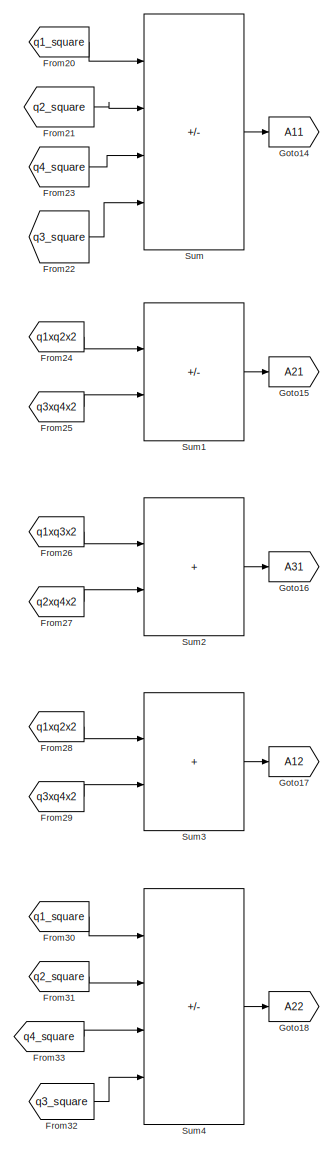
[diagram: Kynematics/From Quat to DCM - part 1/4, top center region]
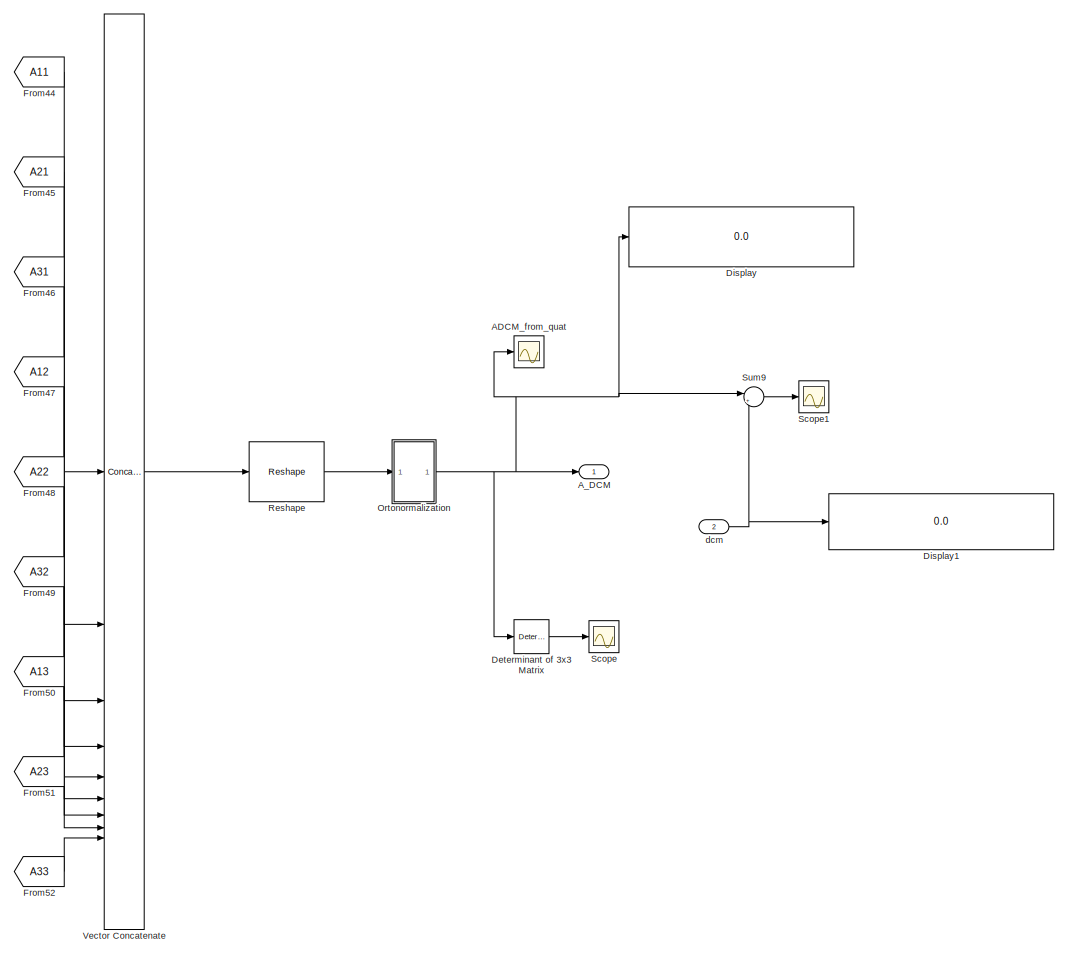
[diagram: Kynematics/From Quat to DCM - part 2/4, middle right region]
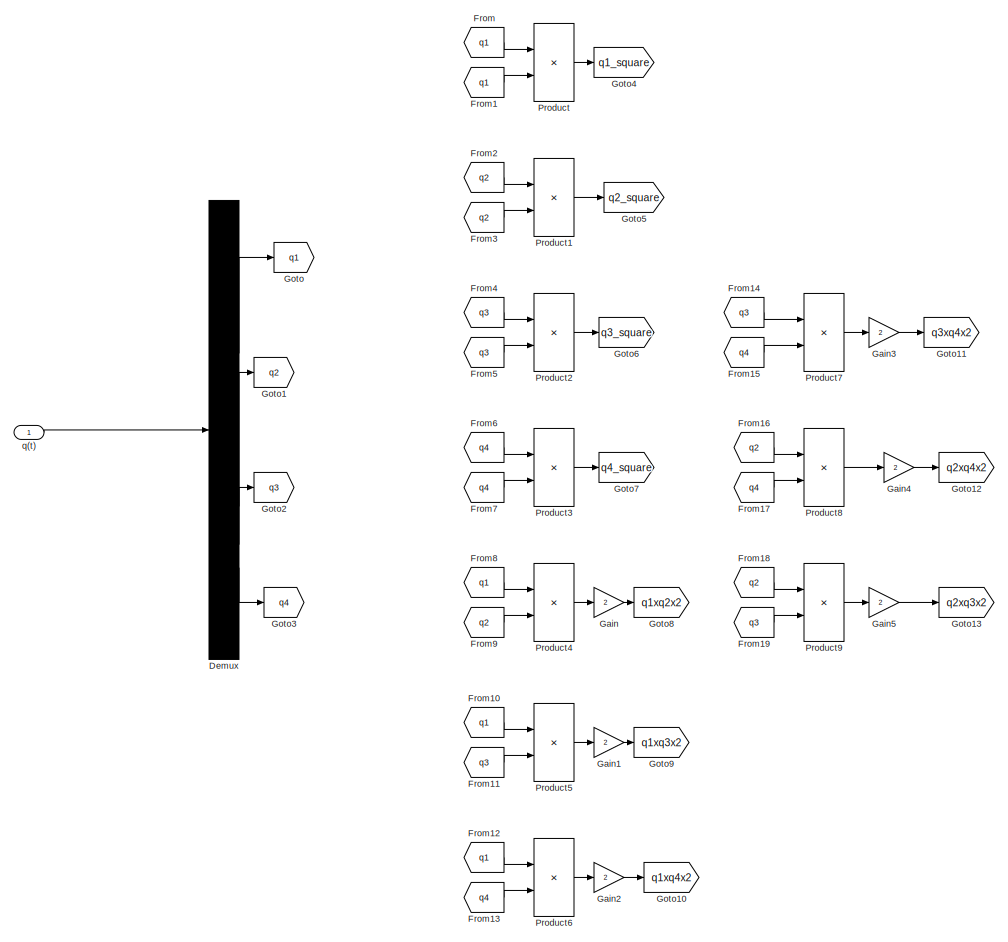
[diagram: Kynematics/From Quat to DCM - part 3/4, middle left region]
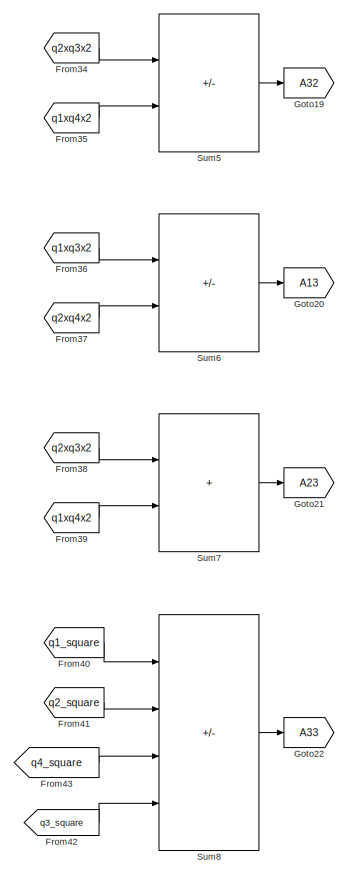
[diagram: Kynematics/From Quat to DCM - part 4/4, bottom center region]
BLOCK [SubSystem] Kynematics/From Quat to DCM
BLOCK [Scope] Kynematics/From Quat to DCM/ADCM_from_quat
  Floating = off
  NumInputPorts = 1
  ScopeSpecificationString = Simulink.scopes.TimeScopeBlockCfg('CurrentConfiguration', extmgr.ConfigurationSet(extmgr.Configuration('Core','General UI',true),extmgr.Configuration('Core','Source UI',true),extmgr.Configuration('Sources','WiredSimulink',true,'DataLoggingVariableName','ScopeData2'),extmgr.Configuration('Visuals','Time Domain',true,'SerializedDisplays',{struct('MinYLimReal','-193.17355','MaxYLimReal','219.95443','...<+2783ch>
BLOCK [Outport] Kynematics/From Quat to DCM/A_DCM
BLOCK [Demux] Kynematics/From Quat to DCM/Demux
BLOCK [Reference] Kynematics/From Quat to DCM/Determinant of 3x3 Matrix  REF=sharedutil/Determinant of
3x3 Matrix
  SourceBlock = sharedutil/Determinant of\n3x3 Matrix
  SourceType = Determinant of 3x3 Matrix
BLOCK [Display] Kynematics/From Quat to DCM/Display
  Decimation = 1
BLOCK [Display] Kynematics/From Quat to DCM/Display1
  Decimation = 1
BLOCK [From] Kynematics/From Quat to DCM/From
  GotoTag = q1
BLOCK [From] Kynematics/From Quat to DCM/From1
  GotoTag = q1
BLOCK [From] Kynematics/From Quat to DCM/From10
  GotoTag = q1
BLOCK [From] Kynematics/From Quat to DCM/From11
  GotoTag = q3
BLOCK [From] Kynematics/From Quat to DCM/From12
  GotoTag = q1
BLOCK [From] Kynematics/From Quat to DCM/From13
  GotoTag = q4
BLOCK [From] Kynematics/From Quat to DCM/From14
  GotoTag = q3
BLOCK [From] Kynematics/From Quat to DCM/From15
  GotoTag = q4
BLOCK [From] Kynematics/From Quat to DCM/From16
  GotoTag = q2
BLOCK [From] Kynematics/From Quat to DCM/From17
  GotoTag = q4
BLOCK [From] Kynematics/From Quat to DCM/From18
  GotoTag = q2
BLOCK [From] Kynematics/From Quat to DCM/From19
  GotoTag = q3
BLOCK [From] Kynematics/From Quat to DCM/From2
  GotoTag = q2
BLOCK [From] Kynematics/From Quat to DCM/From20
  GotoTag = q1_square
BLOCK [From] Kynematics/From Quat to DCM/From21
  GotoTag = q2_square
BLOCK [From] Kynematics/From Quat to DCM/From22
  GotoTag = q3_square
BLOCK [From] Kynematics/From Quat to DCM/From23
  GotoTag = q4_square
BLOCK [From] Kynematics/From Quat to DCM/From24
  GotoTag = q1xq2x2
BLOCK [From] Kynematics/From Quat to DCM/From25
  GotoTag = q3xq4x2
BLOCK [From] Kynematics/From Quat to DCM/From26
  GotoTag = q1xq3x2
BLOCK [From] Kynematics/From Quat to DCM/From27
  GotoTag = q2xq4x2
BLOCK [From] Kynematics/From Quat to DCM/From28
  GotoTag = q1xq2x2
BLOCK [From] Kynematics/From Quat to DCM/From29
  GotoTag = q3xq4x2
BLOCK [From] Kynematics/From Quat to DCM/From3
  GotoTag = q2
BLOCK [From] Kynematics/From Quat to DCM/From30
  GotoTag = q1_square
BLOCK [From] Kynematics/From Quat to DCM/From31
  GotoTag = q2_square
BLOCK [From] Kynematics/From Quat to DCM/From32
  GotoTag = q3_square
BLOCK [From] Kynematics/From Quat to DCM/From33
  GotoTag = q4_square
BLOCK [From] Kynematics/From Quat to DCM/From34
  GotoTag = q2xq3x2
BLOCK [From] Kynematics/From Quat to DCM/From35
  GotoTag = q1xq4x2
BLOCK [From] Kynematics/From Quat to DCM/From36
  GotoTag = q1xq3x2
BLOCK [From] Kynematics/From Quat to DCM/From37
  GotoTag = q2xq4x2
BLOCK [From] Kynematics/From Quat to DCM/From38
  GotoTag = q2xq3x2
BLOCK [From] Kynematics/From Quat to DCM/From39
  GotoTag = q1xq4x2
BLOCK [From] Kynematics/From Quat to DCM/From4
  GotoTag = q3
BLOCK [From] Kynematics/From Quat to DCM/From40
  GotoTag = q1_square
BLOCK [From] Kynematics/From Quat to DCM/From41
  GotoTag = q2_square
BLOCK [From] Kynematics/From Quat to DCM/From42
  GotoTag = q3_square
BLOCK [From] Kynematics/From Quat to DCM/From43
  GotoTag = q4_square
BLOCK [From] Kynematics/From Quat to DCM/From44
  GotoTag = A11
BLOCK [From] Kynematics/From Quat to DCM/From45
  GotoTag = A21
BLOCK [From] Kynematics/From Quat to DCM/From46
  GotoTag = A31
BLOCK [From] Kynematics/From Quat to DCM/From47
  GotoTag = A12
BLOCK [From] Kynematics/From Quat to DCM/From48
  GotoTag = A22
BLOCK [From] Kynematics/From Quat to DCM/From49
  GotoTag = A32
BLOCK [From] Kynematics/From Quat to DCM/From5
  GotoTag = q3
BLOCK [From] Kynematics/From Quat to DCM/From50
  GotoTag = A13
BLOCK [From] Kynematics/From Quat to DCM/From51
  GotoTag = A23
BLOCK [From] Kynematics/From Quat to DCM/From52
  GotoTag = A33
BLOCK [From] Kynematics/From Quat to DCM/From6
  GotoTag = q4
BLOCK [From] Kynematics/From Quat to DCM/From7
  GotoTag = q4
BLOCK [From] Kynematics/From Quat to DCM/From8
  GotoTag = q1
BLOCK [From] Kynematics/From Quat to DCM/From9
  GotoTag = q2
BLOCK [Gain] Kynematics/From Quat to DCM/Gain
  Gain = 2
BLOCK [Gain] Kynematics/From Quat to DCM/Gain1
  Gain = 2
BLOCK [Gain] Kynematics/From Quat to DCM/Gain2
  Gain = 2
BLOCK [Gain] Kynematics/From Quat to DCM/Gain3
  Gain = 2
BLOCK [Gain] Kynematics/From Quat to DCM/Gain4
  Gain = 2
BLOCK [Gain] Kynematics/From Quat to DCM/Gain5
  Gain = 2
BLOCK [Goto] Kynematics/From Quat to DCM/Goto
  GotoTag = q1
  IconDisplay = Signal name
BLOCK [Goto] Kynematics/From Quat to DCM/Goto1
  GotoTag = q2
BLOCK [Goto] Kynematics/From Quat to DCM/Goto10
  GotoTag = q1xq4x2
BLOCK [Goto] Kynematics/From Quat to DCM/Goto11
  GotoTag = q3xq4x2
BLOCK [Goto] Kynematics/From Quat to DCM/Goto12
  GotoTag = q2xq4x2
BLOCK [Goto] Kynematics/From Quat to DCM/Goto13
  GotoTag = q2xq3x2
BLOCK [Goto] Kynematics/From Quat to DCM/Goto14
  GotoTag = A11
BLOCK [Goto] Kynematics/From Quat to DCM/Goto15
  GotoTag = A21
BLOCK [Goto] Kynematics/From Quat to DCM/Goto16
  GotoTag = A31
BLOCK [Goto] Kynematics/From Quat to DCM/Goto17
  GotoTag = A12
BLOCK [Goto] Kynematics/From Quat to DCM/Goto18
  GotoTag = A22
BLOCK [Goto] Kynematics/From Quat to DCM/Goto19
  GotoTag = A32
BLOCK [Goto] Kynematics/From Quat to DCM/Goto2
  GotoTag = q3
BLOCK [Goto] Kynematics/From Quat to DCM/Goto20
  GotoTag = A13
BLOCK [Goto] Kynematics/From Quat to DCM/Goto21
  GotoTag = A23
BLOCK [Goto] Kynematics/From Quat to DCM/Goto22
  GotoTag = A33
BLOCK [Goto] Kynematics/From Quat to DCM/Goto3
  GotoTag = q4
BLOCK [Goto] Kynematics/From Quat to DCM/Goto4
  GotoTag = q1_square
  IconDisplay = Signal name
BLOCK [Goto] Kynematics/From Quat to DCM/Goto5
  GotoTag = q2_square
BLOCK [Goto] Kynematics/From Quat to DCM/Goto6
  GotoTag = q3_square
BLOCK [Goto] Kynematics/From Quat to DCM/Goto7
  GotoTag = q4_square
BLOCK [Goto] Kynematics/From Quat to DCM/Goto8
  GotoTag = q1xq2x2
BLOCK [Goto] Kynematics/From Quat to DCM/Goto9
  GotoTag = q1xq3x2
BLOCK [SubSystem] Kynematics/From Quat to DCM/Ortonormalization
  NameLocation = right
BLOCK [Gain] Kynematics/From Quat to DCM/Ortonormalization/Gain6
  Gain = 3/2
  NameLocation = left
BLOCK [Gain] Kynematics/From Quat to DCM/Ortonormalization/Gain7
  Gain = 1/2
  NameLocation = left
BLOCK [Inport] Kynematics/From Quat to DCM/Ortonormalization/In1
BLOCK [Product] Kynematics/From Quat to DCM/Ortonormalization/Product5
  Inputs = 3
  Multiplication = Matrix(*)
  NameLocation = left
BLOCK [Sum] Kynematics/From Quat to DCM/Ortonormalization/Sum2
  Inputs = |+-
  NameLocation = left
BLOCK [Math] Kynematics/From Quat to DCM/Ortonormalization/Transpose
  NameLocation = left
  Operator = transpose
  SignedPower = on
BLOCK [Outport] Kynematics/From Quat to DCM/Ortonormalization/dcm
BLOCK [Product] Kynematics/From Quat to DCM/Product
BLOCK [Product] Kynematics/From Quat to DCM/Product1
BLOCK [Product] Kynematics/From Quat to DCM/Product2
BLOCK [Product] Kynematics/From Quat to DCM/Product3
BLOCK [Product] Kynematics/From Quat to DCM/Product4
BLOCK [Product] Kynematics/From Quat to DCM/Product5
BLOCK [Product] Kynematics/From Quat to DCM/Product6
BLOCK [Product] Kynematics/From Quat to DCM/Product7
BLOCK [Product] Kynematics/From Quat to DCM/Product8
BLOCK [Product] Kynematics/From Quat to DCM/Product9
BLOCK [Reshape] Kynematics/From Quat to DCM/Reshape
  OutputDimensionality = Customize
  OutputDimensions = [3,3]
BLOCK [Scope] Kynematics/From Quat to DCM/Scope
  Floating = off
  NumInputPorts = 1
  ScopeSpecificationString = Simulink.scopes.TimeScopeBlockCfg('CurrentConfiguration', extmgr.ConfigurationSet(extmgr.Configuration('Core','General UI',true),extmgr.Configuration('Core','Source UI',true),extmgr.Configuration('Sources','WiredSimulink',true,'DataLoggingVariableName','ScopeData1'),extmgr.Configuration('Visuals','Time Domain',true,'SerializedDisplays',{struct('MinYLimReal','0.9999999999999993','MaxYLimReal','1.00...<+1622ch>
BLOCK [Scope] Kynematics/From Quat to DCM/Scope1
  Floating = off
  NumInputPorts = 1
  ScopeSpecificationString = Simulink.scopes.TimeScopeBlockCfg('CurrentConfiguration', extmgr.ConfigurationSet(extmgr.Configuration('Core','General UI',true),extmgr.Configuration('Core','Source UI',true),extmgr.Configuration('Sources','WiredSimulink',true,'DataLoggingVariableName','ScopeData1'),extmgr.Configuration('Visuals','Time Domain',true,'SerializedDisplays',{struct('MinYLimReal','-0.00016','MaxYLimReal','0.00016','YLab...<+1485ch>
BLOCK [Sum] Kynematics/From Quat to DCM/Sum
  IconShape = rectangular
  Inputs = +-+-
BLOCK [Sum] Kynematics/From Quat to DCM/Sum1
  IconShape = rectangular
  Inputs = +-
BLOCK [Sum] Kynematics/From Quat to DCM/Sum2
  IconShape = rectangular
BLOCK [Sum] Kynematics/From Quat to DCM/Sum3
  IconShape = rectangular
BLOCK [Sum] Kynematics/From Quat to DCM/Sum4
  IconShape = rectangular
  Inputs = -++-
BLOCK [Sum] Kynematics/From Quat to DCM/Sum5
  IconShape = rectangular
  Inputs = +-
BLOCK [Sum] Kynematics/From Quat to DCM/Sum6
  IconShape = rectangular
  Inputs = +-
BLOCK [Sum] Kynematics/From Quat to DCM/Sum7
  IconShape = rectangular
BLOCK [Sum] Kynematics/From Quat to DCM/Sum8
  IconShape = rectangular
  Inputs = --++
BLOCK [Sum] Kynematics/From Quat to DCM/Sum9
  Inputs = |+-
BLOCK [Concatenate] Kynematics/From Quat to DCM/Vector Concatenate
  NumInputs = 9
BLOCK [Inport] Kynematics/From Quat to DCM/dcm
  Port = 2
BLOCK [Inport] Kynematics/From Quat to DCM/q(t)
BLOCK [SubSystem] Kynematics/Quaternions
BLOCK [Demux] Kynematics/Quaternions/Demux
  Outputs = 3
BLOCK [Reference] Kynematics/Quaternions/Determinant of 3x3 Matrix  REF=sharedutil/Determinant of
3x3 Matrix
  NameLocation = left
  SourceBlock = sharedutil/Determinant of\n3x3 Matrix
  SourceType = Determinant of 3x3 Matrix
BLOCK [Gain] Kynematics/Quaternions/Gain
  Gain = -1
BLOCK [Gain] Kynematics/Quaternions/Gain1
  Gain = -1
BLOCK [Gain] Kynematics/Quaternions/Gain2
  Gain = -1
BLOCK [Gain] Kynematics/Quaternions/Gain3
  Gain = 0.5
BLOCK [Goto] Kynematics/Quaternions/Goto
  GotoTag = q
  TagVisibility = global
BLOCK [Ground] Kynematics/Quaternions/Ground
BLOCK [Ground] Kynematics/Quaternions/Ground1
BLOCK [Ground] Kynematics/Quaternions/Ground2
BLOCK [Ground] Kynematics/Quaternions/Ground3
BLOCK [Integrator] Kynematics/Quaternions/Integrator
  InitialCondition = q_r
  NameLocation = top
BLOCK [Product] Kynematics/Quaternions/MatrixMultiply
  Multiplication = Matrix(*)
BLOCK [Reference] Kynematics/Quaternions/Quaternions to Direction Cosine Matrix  REF=sharedtransform/Quaternions to 
Direction Cosine Matrix
  NameLocation = top
  SourceBlock = sharedtransform/Quaternions to \nDirection Cosine Matrix
  SourceType = Quaternion2DCM
BLOCK [Reshape] Kynematics/Quaternions/Reshape
  OutputDimensionality = Customize
  OutputDimensions = [4,4]
BLOCK [Scope] Kynematics/Quaternions/Scope
  Floating = off
  NameLocation = top
  NumInputPorts = 1
  ScopeSpecificationString = Simulink.scopes.TimeScopeBlockCfg('CurrentConfiguration', extmgr.ConfigurationSet(extmgr.Configuration('Core','General UI',true),extmgr.Configuration('Core','Source UI',true),extmgr.Configuration('Sources','WiredSimulink',true,'DataLoggingVariableName','ScopeData4'),extmgr.Configuration('Visuals','Time Domain',true,'SerializedDisplays',{struct('MinYLimReal','-1.2481','MaxYLimReal','1.24917','YLabe...<+1445ch>
BLOCK [Scope] Kynematics/Quaternions/Scope1
  Floating = off
  NameLocation = top
  NumInputPorts = 1
  ScopeSpecificationString = Simulink.scopes.TimeScopeBlockCfg('CurrentConfiguration', extmgr.ConfigurationSet(extmgr.Configuration('Core','General UI',true),extmgr.Configuration('Core','Source UI',true),extmgr.Configuration('Sources','WiredSimulink',true,'DataLoggingVariableName','ScopeData6'),extmgr.Configuration('Visuals','Time Domain',true,'SerializedDisplays',{struct('MinYLimReal','-1.25','MaxYLimReal','1.25','YLabelReal...<+1763ch>
BLOCK [Scope] Kynematics/Quaternions/Scope2
  Floating = off
  NameLocation = left
  NumInputPorts = 1
  ScopeSpecificationString = Simulink.scopes.TimeScopeBlockCfg('CurrentConfiguration', extmgr.ConfigurationSet(extmgr.Configuration('Core','General UI',true),extmgr.Configuration('Core','Source UI',true),extmgr.Configuration('Sources','WiredSimulink',true,'DataLoggingVariableName','ScopeData7'),extmgr.Configuration('Visuals','Time Domain',true,'SerializedDisplays',{struct('MinYLimReal','0.9999999999999987','MaxYLimReal','1.00...<+1495ch>
BLOCK [ToWorkspace] Kynematics/Quaternions/To Workspace
  FixptAsFi = on
  MaxDataPoints = inf
  NameLocation = left
  SampleTime = -1
  SaveFormat = Timeseries
  VariableName = quaternions
BLOCK [Concatenate] Kynematics/Quaternions/Vector Concatenate
  NumInputs = 16
BLOCK [Outport] Kynematics/Quaternions/q(t)
BLOCK [Inport] Kynematics/Quaternions/wB
BLOCK [Inport] Kynematics/wB
BLOCK [ManualSwitch] Manual Switch
  CurrentSetting = 0
BLOCK [ManualSwitch] Manual Switch1
  CurrentSetting = 0
BLOCK [SubSystem] Sensor
BLOCK [Demux] Sensor/Demux
  Outputs = 3
BLOCK [Demux] Sensor/Demux1
  Outputs = 3
BLOCK [Outport] Sensor/Mm_B
BLOCK [Mux] Sensor/Mux
  DisplayOption = bar
  Inputs = 3
BLOCK [Mux] Sensor/Mux1
  DisplayOption = bar
  Inputs = 3
BLOCK [Reference] Sensor/Normalize Vector  REF=vrlib/Utilities/Normalize Vector
  SourceBlock = vrlib/Utilities/Normalize Vector
  SourceType = Normalize Vector
BLOCK [Reference] Sensor/Normalize Vector1  REF=vrlib/Utilities/Normalize Vector
  SourceBlock = vrlib/Utilities/Normalize Vector
  SourceType = Normalize Vector
BLOCK [Inport] Sensor/R_b
BLOCK [RandomNumber] Sensor/Random Number1
  SampleTime = 0.1
  Seed = 1
  Variance = (1/3*accuracy_mag).^2
BLOCK [RandomNumber] Sensor/Random Number10
  SampleTime = 0.1
  Seed = 2
  Variance = ortog
BLOCK [RandomNumber] Sensor/Random Number11
  SampleTime = 0.1
  Seed = 3
  Variance = ortog
BLOCK [RandomNumber] Sensor/Random Number2
  SampleTime = 0.1
  Seed = 2
  Variance = (1/3*accuracy_mag).^2
BLOCK [RandomNumber] Sensor/Random Number3
  SampleTime = 0.1
  Seed = 3
  Variance = (1/3*accuracy_mag).^2
BLOCK [RandomNumber] Sensor/Random Number4
  SampleTime = 0.1
  Seed = 4
  Variance = (1/3*accuracy_earth).^2
BLOCK [RandomNumber] Sensor/Random Number7
  SampleTime = 0.1
  Seed = 5
  Variance = (1/3*accuracy_earth).^2
BLOCK [RandomNumber] Sensor/Random Number8
  SampleTime = 0.1
  Seed = 6
  Variance = (1/3*accuracy_earth).^2
BLOCK [RandomNumber] Sensor/Random Number9
  SampleTime = 0.1
  Seed = 1
  Variance = ortog
BLOCK [Reshape] Sensor/Reshape
  OutputDimensionality = Customize
  OutputDimensions = [3,1]
BLOCK [Reshape] Sensor/Reshape1
  OutputDimensionality = Customize
  OutputDimensions = [3,1]
BLOCK [Outport] Sensor/Rm_b
  Port = 2
BLOCK [Scope] Sensor/Scope3
  Floating = off
  NumInputPorts = 2
  ScopeSpecificationString = Simulink.scopes.TimeScopeBlockCfg('CurrentConfiguration', extmgr.ConfigurationSet(extmgr.Configuration('Core','General UI',true),extmgr.Configuration('Core','Source UI',true),extmgr.Configuration('Sources','WiredSimulink',true,'DataLoggingVariableName','ScopeData6'),extmgr.Configuration('Visuals','Time Domain',true,'SerializedDisplays',{struct('MinYLimReal','-1.24693','MaxYLimReal','1.24965','YLab...<+2101ch>
BLOCK [Scope] Sensor/Scope4
  Floating = off
  NumInputPorts = 2
  ScopeSpecificationString = Simulink.scopes.TimeScopeBlockCfg('CurrentConfiguration', extmgr.ConfigurationSet(extmgr.Configuration('Core','General UI',true),extmgr.Configuration('Core','Source UI',true),extmgr.Configuration('Sources','WiredSimulink',true,'DataLoggingVariableName','ScopeData8'),extmgr.Configuration('Visuals','Time Domain',true,'SerializedDisplays',{struct('MinYLimReal','-1.39486','MaxYLimReal','1.39928','YLab...<+2118ch>
BLOCK [Sum] Sensor/Sum1
  IconShape = rectangular
  Inputs = +++
BLOCK [Sum] Sensor/Sum2
  IconShape = rectangular
  Inputs = +++
BLOCK [Sum] Sensor/Sum3
  IconShape = rectangular
  Inputs = +++
BLOCK [Sum] Sensor/Sum4
  Inputs = ++|
BLOCK [Sum] Sensor/Sum5
  Inputs = |++
BLOCK [Sum] Sensor/Sum6
  Inputs = |++
BLOCK [ToWorkspace] Sensor/To Workspace
  FixptAsFi = on
  MaxDataPoints = inf
  SampleTime = -1
  SaveFormat = Structure
  VariableName = M_meas
BLOCK [Inport] Sensor/b_B
  Port = 2
ANNOTATION Environment: Gravity gradient
ANNOTATION Environment: Magnetic Torque
ANNOTATION Environment/Air Drag : Relative velocity of the Spacecraft
NET Actuators/Demux:1 -> Actuators/If Action Subsystem1:1, Actuators/If Action Subsystem:1, Actuators/If:1
NET Actuators/Demux:2 -> Actuators/If Action Subsystem2:1, Actuators/If Action Subsystem3:1, Actuators/If1:1
NET Actuators/Demux:3 -> Actuators/If Action Subsystem4:1, Actuators/If Action Subsystem5:1, Actuators/If2:1
NET Actuators/If Action Subsystem/Abs:1 -> Actuators/If Action Subsystem/Divide:2, Actuators/If Action Subsystem/Product:1
LINE Actuators/If Action Subsystem/Constant:1 -> Actuators/If Action Subsystem/Abs:1
LINE Actuators/If Action Subsystem/Divide:1 -> Actuators/If Action Subsystem/Saturation:1
LINE Actuators/If Action Subsystem/Mx:1 -> Actuators/If Action Subsystem/Divide:1
LINE Actuators/If Action Subsystem/Product:1 -> Actuators/If Action Subsystem/Out1:1
LINE Actuators/If Action Subsystem/Saturation:1 -> Actuators/If Action Subsystem/Product:2
LINE Actuators/If Action Subsystem1/-Mx:1 -> Actuators/If Action Subsystem1/Gain:1
NET Actuators/If Action Subsystem1/Abs:1 -> Actuators/If Action Subsystem1/Divide:2, Actuators/If Action Subsystem1/Product:1
LINE Actuators/If Action Subsystem1/Constant:1 -> Actuators/If Action Subsystem1/Abs:1
NET Actuators/If Action Subsystem1/Divide:1 -> Actuators/If Action Subsystem1/Saturation:1, Actuators/If Action Subsystem1/Scope:1
LINE Actuators/If Action Subsystem1/Gain1:1 -> Actuators/If Action Subsystem1/Out1:1
LINE Actuators/If Action Subsystem1/Gain:1 -> Actuators/If Action Subsystem1/Divide:1
LINE Actuators/If Action Subsystem1/Product:1 -> Actuators/If Action Subsystem1/Gain1:1
NET Actuators/If Action Subsystem1/Saturation:1 -> Actuators/If Action Subsystem1/Product:2, Actuators/If Action Subsystem1/Scope:2
LINE Actuators/If Action Subsystem1:1 -> Actuators/Merge2:2
NET Actuators/If Action Subsystem2/Abs:1 -> Actuators/If Action Subsystem2/Divide:2, Actuators/If Action Subsystem2/Product:1
LINE Actuators/If Action Subsystem2/Constant:1 -> Actuators/If Action Subsystem2/Abs:1
LINE Actuators/If Action Subsystem2/Divide:1 -> Actuators/If Action Subsystem2/Saturation:1
LINE Actuators/If Action Subsystem2/My:1 -> Actuators/If Action Subsystem2/Divide:1
LINE Actuators/If Action Subsystem2/Product:1 -> Actuators/If Action Subsystem2/Out1:1
LINE Actuators/If Action Subsystem2/Saturation:1 -> Actuators/If Action Subsystem2/Product:2
LINE Actuators/If Action Subsystem2:1 -> Actuators/Merge1:1
LINE Actuators/If Action Subsystem3/-My:1 -> Actuators/If Action Subsystem3/Gain:1
NET Actuators/If Action Subsystem3/Abs:1 -> Actuators/If Action Subsystem3/Divide:2, Actuators/If Action Subsystem3/Product:1
LINE Actuators/If Action Subsystem3/Constant:1 -> Actuators/If Action Subsystem3/Abs:1
LINE Actuators/If Action Subsystem3/Divide:1 -> Actuators/If Action Subsystem3/Saturation:1
LINE Actuators/If Action Subsystem3/Gain1:1 -> Actuators/If Action Subsystem3/Out1:1
LINE Actuators/If Action Subsystem3/Gain:1 -> Actuators/If Action Subsystem3/Divide:1
LINE Actuators/If Action Subsystem3/Product:1 -> Actuators/If Action Subsystem3/Gain1:1
LINE Actuators/If Action Subsystem3/Saturation:1 -> Actuators/If Action Subsystem3/Product:2
LINE Actuators/If Action Subsystem3:1 -> Actuators/Merge1:2
NET Actuators/If Action Subsystem4/Abs:1 -> Actuators/If Action Subsystem4/Divide:2, Actuators/If Action Subsystem4/Product:1
LINE Actuators/If Action Subsystem4/Constant:1 -> Actuators/If Action Subsystem4/Abs:1
LINE Actuators/If Action Subsystem4/Divide:1 -> Actuators/If Action Subsystem4/Saturation:1
LINE Actuators/If Action Subsystem4/Mz:1 -> Actuators/If Action Subsystem4/Divide:1
LINE Actuators/If Action Subsystem4/Product:1 -> Actuators/If Action Subsystem4/Out1:1
LINE Actuators/If Action Subsystem4/Saturation:1 -> Actuators/If Action Subsystem4/Product:2
LINE Actuators/If Action Subsystem4:1 -> Actuators/Merge:1
LINE Actuators/If Action Subsystem5/-Mz:1 -> Actuators/If Action Subsystem5/Gain:1
NET Actuators/If Action Subsystem5/Abs:1 -> Actuators/If Action Subsystem5/Divide:2, Actuators/If Action Subsystem5/Product:1
LINE Actuators/If Action Subsystem5/Constant:1 -> Actuators/If Action Subsystem5/Abs:1
LINE Actuators/If Action Subsystem5/Divide:1 -> Actuators/If Action Subsystem5/Saturation:1
LINE Actuators/If Action Subsystem5/Gain1:1 -> Actuators/If Action Subsystem5/Out1:1
LINE Actuators/If Action Subsystem5/Gain:1 -> Actuators/If Action Subsystem5/Divide:1
LINE Actuators/If Action Subsystem5/Product:1 -> Actuators/If Action Subsystem5/Gain1:1
LINE Actuators/If Action Subsystem5/Saturation:1 -> Actuators/If Action Subsystem5/Product:2
LINE Actuators/If Action Subsystem5:1 -> Actuators/Merge:2
LINE Actuators/If Action Subsystem:1 -> Actuators/Merge2:1
LINE Actuators/If1:1 -> Actuators/If Action Subsystem2:ifaction
LINE Actuators/If1:2 -> Actuators/If Action Subsystem3:ifaction
LINE Actuators/If2:1 -> Actuators/If Action Subsystem4:ifaction
LINE Actuators/If2:2 -> Actuators/If Action Subsystem5:ifaction
LINE Actuators/If:1 -> Actuators/If Action Subsystem:ifaction
LINE Actuators/If:2 -> Actuators/If Action Subsystem1:ifaction
NET Actuators/Merge1:1 -> Actuators/Mux:2, Actuators/Scope:2
NET Actuators/Merge2:1 -> Actuators/Mux:1, Actuators/Scope:1
NET Actuators/Merge:1 -> Actuators/Mux:3, Actuators/Scope:3
LINE Actuators/Mux:1 -> Actuators/Reshape:1
NET Actuators/Reshape:1 -> Actuators/Scope1:1, Actuators/To Workspace:1, Actuators/u_real:1
LINE Actuators/u:1 -> Actuators/Demux:1
LINE Actuators:1 -> Dynamics:6
LINE Attitude determination/A_DCM:1 -> Attitude determination/Triad Method:5
LINE Attitude determination/Mm_B:1 -> Attitude determination/Triad Method:3
LINE Attitude determination/R_n:1 -> Attitude determination/Triad Method:2
LINE Attitude determination/Rm_b:1 -> Attitude determination/Triad Method:1
LINE Attitude determination/Triad Method/A_DCM:1 -> Attitude determination/Triad Method/Transpose1:1
LINE Attitude determination/Triad Method/A_LN:1 -> Attitude determination/Triad Method/MatrixMultiply2:2
LINE Attitude determination/Triad Method/Cross Product1:1 -> Attitude determination/Triad Method/Goto:1
LINE Attitude determination/Triad Method/Cross Product2:1 -> Attitude determination/Triad Method/Normalize Vector5:1
LINE Attitude determination/Triad Method/Cross Product3:1 -> Attitude determination/Triad Method/Goto3:1
LINE Attitude determination/Triad Method/Cross Product:1 -> Attitude determination/Triad Method/Normalize Vector2:1
LINE Attitude determination/Triad Method/Error/A_err:1 -> Attitude determination/Triad Method/Error/Extract Diagonal3:1
LINE Attitude determination/Triad Method/Error/Acos2:1 -> Attitude determination/Triad Method/Error/Radians to Degrees2:1
LINE Attitude determination/Triad Method/Error/Constant6:1 -> Attitude determination/Triad Method/Error/Sum7:2
LINE Attitude determination/Triad Method/Error/Extract Diagonal3:1 -> Attitude determination/Triad Method/Error/Sum of Elements3:1
LINE Attitude determination/Triad Method/Error/Gain2:1 -> Attitude determination/Triad Method/Error/Acos2:1
LINE Attitude determination/Triad Method/Error/Radians to Degrees2:1 -> Attitude determination/Triad Method/Error/error:1
LINE Attitude determination/Triad Method/Error/Sum of Elements3:1 -> Attitude determination/Triad Method/Error/Sum7:1
LINE Attitude determination/Triad Method/Error/Sum7:1 -> Attitude determination/Triad Method/Error/Gain2:1
LINE Attitude determination/Triad Method/Error1/Acos2:1 -> Attitude determination/Triad Method/Error1/Radians to Degrees2:1
LINE Attitude determination/Triad Method/Error1/Constant6:1 -> Attitude determination/Triad Method/Error1/Sum7:2
LINE Attitude determination/Triad Method/Error1/Extract Diagonal3:1 -> Attitude determination/Triad Method/Error1/Sum of Elements3:1
LINE Attitude determination/Triad Method/Error1/Gain2:1 -> Attitude determination/Triad Method/Error1/Acos2:1
LINE Attitude determination/Triad Method/Error1/Id:1 -> Attitude determination/Triad Method/Error1/Extract Diagonal3:1
LINE Attitude determination/Triad Method/Error1/Radians to Degrees2:1 -> Attitude determination/Triad Method/Error1/error:1
LINE Attitude determination/Triad Method/Error1/Sum of Elements3:1 -> Attitude determination/Triad Method/Error1/Sum7:1
LINE Attitude determination/Triad Method/Error1/Sum7:1 -> Attitude determination/Triad Method/Error1/Gain2:1
NET Attitude determination/Triad Method/Error1:1 -> Attitude determination/Triad Method/Scope2:1, Attitude determination/Triad Method/To Workspace:1
NET Attitude determination/Triad Method/Error:1 -> Attitude determination/Triad Method/Scope10:1, Attitude determination/Triad Method/To Workspace1:1
LINE Attitude determination/Triad Method/From1:1 -> Attitude determination/Triad Method/Matrix Concatenate:2
LINE Attitude determination/Triad Method/From2:1 -> Attitude determination/Triad Method/Matrix Concatenate:3
LINE Attitude determination/Triad Method/From3:1 -> Attitude determination/Triad Method/Matrix Concatenate1:1
LINE Attitude determination/Triad Method/From4:1 -> Attitude determination/Triad Method/Matrix Concatenate1:2
LINE Attitude determination/Triad Method/From5:1 -> Attitude determination/Triad Method/Matrix Concatenate1:3
LINE Attitude determination/Triad Method/From:1 -> Attitude determination/Triad Method/Matrix Concatenate:1
LINE Attitude determination/Triad Method/Matrix Concatenate1:1 -> Attitude determination/Triad Method/Transpose:1
LINE Attitude determination/Triad Method/Matrix Concatenate:1 -> Attitude determination/Triad Method/Reshape:1
NET Attitude determination/Triad Method/MatrixMultiply1:1 -> Attitude determination/Triad Method/Error1:1, Attitude determination/Triad Method/Scope1:1
NET Attitude determination/Triad Method/MatrixMultiply2:1 -> Attitude determination/Triad Method/Goto6:1, Attitude determination/Triad Method/Transpose5:1
NET Attitude determination/Triad Method/MatrixMultiply4:1 -> Attitude determination/Triad Method/Ae:1, Attitude determination/Triad Method/Error:1, Attitude determination/Triad Method/Scope9:1
NET Attitude determination/Triad Method/MatrixMultiply:1 -> Attitude determination/Triad Method/DCM_est:1, Attitude determination/Triad Method/MatrixMultiply1:1, Attitude determination/Triad Method/MatrixMultiply4:1, Attitude determination/Triad Method/Scope:1
LINE Attitude determination/Triad Method/Mm_B:1 -> Attitude determination/Triad Method/Normalize Vector1:1
LINE Attitude determination/Triad Method/Normalize Vector1:1 -> Attitude determination/Triad Method/Cross Product:2
NET Attitude determination/Triad Method/Normalize Vector2:1 -> Attitude determination/Triad Method/Cross Product1:2, Attitude determination/Triad Method/Goto2:1
LINE Attitude determination/Triad Method/Normalize Vector3:1 -> Attitude determination/Triad Method/Cross Product2:2
NET Attitude determination/Triad Method/Normalize Vector4:1 -> Attitude determination/Triad Method/Cross Product2:1, Attitude determination/Triad Method/Cross Product3:1, Attitude determination/Triad Method/Goto4:1
NET Attitude determination/Triad Method/Normalize Vector5:1 -> Attitude determination/Triad Method/Cross Product3:2, Attitude determination/Triad Method/Goto5:1
NET Attitude determination/Triad Method/Normalize Vector:1 -> Attitude determination/Triad Method/Cross Product1:1, Attitude determination/Triad Method/Cross Product:1, Attitude determination/Triad Method/Goto1:1
LINE Attitude determination/Triad Method/R_n:1 -> Attitude determination/Triad Method/Normalize Vector4:1
LINE Attitude determination/Triad Method/Reshape:1 -> Attitude determination/Triad Method/MatrixMultiply:1
LINE Attitude determination/Triad Method/Rm_b:1 -> Attitude determination/Triad Method/Normalize Vector:1
LINE Attitude determination/Triad Method/Target in B//L:1 -> Attitude determination/Triad Method/MatrixMultiply2:1
LINE Attitude determination/Triad Method/Transpose1:1 -> Attitude determination/Triad Method/MatrixMultiply1:2
LINE Attitude determination/Triad Method/Transpose5:1 -> Attitude determination/Triad Method/MatrixMultiply4:2
LINE Attitude determination/Triad Method/Transpose:1 -> Attitude determination/Triad Method/MatrixMultiply:2
LINE Attitude determination/Triad Method/m_N:1 -> Attitude determination/Triad Method/Normalize Vector3:1
NET Attitude determination/Triad Method:1 -> Attitude determination/DCM_est:1, Attitude determination/w_esti:1
LINE Attitude determination/Triad Method:2 -> Attitude determination/Ae:1
LINE Attitude determination/m_N:1 -> Attitude determination/Triad Method:4
LINE Attitude determination/w_esti/Constant:1 -> Attitude determination/w_esti/Discrete Varying Lowpass:2
NET Attitude determination/w_esti/DCM_est:1 -> Attitude determination/w_esti/Discrete Derivative:1, Attitude determination/w_esti/Transpose:1
LINE Attitude determination/w_esti/Discrete Derivative:1 -> Attitude determination/w_esti/MatrixMultiply:1
LINE Attitude determination/w_esti/Discrete Varying Lowpass:1 -> Attitude determination/w_esti/Manual Switch1:1
NET Attitude determination/w_esti/From:1 -> Attitude determination/w_esti/Scope2:1, Attitude determination/w_esti/Scope:2, Attitude determination/w_esti/Sum:2
LINE Attitude determination/w_esti/Gain:1 -> Attitude determination/w_esti/MATLAB Function:1
NET Attitude determination/w_esti/MATLAB Function:1 -> Attitude determination/w_esti/Discrete Varying Lowpass:1, Attitude determination/w_esti/Manual Switch1:2
NET Attitude determination/w_esti/Manual Switch1:1 -> Attitude determination/w_esti/Output:1, Attitude determination/w_esti/Scope:1, Attitude determination/w_esti/Sum:1
LINE Attitude determination/w_esti/MatrixMultiply:1 -> Attitude determination/w_esti/Gain:1
LINE Attitude determination/w_esti/Sum:1 -> Attitude determination/w_esti/Scope1:1
LINE Attitude determination/w_esti/Transpose:1 -> Attitude determination/w_esti/MatrixMultiply:2
LINE Attitude determination/w_esti:1 -> Attitude determination/w_est:1
LINE Attitude determination:1 -> Control:1
LINE Attitude determination:2 -> Control:2
LINE Attitude determination:3 -> Control:3
LINE Clock:1 -> Environment:3
NET Control/Ae:1 -> Control/Tracking:1, Control/ble:1, Control/slew:1
LINE Control/DCM_est:1 -> Control/ble:3
LINE Control/De-tumbling/Constant:1 -> Control/De-tumbling/Sum1:2
LINE Control/De-tumbling/Discrete Derivative:1 -> Control/De-tumbling/Gain1:1
LINE Control/De-tumbling/Discrete-Time Integrator:1 -> Control/De-tumbling/Gain2:1
LINE Control/De-tumbling/Gain1:1 -> Control/De-tumbling/Sum:3
LINE Control/De-tumbling/Gain2:1 -> Control/De-tumbling/Sum:1
LINE Control/De-tumbling/Gain:1 -> Control/De-tumbling/Sum1:1
LINE Control/De-tumbling/In1:1 -> Control/De-tumbling/Reshape:1
LINE Control/De-tumbling/Reshape1:1 -> Control/De-tumbling/Out1:1
NET Control/De-tumbling/Reshape:1 -> Control/De-tumbling/Discrete Derivative:1, Control/De-tumbling/Discrete-Time Integrator:1, Control/De-tumbling/Gain:1
LINE Control/De-tumbling/Sum1:1 -> Control/De-tumbling/Sum:2
NET Control/De-tumbling/Sum:1 -> Control/De-tumbling/Reshape1:1, Control/De-tumbling/Scope:1
LINE Control/De-tumbling:1 -> Control/Manual Switch1:1
LINE Control/Manual Switch1:1 -> Control/Manual Switch:2
LINE Control/Manual Switch2:1 -> Control/Manual Switch1:2
NET Control/Manual Switch:1 -> Control/Scope:1, Control/u:1
NET Control/Tracking/Ae:1 -> Control/Tracking/Selector1:1, Control/Tracking/Selector2:1, Control/Tracking/Selector:1
LINE Control/Tracking/Constant:1 -> Control/Tracking/Sum1:2
NET Control/Tracking/Discrete Derivative:1 -> Control/Tracking/Scope:1, Control/Tracking/Sum1:1
LINE Control/Tracking/Gain1:1 -> Control/Tracking/Sum:1
LINE Control/Tracking/Gain:1 -> Control/Tracking/Sum:2
NET Control/Tracking/Mux:1 -> Control/Tracking/Discrete Derivative:1, Control/Tracking/Gain:1
LINE Control/Tracking/Selector1:1 -> Control/Tracking/Mux:2
LINE Control/Tracking/Selector2:1 -> Control/Tracking/Mux:3
LINE Control/Tracking/Selector:1 -> Control/Tracking/Mux:1
LINE Control/Tracking/Sum1:1 -> Control/Tracking/Gain1:1
NET Control/Tracking/Sum:1 -> Control/Tracking/Scope1:1, Control/Tracking/u:1
LINE Control/Tracking:1 -> Control/Manual Switch2:1
NET Control/ble/Ae:1 -> Control/ble/Sum:2, Control/ble/Transpose:1
LINE Control/ble/Constant1:1 -> Control/ble/MatrixMultiply:2
LINE Control/ble/DCM_est:1 -> Control/ble/Sum3:2
LINE Control/ble/Demux:2 -> Control/ble/Vector Concatenate:3
LINE Control/ble/Demux:6 -> Control/ble/Vector Concatenate:1
LINE Control/ble/Demux:7 -> Control/ble/Vector Concatenate:2
LINE Control/ble/Extract Diagonal:1 -> Control/ble/Sum of Elements:1
LINE Control/ble/From:1 -> Control/ble/Sum3:1
LINE Control/ble/Gain1:1 -> Control/ble/Sum2:2
LINE Control/ble/Gain2:1 -> Control/ble/Sum1:1
LINE Control/ble/Gain3:1 -> Control/ble/Sum1:2
LINE Control/ble/Gain4:1 -> Control/ble/Sum2:1
LINE Control/ble/MatrixMultiply1:1 -> Control/ble/Gain4:1
LINE Control/ble/MatrixMultiply:1 -> Control/ble/MatrixMultiply1:1
NET Control/ble/Reshape1:1 -> Control/ble/Gain2:1, Control/ble/Scope:1
LINE Control/ble/Reshape2:1 -> Control/ble/Gain3:1
LINE Control/ble/Reshape:1 -> Control/ble/Demux:1
LINE Control/ble/Sum of Elements:1 -> Control/ble/Gain1:1
LINE Control/ble/Sum1:1 -> Control/ble/Scope:2
NET Control/ble/Sum2:1 -> Control/ble/Scope2:1, Control/ble/u:1
LINE Control/ble/Sum3:1 -> Control/ble/Extract Diagonal:1
LINE Control/ble/Sum:1 -> Control/ble/Reshape:1
LINE Control/ble/Transpose1:1 -> Control/ble/MatrixMultiply:1
LINE Control/ble/Transpose:1 -> Control/ble/Sum:1
LINE Control/ble/Vector Concatenate:1 -> Control/ble/Reshape1:1
NET Control/ble/w_est:1 -> Control/ble/MatrixMultiply1:2, Control/ble/Reshape2:1, Control/ble/Transpose1:1
LINE Control/ble:1 -> Control/Manual Switch:1
NET Control/slew/Ae:1 -> Control/slew/Selector1:1, Control/slew/Selector2:1, Control/slew/Selector:1
NET Control/slew/Discrete Derivative:1 -> Control/slew/Gain1:1, Control/slew/Scope:1
LINE Control/slew/Gain1:1 -> Control/slew/Sum:1
LINE Control/slew/Gain:1 -> Control/slew/Sum:2
NET Control/slew/Mux:1 -> Control/slew/Discrete Derivative:1, Control/slew/Gain:1
LINE Control/slew/Selector1:1 -> Control/slew/Mux:2
LINE Control/slew/Selector2:1 -> Control/slew/Mux:3
LINE Control/slew/Selector:1 -> Control/slew/Mux:1
NET Control/slew/Sum:1 -> Control/slew/Scope1:1, Control/slew/u:1
LINE Control/slew:1 -> Control/Manual Switch2:2
LINE Control/w_est1:1 -> Control/De-tumbling:1
LINE Control/w_est:1 -> Control/ble:2
LINE Control:1 -> Actuators:1
LINE Dynamics/A_B//L:1 -> Dynamics/Goto3:1
LINE Dynamics/Constant1:1 -> Dynamics/Manual Switch1:2
LINE Dynamics/Constant2:1 -> Dynamics/Manual Switch2:2
LINE Dynamics/Constant3:1 -> Dynamics/Manual Switch3:2
LINE Dynamics/Constant4:1 -> Dynamics/Manual Switch4:2
LINE Dynamics/Constant5:1 -> Dynamics/Product6:1
LINE Dynamics/Constant6:1 -> Dynamics/Manual Switch5:2
LINE Dynamics/Constant7:1 -> Dynamics/Product8:1
LINE Dynamics/Constant9:1 -> Dynamics/Product10:1
LINE Dynamics/Constant:1 -> Dynamics/Manual Switch:2
LINE Dynamics/Demux1:1 -> Dynamics/Goto:1
LINE Dynamics/Demux1:2 -> Dynamics/Goto1:1
LINE Dynamics/Demux1:3 -> Dynamics/Goto2:1
LINE Dynamics/Demux2:1 -> Dynamics/Goto6:1
LINE Dynamics/Demux2:2 -> Dynamics/Goto8:1
LINE Dynamics/Demux2:3 -> Dynamics/Goto9:1
LINE Dynamics/Demux3:1 -> Dynamics/Goto14:1
LINE Dynamics/Demux3:2 -> Dynamics/Goto15:1
LINE Dynamics/Demux3:3 -> Dynamics/Goto16:1
LINE Dynamics/Demux4:1 -> Dynamics/Goto19:1
LINE Dynamics/Demux4:2 -> Dynamics/Goto20:1
LINE Dynamics/Demux4:3 -> Dynamics/Goto21:1
LINE Dynamics/From10:1 -> Dynamics/Product6:3
LINE Dynamics/From11:1 -> Dynamics/Gain1:1
LINE Dynamics/From12:1 -> Dynamics/Product8:3
LINE Dynamics/From13:1 -> Dynamics/Gain4:1
LINE Dynamics/From14:1 -> Dynamics/Gain5:1
LINE Dynamics/From15:1 -> Dynamics/Gain2:1
LINE Dynamics/From16:1 -> Dynamics/Gain3:1
NET Dynamics/From17:1 -> Dynamics/Disturbance Comparison:1, Dynamics/Sum:1, Dynamics/To Workspace1:1
NET Dynamics/From18:1 -> Dynamics/Disturbance Comparison:2, Dynamics/Sum:2, Dynamics/To Workspace2:1
NET Dynamics/From19:1 -> Dynamics/Disturbance Comparison:3, Dynamics/Sum:3
LINE Dynamics/From1:1 -> Dynamics/wB:1
LINE Dynamics/From20:1 -> Dynamics/Product8:2
NET Dynamics/From21:1 -> Dynamics/Disturbance Comparison:4, Dynamics/Sum:4
LINE Dynamics/From22:1 -> Dynamics/Product10:3
LINE Dynamics/From25:1 -> Dynamics/Gain6:1
LINE Dynamics/From26:1 -> Dynamics/Gain7:1
LINE Dynamics/From27:1 -> Dynamics/Gain8:1
LINE Dynamics/From30:1 -> Dynamics/Product10:2
LINE Dynamics/From31:1 -> Dynamics/Mux2:1
LINE Dynamics/From32:1 -> Dynamics/Mux2:2
LINE Dynamics/From33:1 -> Dynamics/Mux2:3
LINE Dynamics/From3:1 -> Dynamics/Sum3:3
LINE Dynamics/From4:1 -> Dynamics/Sum2:3
LINE Dynamics/From5:1 -> Dynamics/Sum1:3
LINE Dynamics/From6:1 -> Dynamics/Demux2:1
LINE Dynamics/From7:1 -> Dynamics/Demux3:1
LINE Dynamics/From8:1 -> Dynamics/Gain:1
LINE Dynamics/From9:1 -> Dynamics/Product6:2
LINE Dynamics/Gain1:1 -> Dynamics/Sum3:2
LINE Dynamics/Gain2:1 -> Dynamics/Sum1:1
LINE Dynamics/Gain3:1 -> Dynamics/Sum1:2
LINE Dynamics/Gain4:1 -> Dynamics/Sum2:1
LINE Dynamics/Gain5:1 -> Dynamics/Sum2:2
LINE Dynamics/Gain6:1 -> Dynamics/Manual Switch3:1
LINE Dynamics/Gain7:1 -> Dynamics/Manual Switch4:1
LINE Dynamics/Gain8:1 -> Dynamics/Manual Switch5:1
LINE Dynamics/Gain:1 -> Dynamics/Sum3:1
NET Dynamics/Integrator1:1 -> Dynamics/Demux1:1, Dynamics/Goto13:1, Dynamics/To Workspace:1, Dynamics/Wb:1
LINE Dynamics/M_M:1 -> Dynamics/Goto4:1
LINE Dynamics/M_SRP:1 -> Dynamics/Goto5:1
LINE Dynamics/Manual Switch1:1 -> Dynamics/Sum7:1
LINE Dynamics/Manual Switch2:1 -> Dynamics/Sum4:1
LINE Dynamics/Manual Switch3:1 -> Dynamics/Sum10:3
LINE Dynamics/Manual Switch4:1 -> Dynamics/Sum7:3
LINE Dynamics/Manual Switch5:1 -> Dynamics/Sum4:3
LINE Dynamics/Manual Switch:1 -> Dynamics/Sum10:1
LINE Dynamics/Mux2:1 -> Dynamics/Integrator1:1
LINE Dynamics/Product10:1 -> Dynamics/Sum10:2
LINE Dynamics/Product6:1 -> Dynamics/Sum4:2
LINE Dynamics/Product8:1 -> Dynamics/Sum7:2
LINE Dynamics/R:1 -> Dynamics/Goto7:1
LINE Dynamics/Sum10:1 -> Dynamics/Goto12:1
LINE Dynamics/Sum1:1 -> Dynamics/Manual Switch:1
LINE Dynamics/Sum2:1 -> Dynamics/Manual Switch1:1
LINE Dynamics/Sum3:1 -> Dynamics/Manual Switch2:1
LINE Dynamics/Sum4:1 -> Dynamics/Goto10:1
LINE Dynamics/Sum7:1 -> Dynamics/Goto11:1
LINE Dynamics/Sum:1 -> Dynamics/Total Disturbance:1
LINE Dynamics/T_Drag:1 -> Dynamics/Goto18:1
LINE Dynamics/u:1 -> Dynamics/Demux4:1
NET Dynamics:1 -> Environment:1, Kynematics:1
LINE Environment/AB_N:1 -> Environment/Goto6:1
LINE Environment/A_B//L /AB_N:1 -> Environment/A_B//L /Goto:1
LINE Environment/A_B//L /AL_N:1 -> Environment/A_B//L /Goto1:1
LINE Environment/A_B//L /From7:1 -> Environment/A_B//L /Transpose:1
LINE Environment/A_B//L /From8:1 -> Environment/A_B//L /Matrix Multiply:1
LINE Environment/A_B//L /From:1 -> Environment/A_B//L /AB_L:1
LINE Environment/A_B//L /Matrix Multiply:1 -> Environment/A_B//L /Goto7:1
LINE Environment/A_B//L /Transpose:1 -> Environment/A_B//L /Matrix Multiply:2
NET Environment/A_B//L :1 -> Environment/A_B//L:1, Environment/Goto2:1, Environment/WB_L error:1
LINE Environment/A_L//N /Constant1:1 -> Environment/A_L//N /Vector Concatenate1:1
LINE Environment/A_L//N /Constant2:1 -> Environment/A_L//N /Cos4:1
LINE Environment/A_L//N /Constant3:1 -> Environment/A_L//N /Cos5:1
LINE Environment/A_L//N /Constant4:1 -> Environment/A_L//N /Cos6:1
LINE Environment/A_L//N /Constant5:1 -> Environment/A_L//N /Cos7:1
LINE Environment/A_L//N /Constant:1 -> Environment/A_L//N /Vector Concatenate:9
LINE Environment/A_L//N /Cos1:1 -> Environment/A_L//N /Gain:1
LINE Environment/A_L//N /Cos2:1 -> Environment/A_L//N /Vector Concatenate:4
LINE Environment/A_L//N /Cos3:1 -> Environment/A_L//N /Vector Concatenate:5
LINE Environment/A_L//N /Cos4:1 -> Environment/A_L//N /Vector Concatenate1:5
LINE Environment/A_L//N /Cos5:1 -> Environment/A_L//N /Gain1:1
LINE Environment/A_L//N /Cos6:1 -> Environment/A_L//N /Vector Concatenate1:9
LINE Environment/A_L//N /Cos7:1 -> Environment/A_L//N /Vector Concatenate1:8
LINE Environment/A_L//N /Cos:1 -> Environment/A_L//N /Vector Concatenate:1
LINE Environment/A_L//N /From1:1 -> Environment/A_L//N /Cos1:1
LINE Environment/A_L//N /From2:1 -> Environment/A_L//N /Cos2:1
LINE Environment/A_L//N /From3:1 -> Environment/A_L//N /Cos3:1
LINE Environment/A_L//N /From7:1 -> Environment/A_L//N /AL_N:1
LINE Environment/A_L//N /From:1 -> Environment/A_L//N /Cos:1
LINE Environment/A_L//N /Gain1:1 -> Environment/A_L//N /Vector Concatenate1:6
LINE Environment/A_L//N /Gain:1 -> Environment/A_L//N /Vector Concatenate:2
NET Environment/A_L//N /Ground1:1 -> Environment/A_L//N /Vector Concatenate:6, Environment/A_L//N /Vector Concatenate:7, Environment/A_L//N /Vector Concatenate:8
NET Environment/A_L//N /Ground2:1 -> Environment/A_L//N /Vector Concatenate1:2, Environment/A_L//N /Vector Concatenate1:3, Environment/A_L//N /Vector Concatenate1:4
LINE Environment/A_L//N /Ground3:1 -> Environment/A_L//N /Vector Concatenate1:7
LINE Environment/A_L//N /Ground:1 -> Environment/A_L//N /Vector Concatenate:3
NET Environment/A_L//N /Matrix Multiply:1 -> Environment/A_L//N /Display:1, Environment/A_L//N /Goto5:1
LINE Environment/A_L//N /Reshape1:1 -> Environment/A_L//N /Matrix Multiply:2
LINE Environment/A_L//N /Reshape:1 -> Environment/A_L//N /Matrix Multiply:1
LINE Environment/A_L//N /Vector Concatenate1:1 -> Environment/A_L//N /Reshape1:1
LINE Environment/A_L//N /Vector Concatenate:1 -> Environment/A_L//N /Reshape:1
LINE Environment/A_L//N /theta:1 -> Environment/A_L//N /Goto:1
NET Environment/A_L//N :1 -> Environment/A_B//L :2, Environment/A_L//N:1, Environment/Goto1:1
LINE Environment/Air Drag /Air Torque/A_cross/Constant10:1 -> Environment/Air Drag /Air Torque/A_cross/Dot Product5:2
LINE Environment/Air Drag /Air Torque/A_cross/Constant11:1 -> Environment/Air Drag /Air Torque/A_cross/Product5:1
LINE Environment/Air Drag /Air Torque/A_cross/Constant12:1 -> Environment/Air Drag /Air Torque/A_cross/Dot Product6:2
LINE Environment/Air Drag /Air Torque/A_cross/Constant13:1 -> Environment/Air Drag /Air Torque/A_cross/Product6:1
LINE Environment/Air Drag /Air Torque/A_cross/Constant14:1 -> Environment/Air Drag /Air Torque/A_cross/Dot Product7:2
LINE Environment/Air Drag /Air Torque/A_cross/Constant15:1 -> Environment/Air Drag /Air Torque/A_cross/Product7:1
LINE Environment/Air Drag /Air Torque/A_cross/Constant16:1 -> Environment/Air Drag /Air Torque/A_cross/Dot Product8:2
LINE Environment/Air Drag /Air Torque/A_cross/Constant17:1 -> Environment/Air Drag /Air Torque/A_cross/Product8:1
LINE Environment/Air Drag /Air Torque/A_cross/Constant18:1 -> Environment/Air Drag /Air Torque/A_cross/Dot Product9:2
LINE Environment/Air Drag /Air Torque/A_cross/Constant19:1 -> Environment/Air Drag /Air Torque/A_cross/Product9:1
LINE Environment/Air Drag /Air Torque/A_cross/Constant1:1 -> Environment/Air Drag /Air Torque/A_cross/Product:1
LINE Environment/Air Drag /Air Torque/A_cross/Constant2:1 -> Environment/Air Drag /Air Torque/A_cross/Dot Product1:2
LINE Environment/Air Drag /Air Torque/A_cross/Constant3:1 -> Environment/Air Drag /Air Torque/A_cross/Product1:1
LINE Environment/Air Drag /Air Torque/A_cross/Constant4:1 -> Environment/Air Drag /Air Torque/A_cross/Dot Product2:2
LINE Environment/Air Drag /Air Torque/A_cross/Constant5:1 -> Environment/Air Drag /Air Torque/A_cross/Product2:1
LINE Environment/Air Drag /Air Torque/A_cross/Constant6:1 -> Environment/Air Drag /Air Torque/A_cross/Dot Product3:2
LINE Environment/Air Drag /Air Torque/A_cross/Constant7:1 -> Environment/Air Drag /Air Torque/A_cross/Product3:1
LINE Environment/Air Drag /Air Torque/A_cross/Constant8:1 -> Environment/Air Drag /Air Torque/A_cross/Dot Product4:2
LINE Environment/Air Drag /Air Torque/A_cross/Constant9:1 -> Environment/Air Drag /Air Torque/A_cross/Product4:1
LINE Environment/Air Drag /Air Torque/A_cross/Constant:1 -> Environment/Air Drag /Air Torque/A_cross/Dot Product:2
NET Environment/Air Drag /Air Torque/A_cross/Dot Product1:1 -> Environment/Air Drag /Air Torque/A_cross/Goto12:1, Environment/Air Drag /Air Torque/A_cross/Product1:2
NET Environment/Air Drag /Air Torque/A_cross/Dot Product2:1 -> Environment/Air Drag /Air Torque/A_cross/Goto13:1, Environment/Air Drag /Air Torque/A_cross/Product2:2
NET Environment/Air Drag /Air Torque/A_cross/Dot Product3:1 -> Environment/Air Drag /Air Torque/A_cross/Goto14:1, Environment/Air Drag /Air Torque/A_cross/Product3:2
NET Environment/Air Drag /Air Torque/A_cross/Dot Product4:1 -> Environment/Air Drag /Air Torque/A_cross/Goto15:1, Environment/Air Drag /Air Torque/A_cross/Product4:2
NET Environment/Air Drag /Air Torque/A_cross/Dot Product5:1 -> Environment/Air Drag /Air Torque/A_cross/Goto16:1, Environment/Air Drag /Air Torque/A_cross/Product5:2
NET Environment/Air Drag /Air Torque/A_cross/Dot Product6:1 -> Environment/Air Drag /Air Torque/A_cross/Goto17:1, Environment/Air Drag /Air Torque/A_cross/Product6:2
NET Environment/Air Drag /Air Torque/A_cross/Dot Product7:1 -> Environment/Air Drag /Air Torque/A_cross/Goto18:1, Environment/Air Drag /Air Torque/A_cross/Product7:2
NET Environment/Air Drag /Air Torque/A_cross/Dot Product8:1 -> Environment/Air Drag /Air Torque/A_cross/Goto19:1, Environment/Air Drag /Air Torque/A_cross/Product8:2
NET Environment/Air Drag /Air Torque/A_cross/Dot Product9:1 -> Environment/Air Drag /Air Torque/A_cross/Goto20:1, Environment/Air Drag /Air Torque/A_cross/Product9:2
NET Environment/Air Drag /Air Torque/A_cross/Dot Product:1 -> Environment/Air Drag /Air Torque/A_cross/Goto11:1, Environment/Air Drag /Air Torque/A_cross/Product:2
LINE Environment/Air Drag /Air Torque/A_cross/From10:1 -> Environment/Air Drag /Air Torque/A_cross/Mux:1
LINE Environment/Air Drag /Air Torque/A_cross/From11:1 -> Environment/Air Drag /Air Torque/A_cross/Mux:2
LINE Environment/Air Drag /Air Torque/A_cross/From12:1 -> Environment/Air Drag /Air Torque/A_cross/Mux:3
LINE Environment/Air Drag /Air Torque/A_cross/From13:1 -> Environment/Air Drag /Air Torque/A_cross/Mux:4
LINE Environment/Air Drag /Air Torque/A_cross/From14:1 -> Environment/Air Drag /Air Torque/A_cross/Mux:5
LINE Environment/Air Drag /Air Torque/A_cross/From15:1 -> Environment/Air Drag /Air Torque/A_cross/Mux:6
LINE Environment/Air Drag /Air Torque/A_cross/From16:1 -> Environment/Air Drag /Air Torque/A_cross/Mux:7
LINE Environment/Air Drag /Air Torque/A_cross/From17:1 -> Environment/Air Drag /Air Torque/A_cross/Mux:8
LINE Environment/Air Drag /Air Torque/A_cross/From18:1 -> Environment/Air Drag /Air Torque/A_cross/Mux:9
LINE Environment/Air Drag /Air Torque/A_cross/From19:1 -> Environment/Air Drag /Air Torque/A_cross/Mux:10
LINE Environment/Air Drag /Air Torque/A_cross/From1:1 -> Environment/Air Drag /Air Torque/A_cross/Dot Product1:1
LINE Environment/Air Drag /Air Torque/A_cross/From20:1 -> Environment/Air Drag /Air Torque/A_cross/Mux1:1
LINE Environment/Air Drag /Air Torque/A_cross/From21:1 -> Environment/Air Drag /Air Torque/A_cross/Mux1:2
LINE Environment/Air Drag /Air Torque/A_cross/From22:1 -> Environment/Air Drag /Air Torque/A_cross/Mux1:3
LINE Environment/Air Drag /Air Torque/A_cross/From23:1 -> Environment/Air Drag /Air Torque/A_cross/Mux1:4
LINE Environment/Air Drag /Air Torque/A_cross/From24:1 -> Environment/Air Drag /Air Torque/A_cross/Mux1:5
LINE Environment/Air Drag /Air Torque/A_cross/From25:1 -> Environment/Air Drag /Air Torque/A_cross/Mux1:6
LINE Environment/Air Drag /Air Torque/A_cross/From26:1 -> Environment/Air Drag /Air Torque/A_cross/Mux1:8
LINE Environment/Air Drag /Air Torque/A_cross/From27:1 -> Environment/Air Drag /Air Torque/A_cross/Mux1:7
LINE Environment/Air Drag /Air Torque/A_cross/From28:1 -> Environment/Air Drag /Air Torque/A_cross/Mux1:9
LINE Environment/Air Drag /Air Torque/A_cross/From29:1 -> Environment/Air Drag /Air Torque/A_cross/Mux1:10
LINE Environment/Air Drag /Air Torque/A_cross/From2:1 -> Environment/Air Drag /Air Torque/A_cross/Dot Product2:1
LINE Environment/Air Drag /Air Torque/A_cross/From3:1 -> Environment/Air Drag /Air Torque/A_cross/Dot Product3:1
LINE Environment/Air Drag /Air Torque/A_cross/From4:1 -> Environment/Air Drag /Air Torque/A_cross/Dot Product4:1
LINE Environment/Air Drag /Air Torque/A_cross/From5:1 -> Environment/Air Drag /Air Torque/A_cross/Dot Product5:1
LINE Environment/Air Drag /Air Torque/A_cross/From6:1 -> Environment/Air Drag /Air Torque/A_cross/Dot Product6:1
LINE Environment/Air Drag /Air Torque/A_cross/From7:1 -> Environment/Air Drag /Air Torque/A_cross/Dot Product7:1
LINE Environment/Air Drag /Air Torque/A_cross/From8:1 -> Environment/Air Drag /Air Torque/A_cross/Dot Product8:1
LINE Environment/Air Drag /Air Torque/A_cross/From9:1 -> Environment/Air Drag /Air Torque/A_cross/Dot Product9:1
LINE Environment/Air Drag /Air Torque/A_cross/From:1 -> Environment/Air Drag /Air Torque/A_cross/Dot Product:1
LINE Environment/Air Drag /Air Torque/A_cross/Mux1:1 -> Environment/Air Drag /Air Torque/A_cross/n_cross:1
LINE Environment/Air Drag /Air Torque/A_cross/Product1:1 -> Environment/Air Drag /Air Torque/A_cross/Goto2:1
LINE Environment/Air Drag /Air Torque/A_cross/Product2:1 -> Environment/Air Drag /Air Torque/A_cross/Goto3:1
LINE Environment/Air Drag /Air Torque/A_cross/Product3:1 -> Environment/Air Drag /Air Torque/A_cross/Goto4:1
LINE Environment/Air Drag /Air Torque/A_cross/Product4:1 -> Environment/Air Drag /Air Torque/A_cross/Goto5:1
LINE Environment/Air Drag /Air Torque/A_cross/Product5:1 -> Environment/Air Drag /Air Torque/A_cross/Goto6:1
LINE Environment/Air Drag /Air Torque/A_cross/Product6:1 -> Environment/Air Drag /Air Torque/A_cross/Goto7:1
LINE Environment/Air Drag /Air Torque/A_cross/Product7:1 -> Environment/Air Drag /Air Torque/A_cross/Goto8:1
LINE Environment/Air Drag /Air Torque/A_cross/Product8:1 -> Environment/Air Drag /Air Torque/A_cross/Goto9:1
LINE Environment/Air Drag /Air Torque/A_cross/Product9:1 -> Environment/Air Drag /Air Torque/A_cross/Goto10:1
LINE Environment/Air Drag /Air Torque/A_cross/Product:1 -> Environment/Air Drag /Air Torque/A_cross/Goto1:1
LINE Environment/Air Drag /Air Torque/A_cross/Vr_norm:1 -> Environment/Air Drag /Air Torque/A_cross/Goto:1
LINE Environment/Air Drag /Air Torque/A_cross:1 -> Environment/Air Drag /Air Torque/Goto30:1
LINE Environment/Air Drag /Air Torque/Demux:1 -> Environment/Air Drag /Air Torque/Goto10:1
LINE Environment/Air Drag /Air Torque/Demux:10 -> Environment/Air Drag /Air Torque/Goto19:1
LINE Environment/Air Drag /Air Torque/Demux:2 -> Environment/Air Drag /Air Torque/Goto11:1
LINE Environment/Air Drag /Air Torque/Demux:3 -> Environment/Air Drag /Air Torque/Goto12:1
LINE Environment/Air Drag /Air Torque/Demux:4 -> Environment/Air Drag /Air Torque/Goto13:1
LINE Environment/Air Drag /Air Torque/Demux:5 -> Environment/Air Drag /Air Torque/Goto14:1
LINE Environment/Air Drag /Air Torque/Demux:6 -> Environment/Air Drag /Air Torque/Goto15:1
LINE Environment/Air Drag /Air Torque/Demux:7 -> Environment/Air Drag /Air Torque/Goto16:1
LINE Environment/Air Drag /Air Torque/Demux:8 -> Environment/Air Drag /Air Torque/Goto17:1
LINE Environment/Air Drag /Air Torque/Demux:9 -> Environment/Air Drag /Air Torque/Goto18:1
LINE Environment/Air Drag /Air Torque/From10:1 -> Environment/Air Drag /Air Torque/M9:1
LINE Environment/Air Drag /Air Torque/From11:1 -> Environment/Air Drag /Air Torque/M10:1
LINE Environment/Air Drag /Air Torque/From12:1 -> Environment/Air Drag /Air Torque/M3:2
LINE Environment/Air Drag /Air Torque/From13:1 -> Environment/Air Drag /Air Torque/M4:2
LINE Environment/Air Drag /Air Torque/From14:1 -> Environment/Air Drag /Air Torque/M5:2
LINE Environment/Air Drag /Air Torque/From15:1 -> Environment/Air Drag /Air Torque/M6:2
LINE Environment/Air Drag /Air Torque/From16:1 -> Environment/Air Drag /Air Torque/M7:2
LINE Environment/Air Drag /Air Torque/From17:1 -> Environment/Air Drag /Air Torque/M8:2
LINE Environment/Air Drag /Air Torque/From18:1 -> Environment/Air Drag /Air Torque/M9:2
LINE Environment/Air Drag /Air Torque/From19:1 -> Environment/Air Drag /Air Torque/M10:2
LINE Environment/Air Drag /Air Torque/From1:1 -> Environment/Air Drag /Air Torque/M1:2
LINE Environment/Air Drag /Air Torque/From20:1 -> Environment/Air Drag /Air Torque/Sum:1
LINE Environment/Air Drag /Air Torque/From21:1 -> Environment/Air Drag /Air Torque/Sum:2
LINE Environment/Air Drag /Air Torque/From22:1 -> Environment/Air Drag /Air Torque/Sum:3
LINE Environment/Air Drag /Air Torque/From23:1 -> Environment/Air Drag /Air Torque/Sum:4
LINE Environment/Air Drag /Air Torque/From24:1 -> Environment/Air Drag /Air Torque/Sum:5
LINE Environment/Air Drag /Air Torque/From25:1 -> Environment/Air Drag /Air Torque/Sum:6
LINE Environment/Air Drag /Air Torque/From26:1 -> Environment/Air Drag /Air Torque/Sum:7
LINE Environment/Air Drag /Air Torque/From27:1 -> Environment/Air Drag /Air Torque/Sum:8
LINE Environment/Air Drag /Air Torque/From28:1 -> Environment/Air Drag /Air Torque/Sum:9
LINE Environment/Air Drag /Air Torque/From29:1 -> Environment/Air Drag /Air Torque/Sum:10
LINE Environment/Air Drag /Air Torque/From2:1 -> Environment/Air Drag /Air Torque/M2:1
LINE Environment/Air Drag /Air Torque/From30:1 -> Environment/Air Drag /Air Torque/Gain:1
LINE Environment/Air Drag /Air Torque/From31:1 -> Environment/Air Drag /Air Torque/Magnitude Squared:1
LINE Environment/Air Drag /Air Torque/From32:1 -> Environment/Air Drag /Air Torque/Normalize Vector:1
LINE Environment/Air Drag /Air Torque/From33:1 -> Environment/Air Drag /Air Torque/Demux:1
LINE Environment/Air Drag /Air Torque/From3:1 -> Environment/Air Drag /Air Torque/M2:2
LINE Environment/Air Drag /Air Torque/From4:1 -> Environment/Air Drag /Air Torque/M3:1
LINE Environment/Air Drag /Air Torque/From5:1 -> Environment/Air Drag /Air Torque/M4:1
LINE Environment/Air Drag /Air Torque/From6:1 -> Environment/Air Drag /Air Torque/M5:1
LINE Environment/Air Drag /Air Torque/From7:1 -> Environment/Air Drag /Air Torque/M6:1
LINE Environment/Air Drag /Air Torque/From8:1 -> Environment/Air Drag /Air Torque/M7:1
LINE Environment/Air Drag /Air Torque/From9:1 -> Environment/Air Drag /Air Torque/M8:1
LINE Environment/Air Drag /Air Torque/From:1 -> Environment/Air Drag /Air Torque/M1:1
LINE Environment/Air Drag /Air Torque/Gain1:1 -> Environment/Air Drag /Air Torque/Product2:1
LINE Environment/Air Drag /Air Torque/Gain:1 -> Environment/Air Drag /Air Torque/Gain1:1
LINE Environment/Air Drag /Air Torque/M1/Constant1:1 -> Environment/Air Drag /Air Torque/M1/Switch:3
LINE Environment/Air Drag /Air Torque/M1/Constant:1 -> Environment/Air Drag /Air Torque/M1/Cross Product:2
LINE Environment/Air Drag /Air Torque/M1/Cross Product:1 -> Environment/Air Drag /Air Torque/M1/M1:1
LINE Environment/Air Drag /Air Torque/M1/F1:1 -> Environment/Air Drag /Air Torque/M1/Product:1
LINE Environment/Air Drag /Air Torque/M1/From:1 -> Environment/Air Drag /Air Torque/M1/Product:2
LINE Environment/Air Drag /Air Torque/M1/Product:1 -> Environment/Air Drag /Air Torque/M1/Switch:1
LINE Environment/Air Drag /Air Torque/M1/Switch:1 -> Environment/Air Drag /Air Torque/M1/Cross Product:1
LINE Environment/Air Drag /Air Torque/M1/n1:1 -> Environment/Air Drag /Air Torque/M1/Switch:2
LINE Environment/Air Drag /Air Torque/M10/Constant1:1 -> Environment/Air Drag /Air Torque/M10/Switch:3
LINE Environment/Air Drag /Air Torque/M10/Constant:1 -> Environment/Air Drag /Air Torque/M10/Cross Product:2
LINE Environment/Air Drag /Air Torque/M10/Cross Product:1 -> Environment/Air Drag /Air Torque/M10/M10:1
LINE Environment/Air Drag /Air Torque/M10/F10:1 -> Environment/Air Drag /Air Torque/M10/Product:1
LINE Environment/Air Drag /Air Torque/M10/From:1 -> Environment/Air Drag /Air Torque/M10/Product:2
LINE Environment/Air Drag /Air Torque/M10/Product:1 -> Environment/Air Drag /Air Torque/M10/Switch:1
LINE Environment/Air Drag /Air Torque/M10/Switch:1 -> Environment/Air Drag /Air Torque/M10/Cross Product:1
LINE Environment/Air Drag /Air Torque/M10/n10:1 -> Environment/Air Drag /Air Torque/M10/Switch:2
LINE Environment/Air Drag /Air Torque/M10:1 -> Environment/Air Drag /Air Torque/Goto29:1
LINE Environment/Air Drag /Air Torque/M1:1 -> Environment/Air Drag /Air Torque/Goto20:1
LINE Environment/Air Drag /Air Torque/M2/Constant1:1 -> Environment/Air Drag /Air Torque/M2/Switch:3
LINE Environment/Air Drag /Air Torque/M2/Constant:1 -> Environment/Air Drag /Air Torque/M2/Cross Product:2
LINE Environment/Air Drag /Air Torque/M2/Cross Product:1 -> Environment/Air Drag /Air Torque/M2/M2:1
LINE Environment/Air Drag /Air Torque/M2/F2:1 -> Environment/Air Drag /Air Torque/M2/Product:1
LINE Environment/Air Drag /Air Torque/M2/From:1 -> Environment/Air Drag /Air Torque/M2/Product:2
LINE Environment/Air Drag /Air Torque/M2/Product:1 -> Environment/Air Drag /Air Torque/M2/Switch:1
LINE Environment/Air Drag /Air Torque/M2/Switch:1 -> Environment/Air Drag /Air Torque/M2/Cross Product:1
LINE Environment/Air Drag /Air Torque/M2/n2:1 -> Environment/Air Drag /Air Torque/M2/Switch:2
LINE Environment/Air Drag /Air Torque/M2:1 -> Environment/Air Drag /Air Torque/Goto21:1
LINE Environment/Air Drag /Air Torque/M3/Constant1:1 -> Environment/Air Drag /Air Torque/M3/Switch:3
LINE Environment/Air Drag /Air Torque/M3/Constant:1 -> Environment/Air Drag /Air Torque/M3/Cross Product:2
LINE Environment/Air Drag /Air Torque/M3/Cross Product:1 -> Environment/Air Drag /Air Torque/M3/M3:1
LINE Environment/Air Drag /Air Torque/M3/F3:1 -> Environment/Air Drag /Air Torque/M3/Product:1
LINE Environment/Air Drag /Air Torque/M3/From:1 -> Environment/Air Drag /Air Torque/M3/Product:2
LINE Environment/Air Drag /Air Torque/M3/Product:1 -> Environment/Air Drag /Air Torque/M3/Switch:1
LINE Environment/Air Drag /Air Torque/M3/Switch:1 -> Environment/Air Drag /Air Torque/M3/Cross Product:1
LINE Environment/Air Drag /Air Torque/M3/n3:1 -> Environment/Air Drag /Air Torque/M3/Switch:2
LINE Environment/Air Drag /Air Torque/M3:1 -> Environment/Air Drag /Air Torque/Goto22:1
LINE Environment/Air Drag /Air Torque/M4/Constant1:1 -> Environment/Air Drag /Air Torque/M4/Switch:3
LINE Environment/Air Drag /Air Torque/M4/Constant:1 -> Environment/Air Drag /Air Torque/M4/Cross Product:2
LINE Environment/Air Drag /Air Torque/M4/Cross Product:1 -> Environment/Air Drag /Air Torque/M4/M4:1
LINE Environment/Air Drag /Air Torque/M4/F4:1 -> Environment/Air Drag /Air Torque/M4/Product:1
LINE Environment/Air Drag /Air Torque/M4/From:1 -> Environment/Air Drag /Air Torque/M4/Product:2
LINE Environment/Air Drag /Air Torque/M4/Product:1 -> Environment/Air Drag /Air Torque/M4/Switch:1
LINE Environment/Air Drag /Air Torque/M4/Switch:1 -> Environment/Air Drag /Air Torque/M4/Cross Product:1
LINE Environment/Air Drag /Air Torque/M4/n4:1 -> Environment/Air Drag /Air Torque/M4/Switch:2
LINE Environment/Air Drag /Air Torque/M4:1 -> Environment/Air Drag /Air Torque/Goto23:1
LINE Environment/Air Drag /Air Torque/M5/Constant1:1 -> Environment/Air Drag /Air Torque/M5/Switch:3
LINE Environment/Air Drag /Air Torque/M5/Constant:1 -> Environment/Air Drag /Air Torque/M5/Cross Product:2
LINE Environment/Air Drag /Air Torque/M5/Cross Product:1 -> Environment/Air Drag /Air Torque/M5/M5:1
LINE Environment/Air Drag /Air Torque/M5/F5:1 -> Environment/Air Drag /Air Torque/M5/Product:1
LINE Environment/Air Drag /Air Torque/M5/From:1 -> Environment/Air Drag /Air Torque/M5/Product:2
LINE Environment/Air Drag /Air Torque/M5/Product:1 -> Environment/Air Drag /Air Torque/M5/Switch:1
LINE Environment/Air Drag /Air Torque/M5/Switch:1 -> Environment/Air Drag /Air Torque/M5/Cross Product:1
LINE Environment/Air Drag /Air Torque/M5/n5:1 -> Environment/Air Drag /Air Torque/M5/Switch:2
LINE Environment/Air Drag /Air Torque/M5:1 -> Environment/Air Drag /Air Torque/Goto24:1
LINE Environment/Air Drag /Air Torque/M6/Constant1:1 -> Environment/Air Drag /Air Torque/M6/Switch:3
LINE Environment/Air Drag /Air Torque/M6/Constant:1 -> Environment/Air Drag /Air Torque/M6/Cross Product:2
LINE Environment/Air Drag /Air Torque/M6/Cross Product:1 -> Environment/Air Drag /Air Torque/M6/M6:1
LINE Environment/Air Drag /Air Torque/M6/F6:1 -> Environment/Air Drag /Air Torque/M6/Product:1
LINE Environment/Air Drag /Air Torque/M6/From:1 -> Environment/Air Drag /Air Torque/M6/Product:2
LINE Environment/Air Drag /Air Torque/M6/Product:1 -> Environment/Air Drag /Air Torque/M6/Switch:1
LINE Environment/Air Drag /Air Torque/M6/Switch:1 -> Environment/Air Drag /Air Torque/M6/Cross Product:1
LINE Environment/Air Drag /Air Torque/M6/n6:1 -> Environment/Air Drag /Air Torque/M6/Switch:2
LINE Environment/Air Drag /Air Torque/M6:1 -> Environment/Air Drag /Air Torque/Goto25:1
LINE Environment/Air Drag /Air Torque/M7/Constant1:1 -> Environment/Air Drag /Air Torque/M7/Switch:3
LINE Environment/Air Drag /Air Torque/M7/Constant:1 -> Environment/Air Drag /Air Torque/M7/Cross Product:2
LINE Environment/Air Drag /Air Torque/M7/Cross Product:1 -> Environment/Air Drag /Air Torque/M7/M7:1
LINE Environment/Air Drag /Air Torque/M7/F7:1 -> Environment/Air Drag /Air Torque/M7/Product:1
LINE Environment/Air Drag /Air Torque/M7/From:1 -> Environment/Air Drag /Air Torque/M7/Product:2
LINE Environment/Air Drag /Air Torque/M7/Product:1 -> Environment/Air Drag /Air Torque/M7/Switch:1
LINE Environment/Air Drag /Air Torque/M7/Switch:1 -> Environment/Air Drag /Air Torque/M7/Cross Product:1
LINE Environment/Air Drag /Air Torque/M7/n7:1 -> Environment/Air Drag /Air Torque/M7/Switch:2
LINE Environment/Air Drag /Air Torque/M7:1 -> Environment/Air Drag /Air Torque/Goto26:1
LINE Environment/Air Drag /Air Torque/M8/Constant1:1 -> Environment/Air Drag /Air Torque/M8/Switch:3
LINE Environment/Air Drag /Air Torque/M8/Constant:1 -> Environment/Air Drag /Air Torque/M8/Cross Product:2
LINE Environment/Air Drag /Air Torque/M8/Cross Product:1 -> Environment/Air Drag /Air Torque/M8/M8:1
LINE Environment/Air Drag /Air Torque/M8/F8:1 -> Environment/Air Drag /Air Torque/M8/Product:1
LINE Environment/Air Drag /Air Torque/M8/From:1 -> Environment/Air Drag /Air Torque/M8/Product:2
LINE Environment/Air Drag /Air Torque/M8/Product:1 -> Environment/Air Drag /Air Torque/M8/Switch:1
LINE Environment/Air Drag /Air Torque/M8/Switch:1 -> Environment/Air Drag /Air Torque/M8/Cross Product:1
LINE Environment/Air Drag /Air Torque/M8/n8:1 -> Environment/Air Drag /Air Torque/M8/Switch:2
LINE Environment/Air Drag /Air Torque/M8:1 -> Environment/Air Drag /Air Torque/Goto27:1
LINE Environment/Air Drag /Air Torque/M9/Constant1:1 -> Environment/Air Drag /Air Torque/M9/Switch:3
LINE Environment/Air Drag /Air Torque/M9/Constant:1 -> Environment/Air Drag /Air Torque/M9/Cross Product:2
LINE Environment/Air Drag /Air Torque/M9/Cross Product:1 -> Environment/Air Drag /Air Torque/M9/M9:1
LINE Environment/Air Drag /Air Torque/M9/F9:1 -> Environment/Air Drag /Air Torque/M9/Product:1
LINE Environment/Air Drag /Air Torque/M9/From:1 -> Environment/Air Drag /Air Torque/M9/Product:2
LINE Environment/Air Drag /Air Torque/M9/Product:1 -> Environment/Air Drag /Air Torque/M9/Switch:1
LINE Environment/Air Drag /Air Torque/M9/Switch:1 -> Environment/Air Drag /Air Torque/M9/Cross Product:1
LINE Environment/Air Drag /Air Torque/M9/n9:1 -> Environment/Air Drag /Air Torque/M9/Switch:2
LINE Environment/Air Drag /Air Torque/M9:1 -> Environment/Air Drag /Air Torque/Goto28:1
LINE Environment/Air Drag /Air Torque/Magnitude Squared:1 -> Environment/Air Drag /Air Torque/Product2:2
NET Environment/Air Drag /Air Torque/Normalize Vector:1 -> Environment/Air Drag /Air Torque/A_cross:1, Environment/Air Drag /Air Torque/Product2:3
LINE Environment/Air Drag /Air Torque/Product2:1 -> Environment/Air Drag /Air Torque/Goto:1
LINE Environment/Air Drag /Air Torque/Sum:1 -> Environment/Air Drag /Air Torque/M_Air:1
LINE Environment/Air Drag /Air Torque:1 -> Environment/Air Drag /M_air:1
LINE Environment/Air Drag /Constant1:1 -> Environment/Air Drag /MATLAB Function:2
LINE Environment/Air Drag /Constant2:1 -> Environment/Air Drag /MATLAB Function:3
LINE Environment/Air Drag /Constant3:1 -> Environment/Air Drag /MATLAB Function:4
LINE Environment/Air Drag /Constant4:1 -> Environment/Air Drag /MATLAB Function:5
LINE Environment/Air Drag /Constant5:1 -> Environment/Air Drag /MATLAB Function:7
LINE Environment/Air Drag /Constant6:1 -> Environment/Air Drag /Product:1
LINE Environment/Air Drag /Constant7:1 -> Environment/Air Drag /Product1:1
LINE Environment/Air Drag /Constant:1 -> Environment/Air Drag /MATLAB Function:1
LINE Environment/Air Drag /Demux1:1 -> Environment/Air Drag /Goto2:1
LINE Environment/Air Drag /Demux1:2 -> Environment/Air Drag /Goto3:1
LINE Environment/Air Drag /Demux1:3 -> Environment/Air Drag /Goto4:1
LINE Environment/Air Drag /Demux:1 -> Environment/Air Drag /Sum:2
LINE Environment/Air Drag /Demux:2 -> Environment/Air Drag /Sum1:1
LINE Environment/Air Drag /Demux:3 -> Environment/Air Drag /Mux:3
LINE Environment/Air Drag /From1:1 -> Environment/Air Drag /MATLAB Function1:1
LINE Environment/Air Drag /From2:1 -> Environment/Air Drag /Length Conversion:1
LINE Environment/Air Drag /From3:1 -> Environment/Air Drag /Product:2
LINE Environment/Air Drag /From4:1 -> Environment/Air Drag /Product1:2
LINE Environment/Air Drag /From:1 -> Environment/Air Drag /MATLAB Function:6
LINE Environment/Air Drag /In1:1 -> Environment/Air Drag /Goto:1
LINE Environment/Air Drag /In2:1 -> Environment/Air Drag /Goto1:1
LINE Environment/Air Drag /In3:1 -> Environment/Air Drag /Goto6:1
LINE Environment/Air Drag /Length Conversion:1 -> Environment/Air Drag /Demux1:1
LINE Environment/Air Drag /MATLAB Function1:1 -> Environment/Air Drag /Goto7:1
LINE Environment/Air Drag /MATLAB Function:1 -> Environment/Air Drag /Demux:1
LINE Environment/Air Drag /Mux:1 -> Environment/Air Drag /Goto5:1
LINE Environment/Air Drag /Product1:1 -> Environment/Air Drag /Sum1:2
LINE Environment/Air Drag /Product:1 -> Environment/Air Drag /Sum:1
LINE Environment/Air Drag /Sum1:1 -> Environment/Air Drag /Mux:2
LINE Environment/Air Drag /Sum:1 -> Environment/Air Drag /Mux:1
NET Environment/Air Drag :1 -> Environment/Goto9:1, Environment/Scope:1
NET Environment/Constant1:1 -> Environment/Mux:1, Environment/Mux:2
LINE Environment/Constant3:1 -> Environment/Magnetif Field Model:3
LINE Environment/Constant4:1 -> Environment/Magnetif Field Model:5
LINE Environment/Constant5:1 -> Environment/Magnetif Field Model:6
LINE Environment/Constant:1 -> Environment/Mux:3
LINE Environment/Demux:1 -> Environment/M_Gx:1
LINE Environment/Demux:2 -> Environment/M_Gy:1
LINE Environment/Demux:3 -> Environment/M_Gz:1
LINE Environment/From11:1 -> Environment/Air Drag :2
LINE Environment/From12:1 -> Environment/AB_L:1
LINE Environment/From13:1 -> Environment/Air Drag :3
LINE Environment/From14:1 -> Environment/T_Drag:1
LINE Environment/From15:1 -> Environment/Magnetif Field Model:7
LINE Environment/From17:1 -> Environment/Magnetif Field Model:2
LINE Environment/From18:1 -> Environment/Magnetif Field Model:4
LINE Environment/From19:1 -> Environment/Magnetif Field Model:1
NET Environment/From1:1 -> Environment/A_B//L :1, Environment/A_B//N:1
LINE Environment/From22:1 -> Environment/R_b:1
LINE Environment/From23:1 -> Environment/R_n:1
LINE Environment/From26:1 -> Environment/Matrix Multiply2:1
LINE Environment/From2:1 -> Environment/Subsystem2:2
LINE Environment/From30:1 -> Environment/Matrix Multiply3:1
LINE Environment/From3:1 -> Environment/Subsystem2:1
LINE Environment/From4:1 -> Environment/WB_L error:3
LINE Environment/From5:1 -> Environment/WB_L error:2
LINE Environment/From6:1 -> Environment/Sn:1
LINE Environment/From7:1 -> Environment/M_SRP:1
LINE Environment/From8:1 -> Environment/R:1
LINE Environment/From9:1 -> Environment/Air Drag :1
LINE Environment/From:1 -> Environment/M_M:1
LINE Environment/Magnetif Field Model/A_B//N:1 -> Environment/Magnetif Field Model/Matrix Multiply:1
LINE Environment/Magnetif Field Model/Constant1:1 -> Environment/Magnetif Field Model/MATLAB Function:5
LINE Environment/Magnetif Field Model/Constant2:1 -> Environment/Magnetif Field Model/MATLAB Function:6
LINE Environment/Magnetif Field Model/Constant3:1 -> Environment/Magnetif Field Model/MATLAB Function:7
LINE Environment/Magnetif Field Model/Constant7:1 -> Environment/Magnetif Field Model/Cross Product:1
LINE Environment/Magnetif Field Model/Constant:1 -> Environment/Magnetif Field Model/MATLAB Function:9
NET Environment/Magnetif Field Model/Cross Product:1 -> Environment/Magnetif Field Model/Goto6:1, Environment/Magnetif Field Model/Out1:1
LINE Environment/Magnetif Field Model/From7:1 -> Environment/Magnetif Field Model/Matrix Multiply:2
LINE Environment/Magnetif Field Model/From9:1 -> Environment/Magnetif Field Model/Cross Product:2
NET Environment/Magnetif Field Model/Gain1:1 -> Environment/Magnetif Field Model/Goto:1, Environment/Magnetif Field Model/Scope3:1, Environment/Magnetif Field Model/b_N:1
LINE Environment/Magnetif Field Model/Ground Track/Asin:1 -> Environment/Magnetif Field Model/Ground Track/Lat:1
LINE Environment/Magnetif Field Model/Ground Track/Atan2:1 -> Environment/Magnetif Field Model/Ground Track/Sum2:1
LINE Environment/Magnetif Field Model/Ground Track/Divide:1 -> Environment/Magnetif Field Model/Ground Track/Asin:1
NET Environment/Magnetif Field Model/Ground Track/Math Function1:1 -> Environment/Magnetif Field Model/Ground Track/Divide:2, Environment/Magnetif Field Model/Ground Track/R_norm:1
LINE Environment/Magnetif Field Model/Ground Track/Math Function:1 -> Environment/Magnetif Field Model/Ground Track/Sum of Elements:1
LINE Environment/Magnetif Field Model/Ground Track/Product:1 -> Environment/Magnetif Field Model/Ground Track/Sum1:1
NET Environment/Magnetif Field Model/Ground Track/Rn:1 -> Environment/Magnetif Field Model/Ground Track/Math Function:1, Environment/Magnetif Field Model/Ground Track/Selector1:1, Environment/Magnetif Field Model/Ground Track/Selector2:1, Environment/Magnetif Field Model/Ground Track/Selector:1
LINE Environment/Magnetif Field Model/Ground Track/Selector1:1 -> Environment/Magnetif Field Model/Ground Track/Atan2:1
LINE Environment/Magnetif Field Model/Ground Track/Selector2:1 -> Environment/Magnetif Field Model/Ground Track/Atan2:2
LINE Environment/Magnetif Field Model/Ground Track/Selector:1 -> Environment/Magnetif Field Model/Ground Track/Divide:1
LINE Environment/Magnetif Field Model/Ground Track/Sum of Elements:1 -> Environment/Magnetif Field Model/Ground Track/Math Function1:1
LINE Environment/Magnetif Field Model/Ground Track/Sum1:1 -> Environment/Magnetif Field Model/Ground Track/Sum2:2
LINE Environment/Magnetif Field Model/Ground Track/Sum2:1 -> Environment/Magnetif Field Model/Ground Track/Lon:1
LINE Environment/Magnetif Field Model/Ground Track/Sum:1 -> Environment/Magnetif Field Model/Ground Track/Product:1
LINE Environment/Magnetif Field Model/Ground Track/ThetaG0:1 -> Environment/Magnetif Field Model/Ground Track/Sum1:2
LINE Environment/Magnetif Field Model/Ground Track/W_E:1 -> Environment/Magnetif Field Model/Ground Track/Product:2
LINE Environment/Magnetif Field Model/Ground Track/t0:1 -> Environment/Magnetif Field Model/Ground Track/Sum:2
LINE Environment/Magnetif Field Model/Ground Track/t:1 -> Environment/Magnetif Field Model/Ground Track/Sum:1
LINE Environment/Magnetif Field Model/Ground Track:1 -> Environment/Magnetif Field Model/MATLAB Function:1
LINE Environment/Magnetif Field Model/Ground Track:2 -> Environment/Magnetif Field Model/MATLAB Function:4
LINE Environment/Magnetif Field Model/Ground Track:3 -> Environment/Magnetif Field Model/MATLAB Function:8
LINE Environment/Magnetif Field Model/Integrator:1 -> Environment/Magnetif Field Model/MATLAB Function:3
LINE Environment/Magnetif Field Model/MATLAB Function:1 -> Environment/Magnetif Field Model/Gain1:1
NET Environment/Magnetif Field Model/Matrix Multiply:1 -> Environment/Magnetif Field Model/Goto5:1, Environment/Magnetif Field Model/Scope1:1, Environment/Magnetif Field Model/b_B:1
LINE Environment/Magnetif Field Model/R:1 -> Environment/Magnetif Field Model/MATLAB Function:2
LINE Environment/Magnetif Field Model/Rn:1 -> Environment/Magnetif Field Model/Ground Track:1
NET Environment/Magnetif Field Model/ThetaG0:1 -> Environment/Magnetif Field Model/Ground Track:2, Environment/Magnetif Field Model/Integrator:2
NET Environment/Magnetif Field Model/W_E:1 -> Environment/Magnetif Field Model/Ground Track:4, Environment/Magnetif Field Model/Integrator:1
LINE Environment/Magnetif Field Model/t0:1 -> Environment/Magnetif Field Model/Ground Track:5
LINE Environment/Magnetif Field Model/t:1 -> Environment/Magnetif Field Model/Ground Track:3
LINE Environment/Magnetif Field Model:1 -> Environment/Goto10:1
LINE Environment/Magnetif Field Model:2 -> Environment/b_N:1
LINE Environment/Magnetif Field Model:3 -> Environment/b_B:1
NET Environment/Matrix Multiply2:1 -> Environment/Goto14:1, Environment/R_B:1, Environment/To Workspace:1
NET Environment/Matrix Multiply3:1 -> Environment/SRP:1, Environment/S_B:1
LINE Environment/Mux:1 -> Environment/Goto4:1
LINE Environment/Rn/Constant13:1 -> Environment/Rn/Sin2:1
LINE Environment/Rn/Constant14:1 -> Environment/Rn/Sin3:1
LINE Environment/Rn/Cos3:1 -> Environment/Rn/Product4:1
LINE Environment/Rn/Cos4:1 -> Environment/Rn/Product5:1
LINE Environment/Rn/Cos5:1 -> Environment/Rn/Product6:1
LINE Environment/Rn/From16:1 -> Environment/Rn/Product4:2
LINE Environment/Rn/From18:1 -> Environment/Rn/Mux2:1
LINE Environment/Rn/From19:1 -> Environment/Rn/Cos4:1
LINE Environment/Rn/From20:1 -> Environment/Rn/Product5:3
LINE Environment/Rn/From21:1 -> Environment/Rn/Mux2:2
LINE Environment/Rn/From22:1 -> Environment/Rn/Cos5:1
LINE Environment/Rn/From23:1 -> Environment/Rn/Product6:3
LINE Environment/Rn/From24:1 -> Environment/Rn/Mux2:3
LINE Environment/Rn/From:1 -> Environment/Rn/Cos3:1
LINE Environment/Rn/Mux2:1 -> Environment/Rn/Rn:1
LINE Environment/Rn/Product4:1 -> Environment/Rn/Goto12:1
LINE Environment/Rn/Product5:1 -> Environment/Rn/Goto13:1
LINE Environment/Rn/Product6:1 -> Environment/Rn/Goto14:1
LINE Environment/Rn/R:1 -> Environment/Rn/Goto1:1
LINE Environment/Rn/Sin2:1 -> Environment/Rn/Product5:2
LINE Environment/Rn/Sin3:1 -> Environment/Rn/Product6:2
LINE Environment/Rn/theta:1 -> Environment/Rn/Goto:1
NET Environment/Rn:1 -> Environment/Goto5:1, Environment/Matrix Multiply2:2, Environment/R_N:1, Environment/To Workspace1:1
LINE Environment/SRP/Constant1:1 -> Environment/SRP/F2:1
LINE Environment/SRP/Constant2:1 -> Environment/SRP/F3:1
LINE Environment/SRP/Constant3:1 -> Environment/SRP/F4:1
LINE Environment/SRP/Constant4:1 -> Environment/SRP/F5:1
LINE Environment/SRP/Constant5:1 -> Environment/SRP/F6:1
LINE Environment/SRP/Constant6:1 -> Environment/SRP/F7:1
LINE Environment/SRP/Constant7:1 -> Environment/SRP/F8:1
LINE Environment/SRP/Constant8:1 -> Environment/SRP/F9:1
LINE Environment/SRP/Constant9:1 -> Environment/SRP/F10:1
LINE Environment/SRP/Constant:1 -> Environment/SRP/F1:1
LINE Environment/SRP/F1/Constant1:1 -> Environment/SRP/F1/Product:2
LINE Environment/SRP/F1/Constant2:1 -> Environment/SRP/F1/Sum:1
LINE Environment/SRP/F1/Constant3:1 -> Environment/SRP/F1/Cross Product:2
LINE Environment/SRP/F1/Constant6:1 -> Environment/SRP/F1/Sum:2
LINE Environment/SRP/F1/Constant7:1 -> Environment/SRP/F1/Sum2:2
LINE Environment/SRP/F1/Constant:1 -> Environment/SRP/F1/Product:1
LINE Environment/SRP/F1/Cross Product:1 -> Environment/SRP/F1/T1:1
NET Environment/SRP/F1/Dot Product1:1 -> Environment/SRP/F1/Gain3:1, Environment/SRP/F1/Goto2:1
LINE Environment/SRP/F1/Dot Product:1 -> Environment/SRP/F1/Product:3
LINE Environment/SRP/F1/From1:1 -> Environment/SRP/F1/Dot Product:2
LINE Environment/SRP/F1/From2:1 -> Environment/SRP/F1/Normalize Vector1:1
LINE Environment/SRP/F1/From3:1 -> Environment/SRP/F1/Normalize Vector2:1
LINE Environment/SRP/F1/From4:1 -> Environment/SRP/F1/Dot Product1:2
LINE Environment/SRP/F1/From5:1 -> Environment/SRP/F1/Product2:1
LINE Environment/SRP/F1/From6:1 -> Environment/SRP/F1/Switch:2
LINE Environment/SRP/F1/From:1 -> Environment/SRP/F1/Normalize Vector:1
LINE Environment/SRP/F1/Gain3:1 -> Environment/SRP/F1/Sum2:1
LINE Environment/SRP/F1/In1:1 -> Environment/SRP/F1/Goto:1
LINE Environment/SRP/F1/Input:1 -> Environment/SRP/F1/Goto1:1
LINE Environment/SRP/F1/Normalize Vector1:1 -> Environment/SRP/F1/Product1:2
LINE Environment/SRP/F1/Normalize Vector2:1 -> Environment/SRP/F1/Dot Product1:1
LINE Environment/SRP/F1/Normalize Vector:1 -> Environment/SRP/F1/Dot Product:1
LINE Environment/SRP/F1/Product1:1 -> Environment/SRP/F1/Sum1:1
LINE Environment/SRP/F1/Product2:1 -> Environment/SRP/F1/Sum1:2
LINE Environment/SRP/F1/Product3:1 -> Environment/SRP/F1/Switch:1
LINE Environment/SRP/F1/Product:1 -> Environment/SRP/F1/Product3:1
LINE Environment/SRP/F1/Sum1:1 -> Environment/SRP/F1/Product3:2
LINE Environment/SRP/F1/Sum2:1 -> Environment/SRP/F1/Product2:2
LINE Environment/SRP/F1/Sum:1 -> Environment/SRP/F1/Product1:1
LINE Environment/SRP/F1/Switch:1 -> Environment/SRP/F1/Cross Product:1
LINE Environment/SRP/F1/Zero:1 -> Environment/SRP/F1/Switch:3
LINE Environment/SRP/F10/Constant10:1 -> Environment/SRP/F10/Sum3:1
LINE Environment/SRP/F10/Constant11:1 -> Environment/SRP/F10/Sum3:2
LINE Environment/SRP/F10/Constant12:1 -> Environment/SRP/F10/Sum5:2
LINE Environment/SRP/F10/Constant3:1 -> Environment/SRP/F10/Cross Product:2
LINE Environment/SRP/F10/Constant8:1 -> Environment/SRP/F10/Product4:1
LINE Environment/SRP/F10/Constant9:1 -> Environment/SRP/F10/Product4:2
LINE Environment/SRP/F10/Cross Product:1 -> Environment/SRP/F10/T10:1
LINE Environment/SRP/F10/Dot Product2:1 -> Environment/SRP/F10/Product4:3
NET Environment/SRP/F10/Dot Product3:1 -> Environment/SRP/F10/Gain4:1, Environment/SRP/F10/Goto2:1
LINE Environment/SRP/F10/From10:1 -> Environment/SRP/F10/Dot Product3:2
LINE Environment/SRP/F10/From11:1 -> Environment/SRP/F10/Product6:1
LINE Environment/SRP/F10/From1:1 -> Environment/SRP/F10/Switch:2
LINE Environment/SRP/F10/From6:1 -> Environment/SRP/F10/Normalize Vector:1
LINE Environment/SRP/F10/From7:1 -> Environment/SRP/F10/Dot Product2:2
LINE Environment/SRP/F10/From8:1 -> Environment/SRP/F10/Normalize Vector1:1
LINE Environment/SRP/F10/From9:1 -> Environment/SRP/F10/Normalize Vector2:1
LINE Environment/SRP/F10/Gain4:1 -> Environment/SRP/F10/Sum5:1
LINE Environment/SRP/F10/In1:1 -> Environment/SRP/F10/Goto:1
LINE Environment/SRP/F10/In2:1 -> Environment/SRP/F10/Goto1:1
LINE Environment/SRP/F10/Normalize Vector1:1 -> Environment/SRP/F10/Product5:2
LINE Environment/SRP/F10/Normalize Vector2:1 -> Environment/SRP/F10/Dot Product3:1
LINE Environment/SRP/F10/Normalize Vector:1 -> Environment/SRP/F10/Dot Product2:1
LINE Environment/SRP/F10/Product3:1 -> Environment/SRP/F10/Switch:1
LINE Environment/SRP/F10/Product4:1 -> Environment/SRP/F10/Product3:1
LINE Environment/SRP/F10/Product5:1 -> Environment/SRP/F10/Sum4:1
LINE Environment/SRP/F10/Product6:1 -> Environment/SRP/F10/Sum4:2
LINE Environment/SRP/F10/Sum3:1 -> Environment/SRP/F10/Product5:1
LINE Environment/SRP/F10/Sum4:1 -> Environment/SRP/F10/Product3:2
LINE Environment/SRP/F10/Sum5:1 -> Environment/SRP/F10/Product6:2
LINE Environment/SRP/F10/Switch:1 -> Environment/SRP/F10/Cross Product:1
LINE Environment/SRP/F10/Zero:1 -> Environment/SRP/F10/Switch:3
LINE Environment/SRP/F10:1 -> Environment/SRP/Goto20:1
LINE Environment/SRP/F1:1 -> Environment/SRP/Goto11:1
LINE Environment/SRP/F2/Constant10:1 -> Environment/SRP/F2/Sum3:1
LINE Environment/SRP/F2/Constant11:1 -> Environment/SRP/F2/Sum3:2
LINE Environment/SRP/F2/Constant12:1 -> Environment/SRP/F2/Sum5:2
LINE Environment/SRP/F2/Constant3:1 -> Environment/SRP/F2/Cross Product:2
LINE Environment/SRP/F2/Constant8:1 -> Environment/SRP/F2/Product4:1
LINE Environment/SRP/F2/Constant9:1 -> Environment/SRP/F2/Product4:2
LINE Environment/SRP/F2/Cross Product:1 -> Environment/SRP/F2/T2:1
LINE Environment/SRP/F2/Dot Product2:1 -> Environment/SRP/F2/Product4:3
NET Environment/SRP/F2/Dot Product3:1 -> Environment/SRP/F2/Gain4:1, Environment/SRP/F2/Goto2:1
LINE Environment/SRP/F2/From10:1 -> Environment/SRP/F2/Dot Product3:2
LINE Environment/SRP/F2/From11:1 -> Environment/SRP/F2/Product6:1
LINE Environment/SRP/F2/From1:1 -> Environment/SRP/F2/Switch:2
LINE Environment/SRP/F2/From6:1 -> Environment/SRP/F2/Normalize Vector:1
LINE Environment/SRP/F2/From7:1 -> Environment/SRP/F2/Dot Product2:2
LINE Environment/SRP/F2/From8:1 -> Environment/SRP/F2/Normalize Vector1:1
LINE Environment/SRP/F2/From9:1 -> Environment/SRP/F2/Normalize Vector2:1
LINE Environment/SRP/F2/Gain4:1 -> Environment/SRP/F2/Sum5:1
LINE Environment/SRP/F2/In1:1 -> Environment/SRP/F2/Goto:1
LINE Environment/SRP/F2/In2:1 -> Environment/SRP/F2/Goto1:1
LINE Environment/SRP/F2/Normalize Vector1:1 -> Environment/SRP/F2/Product5:2
LINE Environment/SRP/F2/Normalize Vector2:1 -> Environment/SRP/F2/Dot Product3:1
LINE Environment/SRP/F2/Normalize Vector:1 -> Environment/SRP/F2/Dot Product2:1
LINE Environment/SRP/F2/Product3:1 -> Environment/SRP/F2/Switch:1
LINE Environment/SRP/F2/Product4:1 -> Environment/SRP/F2/Product3:1
LINE Environment/SRP/F2/Product5:1 -> Environment/SRP/F2/Sum4:1
LINE Environment/SRP/F2/Product6:1 -> Environment/SRP/F2/Sum4:2
LINE Environment/SRP/F2/Sum3:1 -> Environment/SRP/F2/Product5:1
LINE Environment/SRP/F2/Sum4:1 -> Environment/SRP/F2/Product3:2
LINE Environment/SRP/F2/Sum5:1 -> Environment/SRP/F2/Product6:2
LINE Environment/SRP/F2/Switch:1 -> Environment/SRP/F2/Cross Product:1
LINE Environment/SRP/F2/Zero:1 -> Environment/SRP/F2/Switch:3
LINE Environment/SRP/F2:1 -> Environment/SRP/Goto12:1
LINE Environment/SRP/F3/Constant10:1 -> Environment/SRP/F3/Sum3:1
LINE Environment/SRP/F3/Constant11:1 -> Environment/SRP/F3/Sum3:2
LINE Environment/SRP/F3/Constant12:1 -> Environment/SRP/F3/Sum5:2
LINE Environment/SRP/F3/Constant3:1 -> Environment/SRP/F3/Cross Product:2
LINE Environment/SRP/F3/Constant8:1 -> Environment/SRP/F3/Product4:1
LINE Environment/SRP/F3/Constant9:1 -> Environment/SRP/F3/Product4:2
LINE Environment/SRP/F3/Cross Product:1 -> Environment/SRP/F3/T3:1
LINE Environment/SRP/F3/Dot Product2:1 -> Environment/SRP/F3/Product4:3
NET Environment/SRP/F3/Dot Product3:1 -> Environment/SRP/F3/Gain4:1, Environment/SRP/F3/Goto2:1
LINE Environment/SRP/F3/From10:1 -> Environment/SRP/F3/Dot Product3:2
LINE Environment/SRP/F3/From11:1 -> Environment/SRP/F3/Product6:1
LINE Environment/SRP/F3/From1:1 -> Environment/SRP/F3/Switch:2
LINE Environment/SRP/F3/From6:1 -> Environment/SRP/F3/Normalize Vector:1
LINE Environment/SRP/F3/From7:1 -> Environment/SRP/F3/Dot Product2:2
LINE Environment/SRP/F3/From8:1 -> Environment/SRP/F3/Normalize Vector1:1
LINE Environment/SRP/F3/From9:1 -> Environment/SRP/F3/Normalize Vector2:1
LINE Environment/SRP/F3/Gain4:1 -> Environment/SRP/F3/Sum5:1
LINE Environment/SRP/F3/In1:1 -> Environment/SRP/F3/Goto:1
LINE Environment/SRP/F3/In2:1 -> Environment/SRP/F3/Goto1:1
LINE Environment/SRP/F3/Normalize Vector1:1 -> Environment/SRP/F3/Product5:2
LINE Environment/SRP/F3/Normalize Vector2:1 -> Environment/SRP/F3/Dot Product3:1
LINE Environment/SRP/F3/Normalize Vector:1 -> Environment/SRP/F3/Dot Product2:1
LINE Environment/SRP/F3/Product3:1 -> Environment/SRP/F3/Switch:1
LINE Environment/SRP/F3/Product4:1 -> Environment/SRP/F3/Product3:1
LINE Environment/SRP/F3/Product5:1 -> Environment/SRP/F3/Sum4:1
LINE Environment/SRP/F3/Product6:1 -> Environment/SRP/F3/Sum4:2
LINE Environment/SRP/F3/Sum3:1 -> Environment/SRP/F3/Product5:1
LINE Environment/SRP/F3/Sum4:1 -> Environment/SRP/F3/Product3:2
LINE Environment/SRP/F3/Sum5:1 -> Environment/SRP/F3/Product6:2
LINE Environment/SRP/F3/Switch:1 -> Environment/SRP/F3/Cross Product:1
LINE Environment/SRP/F3/Zero:1 -> Environment/SRP/F3/Switch:3
LINE Environment/SRP/F3:1 -> Environment/SRP/Goto13:1
LINE Environment/SRP/F4/Constant10:1 -> Environment/SRP/F4/Sum3:1
LINE Environment/SRP/F4/Constant11:1 -> Environment/SRP/F4/Sum3:2
LINE Environment/SRP/F4/Constant12:1 -> Environment/SRP/F4/Sum5:2
LINE Environment/SRP/F4/Constant3:1 -> Environment/SRP/F4/Cross Product:2
LINE Environment/SRP/F4/Constant8:1 -> Environment/SRP/F4/Product4:1
LINE Environment/SRP/F4/Constant9:1 -> Environment/SRP/F4/Product4:2
LINE Environment/SRP/F4/Cross Product:1 -> Environment/SRP/F4/T4:1
LINE Environment/SRP/F4/Dot Product2:1 -> Environment/SRP/F4/Product4:3
NET Environment/SRP/F4/Dot Product3:1 -> Environment/SRP/F4/Gain4:1, Environment/SRP/F4/Goto2:1
LINE Environment/SRP/F4/From10:1 -> Environment/SRP/F4/Dot Product3:2
LINE Environment/SRP/F4/From11:1 -> Environment/SRP/F4/Product6:1
LINE Environment/SRP/F4/From1:1 -> Environment/SRP/F4/Switch:2
LINE Environment/SRP/F4/From6:1 -> Environment/SRP/F4/Normalize Vector:1
LINE Environment/SRP/F4/From7:1 -> Environment/SRP/F4/Dot Product2:2
LINE Environment/SRP/F4/From8:1 -> Environment/SRP/F4/Normalize Vector1:1
LINE Environment/SRP/F4/From9:1 -> Environment/SRP/F4/Normalize Vector2:1
LINE Environment/SRP/F4/Gain4:1 -> Environment/SRP/F4/Sum5:1
LINE Environment/SRP/F4/In1:1 -> Environment/SRP/F4/Goto:1
LINE Environment/SRP/F4/In2:1 -> Environment/SRP/F4/Goto1:1
LINE Environment/SRP/F4/Normalize Vector1:1 -> Environment/SRP/F4/Product5:2
LINE Environment/SRP/F4/Normalize Vector2:1 -> Environment/SRP/F4/Dot Product3:1
LINE Environment/SRP/F4/Normalize Vector:1 -> Environment/SRP/F4/Dot Product2:1
LINE Environment/SRP/F4/Product3:1 -> Environment/SRP/F4/Switch:1
LINE Environment/SRP/F4/Product4:1 -> Environment/SRP/F4/Product3:1
LINE Environment/SRP/F4/Product5:1 -> Environment/SRP/F4/Sum4:1
LINE Environment/SRP/F4/Product6:1 -> Environment/SRP/F4/Sum4:2
LINE Environment/SRP/F4/Sum3:1 -> Environment/SRP/F4/Product5:1
LINE Environment/SRP/F4/Sum4:1 -> Environment/SRP/F4/Product3:2
LINE Environment/SRP/F4/Sum5:1 -> Environment/SRP/F4/Product6:2
LINE Environment/SRP/F4/Switch:1 -> Environment/SRP/F4/Cross Product:1
LINE Environment/SRP/F4/Zero:1 -> Environment/SRP/F4/Switch:3
LINE Environment/SRP/F4:1 -> Environment/SRP/Goto14:1
LINE Environment/SRP/F5/Constant10:1 -> Environment/SRP/F5/Sum3:1
LINE Environment/SRP/F5/Constant11:1 -> Environment/SRP/F5/Sum3:2
LINE Environment/SRP/F5/Constant12:1 -> Environment/SRP/F5/Sum5:2
LINE Environment/SRP/F5/Constant3:1 -> Environment/SRP/F5/Cross Product:2
LINE Environment/SRP/F5/Constant8:1 -> Environment/SRP/F5/Product4:1
LINE Environment/SRP/F5/Constant9:1 -> Environment/SRP/F5/Product4:2
LINE Environment/SRP/F5/Cross Product:1 -> Environment/SRP/F5/T5:1
LINE Environment/SRP/F5/Dot Product2:1 -> Environment/SRP/F5/Product4:3
NET Environment/SRP/F5/Dot Product3:1 -> Environment/SRP/F5/Gain4:1, Environment/SRP/F5/Goto2:1
LINE Environment/SRP/F5/From10:1 -> Environment/SRP/F5/Dot Product3:2
LINE Environment/SRP/F5/From11:1 -> Environment/SRP/F5/Product6:1
LINE Environment/SRP/F5/From1:1 -> Environment/SRP/F5/Switch:2
LINE Environment/SRP/F5/From6:1 -> Environment/SRP/F5/Normalize Vector:1
LINE Environment/SRP/F5/From7:1 -> Environment/SRP/F5/Dot Product2:2
LINE Environment/SRP/F5/From8:1 -> Environment/SRP/F5/Normalize Vector1:1
LINE Environment/SRP/F5/From9:1 -> Environment/SRP/F5/Normalize Vector2:1
LINE Environment/SRP/F5/Gain4:1 -> Environment/SRP/F5/Sum5:1
LINE Environment/SRP/F5/In1:1 -> Environment/SRP/F5/Goto:1
LINE Environment/SRP/F5/In2:1 -> Environment/SRP/F5/Goto1:1
LINE Environment/SRP/F5/Normalize Vector1:1 -> Environment/SRP/F5/Product5:2
LINE Environment/SRP/F5/Normalize Vector2:1 -> Environment/SRP/F5/Dot Product3:1
LINE Environment/SRP/F5/Normalize Vector:1 -> Environment/SRP/F5/Dot Product2:1
LINE Environment/SRP/F5/Product3:1 -> Environment/SRP/F5/Switch:1
LINE Environment/SRP/F5/Product4:1 -> Environment/SRP/F5/Product3:1
LINE Environment/SRP/F5/Product5:1 -> Environment/SRP/F5/Sum4:1
LINE Environment/SRP/F5/Product6:1 -> Environment/SRP/F5/Sum4:2
LINE Environment/SRP/F5/Sum3:1 -> Environment/SRP/F5/Product5:1
LINE Environment/SRP/F5/Sum4:1 -> Environment/SRP/F5/Product3:2
LINE Environment/SRP/F5/Sum5:1 -> Environment/SRP/F5/Product6:2
LINE Environment/SRP/F5/Switch:1 -> Environment/SRP/F5/Cross Product:1
LINE Environment/SRP/F5/Zero:1 -> Environment/SRP/F5/Switch:3
LINE Environment/SRP/F5:1 -> Environment/SRP/Goto15:1
LINE Environment/SRP/F6/Constant10:1 -> Environment/SRP/F6/Sum3:1
LINE Environment/SRP/F6/Constant11:1 -> Environment/SRP/F6/Sum3:2
LINE Environment/SRP/F6/Constant12:1 -> Environment/SRP/F6/Sum5:2
LINE Environment/SRP/F6/Constant3:1 -> Environment/SRP/F6/Cross Product:2
LINE Environment/SRP/F6/Constant8:1 -> Environment/SRP/F6/Product4:1
LINE Environment/SRP/F6/Constant9:1 -> Environment/SRP/F6/Product4:2
LINE Environment/SRP/F6/Cross Product:1 -> Environment/SRP/F6/T6:1
LINE Environment/SRP/F6/Dot Product2:1 -> Environment/SRP/F6/Product4:3
NET Environment/SRP/F6/Dot Product3:1 -> Environment/SRP/F6/Gain4:1, Environment/SRP/F6/Goto2:1
LINE Environment/SRP/F6/From10:1 -> Environment/SRP/F6/Dot Product3:2
LINE Environment/SRP/F6/From11:1 -> Environment/SRP/F6/Product6:1
LINE Environment/SRP/F6/From1:1 -> Environment/SRP/F6/Switch:2
LINE Environment/SRP/F6/From6:1 -> Environment/SRP/F6/Normalize Vector:1
LINE Environment/SRP/F6/From7:1 -> Environment/SRP/F6/Dot Product2:2
LINE Environment/SRP/F6/From8:1 -> Environment/SRP/F6/Normalize Vector1:1
LINE Environment/SRP/F6/From9:1 -> Environment/SRP/F6/Normalize Vector2:1
LINE Environment/SRP/F6/Gain4:1 -> Environment/SRP/F6/Sum5:1
LINE Environment/SRP/F6/In1:1 -> Environment/SRP/F6/Goto:1
LINE Environment/SRP/F6/In2:1 -> Environment/SRP/F6/Goto1:1
LINE Environment/SRP/F6/Normalize Vector1:1 -> Environment/SRP/F6/Product5:2
LINE Environment/SRP/F6/Normalize Vector2:1 -> Environment/SRP/F6/Dot Product3:1
LINE Environment/SRP/F6/Normalize Vector:1 -> Environment/SRP/F6/Dot Product2:1
LINE Environment/SRP/F6/Product3:1 -> Environment/SRP/F6/Switch:1
LINE Environment/SRP/F6/Product4:1 -> Environment/SRP/F6/Product3:1
LINE Environment/SRP/F6/Product5:1 -> Environment/SRP/F6/Sum4:1
LINE Environment/SRP/F6/Product6:1 -> Environment/SRP/F6/Sum4:2
LINE Environment/SRP/F6/Sum3:1 -> Environment/SRP/F6/Product5:1
LINE Environment/SRP/F6/Sum4:1 -> Environment/SRP/F6/Product3:2
LINE Environment/SRP/F6/Sum5:1 -> Environment/SRP/F6/Product6:2
LINE Environment/SRP/F6/Switch:1 -> Environment/SRP/F6/Cross Product:1
LINE Environment/SRP/F6/Zero:1 -> Environment/SRP/F6/Switch:3
LINE Environment/SRP/F6:1 -> Environment/SRP/Goto16:1
LINE Environment/SRP/F7/Constant10:1 -> Environment/SRP/F7/Sum3:1
LINE Environment/SRP/F7/Constant11:1 -> Environment/SRP/F7/Sum3:2
LINE Environment/SRP/F7/Constant12:1 -> Environment/SRP/F7/Sum5:2
LINE Environment/SRP/F7/Constant3:1 -> Environment/SRP/F7/Cross Product:2
LINE Environment/SRP/F7/Constant8:1 -> Environment/SRP/F7/Product4:1
LINE Environment/SRP/F7/Constant9:1 -> Environment/SRP/F7/Product4:2
LINE Environment/SRP/F7/Cross Product:1 -> Environment/SRP/F7/T7:1
LINE Environment/SRP/F7/Dot Product2:1 -> Environment/SRP/F7/Product4:3
NET Environment/SRP/F7/Dot Product3:1 -> Environment/SRP/F7/Gain4:1, Environment/SRP/F7/Goto2:1
LINE Environment/SRP/F7/From10:1 -> Environment/SRP/F7/Dot Product3:2
LINE Environment/SRP/F7/From11:1 -> Environment/SRP/F7/Product6:1
LINE Environment/SRP/F7/From1:1 -> Environment/SRP/F7/Switch:2
LINE Environment/SRP/F7/From6:1 -> Environment/SRP/F7/Normalize Vector:1
LINE Environment/SRP/F7/From7:1 -> Environment/SRP/F7/Dot Product2:2
LINE Environment/SRP/F7/From8:1 -> Environment/SRP/F7/Normalize Vector1:1
LINE Environment/SRP/F7/From9:1 -> Environment/SRP/F7/Normalize Vector2:1
LINE Environment/SRP/F7/Gain4:1 -> Environment/SRP/F7/Sum5:1
LINE Environment/SRP/F7/In1:1 -> Environment/SRP/F7/Goto:1
LINE Environment/SRP/F7/In2:1 -> Environment/SRP/F7/Goto1:1
LINE Environment/SRP/F7/Normalize Vector1:1 -> Environment/SRP/F7/Product5:2
LINE Environment/SRP/F7/Normalize Vector2:1 -> Environment/SRP/F7/Dot Product3:1
LINE Environment/SRP/F7/Normalize Vector:1 -> Environment/SRP/F7/Dot Product2:1
LINE Environment/SRP/F7/Product3:1 -> Environment/SRP/F7/Switch:1
LINE Environment/SRP/F7/Product4:1 -> Environment/SRP/F7/Product3:1
LINE Environment/SRP/F7/Product5:1 -> Environment/SRP/F7/Sum4:1
LINE Environment/SRP/F7/Product6:1 -> Environment/SRP/F7/Sum4:2
LINE Environment/SRP/F7/Sum3:1 -> Environment/SRP/F7/Product5:1
LINE Environment/SRP/F7/Sum4:1 -> Environment/SRP/F7/Product3:2
LINE Environment/SRP/F7/Sum5:1 -> Environment/SRP/F7/Product6:2
LINE Environment/SRP/F7/Switch:1 -> Environment/SRP/F7/Cross Product:1
LINE Environment/SRP/F7/Zero:1 -> Environment/SRP/F7/Switch:3
LINE Environment/SRP/F7:1 -> Environment/SRP/Goto17:1
LINE Environment/SRP/F8/Constant10:1 -> Environment/SRP/F8/Sum3:1
LINE Environment/SRP/F8/Constant11:1 -> Environment/SRP/F8/Sum3:2
LINE Environment/SRP/F8/Constant12:1 -> Environment/SRP/F8/Sum5:2
LINE Environment/SRP/F8/Constant3:1 -> Environment/SRP/F8/Cross Product:2
LINE Environment/SRP/F8/Constant8:1 -> Environment/SRP/F8/Product4:1
LINE Environment/SRP/F8/Constant9:1 -> Environment/SRP/F8/Product4:2
LINE Environment/SRP/F8/Cross Product:1 -> Environment/SRP/F8/T8:1
LINE Environment/SRP/F8/Dot Product2:1 -> Environment/SRP/F8/Product4:3
NET Environment/SRP/F8/Dot Product3:1 -> Environment/SRP/F8/Gain4:1, Environment/SRP/F8/Goto2:1
LINE Environment/SRP/F8/From10:1 -> Environment/SRP/F8/Dot Product3:2
LINE Environment/SRP/F8/From11:1 -> Environment/SRP/F8/Product6:1
LINE Environment/SRP/F8/From1:1 -> Environment/SRP/F8/Switch:2
LINE Environment/SRP/F8/From6:1 -> Environment/SRP/F8/Normalize Vector:1
LINE Environment/SRP/F8/From7:1 -> Environment/SRP/F8/Dot Product2:2
LINE Environment/SRP/F8/From8:1 -> Environment/SRP/F8/Normalize Vector1:1
LINE Environment/SRP/F8/From9:1 -> Environment/SRP/F8/Normalize Vector2:1
LINE Environment/SRP/F8/Gain4:1 -> Environment/SRP/F8/Sum5:1
LINE Environment/SRP/F8/In1:1 -> Environment/SRP/F8/Goto:1
LINE Environment/SRP/F8/In2:1 -> Environment/SRP/F8/Goto1:1
LINE Environment/SRP/F8/Normalize Vector1:1 -> Environment/SRP/F8/Product5:2
LINE Environment/SRP/F8/Normalize Vector2:1 -> Environment/SRP/F8/Dot Product3:1
LINE Environment/SRP/F8/Normalize Vector:1 -> Environment/SRP/F8/Dot Product2:1
LINE Environment/SRP/F8/Product3:1 -> Environment/SRP/F8/Switch:1
LINE Environment/SRP/F8/Product4:1 -> Environment/SRP/F8/Product3:1
LINE Environment/SRP/F8/Product5:1 -> Environment/SRP/F8/Sum4:1
LINE Environment/SRP/F8/Product6:1 -> Environment/SRP/F8/Sum4:2
LINE Environment/SRP/F8/Sum3:1 -> Environment/SRP/F8/Product5:1
LINE Environment/SRP/F8/Sum4:1 -> Environment/SRP/F8/Product3:2
LINE Environment/SRP/F8/Sum5:1 -> Environment/SRP/F8/Product6:2
LINE Environment/SRP/F8/Switch:1 -> Environment/SRP/F8/Cross Product:1
LINE Environment/SRP/F8/Zero:1 -> Environment/SRP/F8/Switch:3
LINE Environment/SRP/F8:1 -> Environment/SRP/Goto18:1
LINE Environment/SRP/F9/Constant10:1 -> Environment/SRP/F9/Sum3:1
LINE Environment/SRP/F9/Constant11:1 -> Environment/SRP/F9/Sum3:2
LINE Environment/SRP/F9/Constant12:1 -> Environment/SRP/F9/Sum5:2
LINE Environment/SRP/F9/Constant3:1 -> Environment/SRP/F9/Cross Product:2
LINE Environment/SRP/F9/Constant8:1 -> Environment/SRP/F9/Product4:1
LINE Environment/SRP/F9/Constant9:1 -> Environment/SRP/F9/Product4:2
LINE Environment/SRP/F9/Cross Product:1 -> Environment/SRP/F9/T9:1
LINE Environment/SRP/F9/Dot Product2:1 -> Environment/SRP/F9/Product4:3
NET Environment/SRP/F9/Dot Product3:1 -> Environment/SRP/F9/Gain4:1, Environment/SRP/F9/Goto2:1
LINE Environment/SRP/F9/From10:1 -> Environment/SRP/F9/Dot Product3:2
LINE Environment/SRP/F9/From11:1 -> Environment/SRP/F9/Product6:1
LINE Environment/SRP/F9/From1:1 -> Environment/SRP/F9/Switch:2
LINE Environment/SRP/F9/From6:1 -> Environment/SRP/F9/Normalize Vector:1
LINE Environment/SRP/F9/From7:1 -> Environment/SRP/F9/Dot Product2:2
LINE Environment/SRP/F9/From8:1 -> Environment/SRP/F9/Normalize Vector1:1
LINE Environment/SRP/F9/From9:1 -> Environment/SRP/F9/Normalize Vector2:1
LINE Environment/SRP/F9/Gain4:1 -> Environment/SRP/F9/Sum5:1
LINE Environment/SRP/F9/In1:1 -> Environment/SRP/F9/Goto:1
LINE Environment/SRP/F9/In2:1 -> Environment/SRP/F9/Goto1:1
LINE Environment/SRP/F9/Normalize Vector1:1 -> Environment/SRP/F9/Product5:2
LINE Environment/SRP/F9/Normalize Vector2:1 -> Environment/SRP/F9/Dot Product3:1
LINE Environment/SRP/F9/Normalize Vector:1 -> Environment/SRP/F9/Dot Product2:1
LINE Environment/SRP/F9/Product3:1 -> Environment/SRP/F9/Switch:1
LINE Environment/SRP/F9/Product4:1 -> Environment/SRP/F9/Product3:1
LINE Environment/SRP/F9/Product5:1 -> Environment/SRP/F9/Sum4:1
LINE Environment/SRP/F9/Product6:1 -> Environment/SRP/F9/Sum4:2
LINE Environment/SRP/F9/Sum3:1 -> Environment/SRP/F9/Product5:1
LINE Environment/SRP/F9/Sum4:1 -> Environment/SRP/F9/Product3:2
LINE Environment/SRP/F9/Sum5:1 -> Environment/SRP/F9/Product6:2
LINE Environment/SRP/F9/Switch:1 -> Environment/SRP/F9/Cross Product:1
LINE Environment/SRP/F9/Zero:1 -> Environment/SRP/F9/Switch:3
LINE Environment/SRP/F9:1 -> Environment/SRP/Goto19:1
LINE Environment/SRP/From11:1 -> Environment/SRP/F6:2
LINE Environment/SRP/From13:1 -> Environment/SRP/F7:2
LINE Environment/SRP/From15:1 -> Environment/SRP/F8:2
LINE Environment/SRP/From17:1 -> Environment/SRP/F9:2
LINE Environment/SRP/From19:1 -> Environment/SRP/F10:2
LINE Environment/SRP/From1:1 -> Environment/SRP/F1:2
LINE Environment/SRP/From20:1 -> Environment/SRP/Sum:1
LINE Environment/SRP/From21:1 -> Environment/SRP/Sum:2
LINE Environment/SRP/From22:1 -> Environment/SRP/Sum:3
LINE Environment/SRP/From23:1 -> Environment/SRP/Sum:4
LINE Environment/SRP/From24:1 -> Environment/SRP/Sum:5
LINE Environment/SRP/From25:1 -> Environment/SRP/Sum:6
LINE Environment/SRP/From26:1 -> Environment/SRP/Sum:7
LINE Environment/SRP/From27:1 -> Environment/SRP/Sum:8
LINE Environment/SRP/From28:1 -> Environment/SRP/Sum:9
LINE Environment/SRP/From29:1 -> Environment/SRP/Sum:10
LINE Environment/SRP/From3:1 -> Environment/SRP/F2:2
LINE Environment/SRP/From5:1 -> Environment/SRP/F3:2
LINE Environment/SRP/From7:1 -> Environment/SRP/F4:2
LINE Environment/SRP/From9:1 -> Environment/SRP/F5:2
LINE Environment/SRP/S_B:1 -> Environment/SRP/Goto:1
LINE Environment/SRP/Sum:1 -> Environment/SRP/T_SRP:1
NET Environment/SRP:1 -> Environment/Goto7:1, Environment/T_SRP:1
LINE Environment/Sn/Constant15:1 -> Environment/Sn/Product7:2
LINE Environment/Sn/Constant16:1 -> Environment/Sn/Product8:2
LINE Environment/Sn/Constant17:1 -> Environment/Sn/Cos10:1
LINE Environment/Sn/Constant18:1 -> Environment/Sn/Product10:2
LINE Environment/Sn/Constant19:1 -> Environment/Sn/Cos7:1
LINE Environment/Sn/Cos10:1 -> Environment/Sn/Product9:2
LINE Environment/Sn/Cos6:1 -> Environment/Sn/Gain1:1
LINE Environment/Sn/Cos7:1 -> Environment/Sn/Product11:2
LINE Environment/Sn/Cos8:1 -> Environment/Sn/Product9:1
LINE Environment/Sn/Cos9:1 -> Environment/Sn/Product11:1
LINE Environment/Sn/From27:1 -> Environment/Sn/Product7:1
LINE Environment/Sn/From28:1 -> Environment/Sn/Product8:1
LINE Environment/Sn/From29:1 -> Environment/Sn/Product10:1
LINE Environment/Sn/Gain1:1 -> Environment/Sn/Mux3:1
LINE Environment/Sn/Gain2:1 -> Environment/Sn/Mux3:3
LINE Environment/Sn/Gain:1 -> Environment/Sn/Mux3:2
NET Environment/Sn/Mux3:1 -> Environment/Sn/Scope:1, Environment/Sn/Sn:1
LINE Environment/Sn/Product10:1 -> Environment/Sn/Cos9:1
LINE Environment/Sn/Product11:1 -> Environment/Sn/Gain2:1
LINE Environment/Sn/Product7:1 -> Environment/Sn/Cos6:1
LINE Environment/Sn/Product8:1 -> Environment/Sn/Cos8:1
LINE Environment/Sn/Product9:1 -> Environment/Sn/Gain:1
LINE Environment/Sn/t:1 -> Environment/Sn/Goto:1
NET Environment/Sn:1 -> Environment/Matrix Multiply3:2, Environment/S_N:1
LINE Environment/Subsystem/Constant3:1 -> Environment/Subsystem/Sum2:1
LINE Environment/Subsystem/Constant4:1 -> Environment/Subsystem/Product:1
LINE Environment/Subsystem/Constant5:1 -> Environment/Subsystem/Product1:2
LINE Environment/Subsystem/Constant6:1 -> Environment/Subsystem/Sum3:1
LINE Environment/Subsystem/Constant8:1 -> Environment/Subsystem/Square:1
LINE Environment/Subsystem/Constant9:1 -> Environment/Subsystem/Power2:2
LINE Environment/Subsystem/Cos1:1 -> Environment/Subsystem/Product:2
LINE Environment/Subsystem/Divide:1 -> Environment/Subsystem/Integrator:1
NET Environment/Subsystem/Integrator:1 -> Environment/Subsystem/Cos1:1, Environment/Subsystem/Theta:1
LINE Environment/Subsystem/Power2:1 -> Environment/Subsystem/Divide:2
LINE Environment/Subsystem/Product1:1 -> Environment/Subsystem/Divide:1
LINE Environment/Subsystem/Product:1 -> Environment/Subsystem/Sum2:2
LINE Environment/Subsystem/Square1:1 -> Environment/Subsystem/Product1:1
LINE Environment/Subsystem/Square:1 -> Environment/Subsystem/Sum3:2
LINE Environment/Subsystem/Sum2:1 -> Environment/Subsystem/Square1:1
LINE Environment/Subsystem/Sum3:1 -> Environment/Subsystem/Power2:1
LINE Environment/Subsystem1/Constant10:1 -> Environment/Subsystem1/Product2:2
LINE Environment/Subsystem1/Constant11:1 -> Environment/Subsystem1/Sum4:1
LINE Environment/Subsystem1/Constant12:1 -> Environment/Subsystem1/Square2:1
LINE Environment/Subsystem1/Constant5:1 -> Environment/Subsystem1/Sum5:1
LINE Environment/Subsystem1/Constant7:1 -> Environment/Subsystem1/Product3:1
LINE Environment/Subsystem1/Cos2:1 -> Environment/Subsystem1/Product3:2
NET Environment/Subsystem1/Divide1:1 -> Environment/Subsystem1/R:1, Environment/Subsystem1/Scope:1
LINE Environment/Subsystem1/Product2:1 -> Environment/Subsystem1/Divide1:1
LINE Environment/Subsystem1/Product3:1 -> Environment/Subsystem1/Sum5:2
LINE Environment/Subsystem1/Square2:1 -> Environment/Subsystem1/Sum4:2
LINE Environment/Subsystem1/Sum4:1 -> Environment/Subsystem1/Product2:1
LINE Environment/Subsystem1/Sum5:1 -> Environment/Subsystem1/Divide1:2
LINE Environment/Subsystem1/Theta:1 -> Environment/Subsystem1/Cos2:1
NET Environment/Subsystem1:1 -> Environment/Goto3:1, Environment/Rn:2, Environment/Scope1:1
LINE Environment/Subsystem2/AB_L:1 -> Environment/Subsystem2/Goto:1
LINE Environment/Subsystem2/Constant10:1 -> Environment/Subsystem2/Power:2
LINE Environment/Subsystem2/Constant1:1 -> Environment/Subsystem2/Product:1
LINE Environment/Subsystem2/Constant2:1 -> Environment/Subsystem2/Product:2
LINE Environment/Subsystem2/Constant3:1 -> Environment/Subsystem2/Product:3
LINE Environment/Subsystem2/Constant:1 -> Environment/Subsystem2/Mux1:1
LINE Environment/Subsystem2/Demux2:1 -> Environment/Subsystem2/Goto4:1
LINE Environment/Subsystem2/Demux2:2 -> Environment/Subsystem2/Goto5:1
LINE Environment/Subsystem2/Demux2:3 -> Environment/Subsystem2/Goto6:1
LINE Environment/Subsystem2/Divide:1 -> Environment/Subsystem2/Goto8:1
LINE Environment/Subsystem2/From11:1 -> Environment/Subsystem2/Product1:2
LINE Environment/Subsystem2/From13:1 -> Environment/Subsystem2/Product1:3
LINE Environment/Subsystem2/From16:1 -> Environment/Subsystem2/Product2:2
LINE Environment/Subsystem2/From17:1 -> Environment/Subsystem2/Product2:3
LINE Environment/Subsystem2/From18:1 -> Environment/Subsystem2/Gain1:1
LINE Environment/Subsystem2/From19:1 -> Environment/Subsystem2/Product3:2
LINE Environment/Subsystem2/From21:1 -> Environment/Subsystem2/Product3:3
LINE Environment/Subsystem2/From23:1 -> Environment/Subsystem2/Gain2:1
LINE Environment/Subsystem2/From2:1 -> Environment/Subsystem2/Power:1
LINE Environment/Subsystem2/From8:1 -> Environment/Subsystem2/Gain:1
LINE Environment/Subsystem2/From:1 -> Environment/Subsystem2/Matrix Multiply:1
LINE Environment/Subsystem2/Gain1:1 -> Environment/Subsystem2/Product2:1
LINE Environment/Subsystem2/Gain2:1 -> Environment/Subsystem2/Product3:1
LINE Environment/Subsystem2/Gain:1 -> Environment/Subsystem2/Product1:1
LINE Environment/Subsystem2/Matrix Multiply:1 -> Environment/Subsystem2/Demux2:1
LINE Environment/Subsystem2/Mux1:1 -> Environment/Subsystem2/Matrix Multiply:2
LINE Environment/Subsystem2/Mux:1 -> Environment/Subsystem2/Gravity Torque:1
LINE Environment/Subsystem2/Power:1 -> Environment/Subsystem2/Divide:2
LINE Environment/Subsystem2/Product1:1 -> Environment/Subsystem2/Mux:1
LINE Environment/Subsystem2/Product2:1 -> Environment/Subsystem2/Mux:2
LINE Environment/Subsystem2/Product3:1 -> Environment/Subsystem2/Mux:3
LINE Environment/Subsystem2/Product:1 -> Environment/Subsystem2/Divide:1
LINE Environment/Subsystem2/R:1 -> Environment/Subsystem2/Goto1:1
NET Environment/Subsystem2/Zero:1 -> Environment/Subsystem2/Mux1:2, Environment/Subsystem2/Mux1:3
NET Environment/Subsystem2:1 -> Environment/Demux:1, Environment/Goto17:1, Environment/Scope2:1
NET Environment/Subsystem:1 -> Environment/A_L//N :1, Environment/Rn:1, Environment/Subsystem1:1, Environment/Theta:1, Environment/To Workspace2:1
LINE Environment/WB_L error/AB_L:1 -> Environment/WB_L error/Goto:1
LINE Environment/WB_L error/From10:1 -> Environment/WB_L error/Matrix Multiply1:1
LINE Environment/WB_L error/From11:1 -> Environment/WB_L error/Matrix Multiply1:2
LINE Environment/WB_L error/From:1 -> Environment/WB_L error/Sum:1
LINE Environment/WB_L error/Matrix Multiply1:1 -> Environment/WB_L error/Sum:2
LINE Environment/WB_L error/Sum:1 -> Environment/WB_L error/attitude error:1
LINE Environment/WB_L error/wB:1 -> Environment/WB_L error/Goto2:1
LINE Environment/WB_L error/wL_N:1 -> Environment/WB_L error/Goto1:1
LINE Environment/WB_L error:1 -> Environment/wB_L:1
LINE Environment/t:1 -> Environment/Goto:1
LINE Environment/wB:1 -> Environment/Goto8:1
NET Environment:1 -> Manual Switch:1, Sensor:2
NET Environment:2 -> Manual Switch1:1, Sensor:1
LINE Environment:3 -> Attitude determination:2
LINE Environment:4 -> Attitude determination:1
LINE Environment:5 -> Dynamics:1
LINE Environment:6 -> Dynamics:2
LINE Environment:7 -> Dynamics:3
LINE Environment:8 -> Dynamics:4
LINE Environment:9 -> Dynamics:5
NET Kynematics/DCM/Demux3:1 -> Kynematics/DCM/Gain26:1, Kynematics/DCM/Vector Concatenate:6
NET Kynematics/DCM/Demux3:2 -> Kynematics/DCM/Gain24:1, Kynematics/DCM/Vector Concatenate:7
NET Kynematics/DCM/Demux3:3 -> Kynematics/DCM/Gain25:1, Kynematics/DCM/Vector Concatenate:2
LINE Kynematics/DCM/Determinant of 3x3 Matrix1:1 -> Kynematics/DCM/Scope:1
LINE Kynematics/DCM/Determinant of 3x3 Matrix:1 -> Kynematics/DCM/Scope3:1
LINE Kynematics/DCM/Gain24:1 -> Kynematics/DCM/Vector Concatenate:3
LINE Kynematics/DCM/Gain25:1 -> Kynematics/DCM/Vector Concatenate:4
LINE Kynematics/DCM/Gain26:1 -> Kynematics/DCM/Vector Concatenate:8
LINE Kynematics/DCM/Gain27:1 -> Kynematics/DCM/Matrix Multiply:1
LINE Kynematics/DCM/Ground1:1 -> Kynematics/DCM/Vector Concatenate:5
LINE Kynematics/DCM/Ground2:1 -> Kynematics/DCM/Vector Concatenate:9
LINE Kynematics/DCM/Ground:1 -> Kynematics/DCM/Vector Concatenate:1
NET Kynematics/DCM/Integrator1:1 -> Kynematics/DCM/A_DCM:1, Kynematics/DCM/Determinant of 3x3 Matrix1:1, Kynematics/DCM/Matrix Multiply:2, Kynematics/DCM/Ortonormalization:1
LINE Kynematics/DCM/Matrix Multiply:1 -> Kynematics/DCM/Integrator1:1
LINE Kynematics/DCM/Ortonormalization/Gain6:1 -> Kynematics/DCM/Ortonormalization/Sum2:1
LINE Kynematics/DCM/Ortonormalization/Gain7:1 -> Kynematics/DCM/Ortonormalization/Product5:3
NET Kynematics/DCM/Ortonormalization/In1:1 -> Kynematics/DCM/Ortonormalization/Gain6:1, Kynematics/DCM/Ortonormalization/Gain7:1, Kynematics/DCM/Ortonormalization/Product5:1, Kynematics/DCM/Ortonormalization/Transpose:1
LINE Kynematics/DCM/Ortonormalization/Product5:1 -> Kynematics/DCM/Ortonormalization/Sum2:2
LINE Kynematics/DCM/Ortonormalization/Sum2:1 -> Kynematics/DCM/Ortonormalization/dcm:1
LINE Kynematics/DCM/Ortonormalization/Transpose:1 -> Kynematics/DCM/Ortonormalization/Product5:2
NET Kynematics/DCM/Ortonormalization:1 -> Kynematics/DCM/Determinant of 3x3 Matrix:1, Kynematics/DCM/Display:1, Kynematics/DCM/Scope7:1, Kynematics/DCM/To Workspace:1, Kynematics/DCM/dcm:1
LINE Kynematics/DCM/Reshape:1 -> Kynematics/DCM/Gain27:1
LINE Kynematics/DCM/Vector Concatenate:1 -> Kynematics/DCM/Reshape:1
LINE Kynematics/DCM/wB:1 -> Kynematics/DCM/Demux3:1
LINE Kynematics/DCM:1 -> Kynematics/From Quat to DCM:2
LINE Kynematics/Euler Angles/Cos1:1 -> Kynematics/Euler Angles/Goto4:1
LINE Kynematics/Euler Angles/Cos:1 -> Kynematics/Euler Angles/Goto6:1
NET Kynematics/Euler Angles/Demux1:2 -> Kynematics/Euler Angles/Cos1:1, Kynematics/Euler Angles/Sin1:1
NET Kynematics/Euler Angles/Demux1:3 -> Kynematics/Euler Angles/Cos:1, Kynematics/Euler Angles/Sin:1
LINE Kynematics/Euler Angles/Demux2:1 -> Kynematics/Euler Angles/Goto:1
LINE Kynematics/Euler Angles/Demux2:2 -> Kynematics/Euler Angles/Goto1:1
LINE Kynematics/Euler Angles/Demux2:3 -> Kynematics/Euler Angles/Goto2:1
LINE Kynematics/Euler Angles/Divide1:1 -> Kynematics/Euler Angles/Sum2:2
LINE Kynematics/Euler Angles/Divide:1 -> Kynematics/Euler Angles/Mux:1
LINE Kynematics/Euler Angles/From10:1 -> Kynematics/Euler Angles/Product5:1
LINE Kynematics/Euler Angles/From11:1 -> Kynematics/Euler Angles/Divide1:2
LINE Kynematics/Euler Angles/From12:1 -> Kynematics/Euler Angles/Divide1:3
LINE Kynematics/Euler Angles/From13:1 -> Kynematics/Euler Angles/Product5:2
LINE Kynematics/Euler Angles/From14:1 -> Kynematics/Euler Angles/Product4:1
LINE Kynematics/Euler Angles/From15:1 -> Kynematics/Euler Angles/Product4:2
LINE Kynematics/Euler Angles/From1:1 -> Kynematics/Euler Angles/Product1:2
LINE Kynematics/Euler Angles/From2:1 -> Kynematics/Euler Angles/Product:1
LINE Kynematics/Euler Angles/From3:1 -> Kynematics/Euler Angles/Product:2
LINE Kynematics/Euler Angles/From4:1 -> Kynematics/Euler Angles/Product1:1
LINE Kynematics/Euler Angles/From5:1 -> Kynematics/Euler Angles/Divide:2
LINE Kynematics/Euler Angles/From6:1 -> Kynematics/Euler Angles/Product2:1
LINE Kynematics/Euler Angles/From7:1 -> Kynematics/Euler Angles/Product3:1
LINE Kynematics/Euler Angles/From8:1 -> Kynematics/Euler Angles/Product3:2
LINE Kynematics/Euler Angles/From9:1 -> Kynematics/Euler Angles/Sum2:1
LINE Kynematics/Euler Angles/From:1 -> Kynematics/Euler Angles/Product2:2
NET Kynematics/Euler Angles/Integrator:1 -> Kynematics/Euler Angles/Angles:1, Kynematics/Euler Angles/Demux1:1
LINE Kynematics/Euler Angles/Mux:1 -> Kynematics/Euler Angles/Integrator:1
LINE Kynematics/Euler Angles/Product1:1 -> Kynematics/Euler Angles/Sum:2
LINE Kynematics/Euler Angles/Product2:1 -> Kynematics/Euler Angles/Sum1:1
LINE Kynematics/Euler Angles/Product3:1 -> Kynematics/Euler Angles/Sum1:2
LINE Kynematics/Euler Angles/Product4:1 -> Kynematics/Euler Angles/Sum3:2
LINE Kynematics/Euler Angles/Product5:1 -> Kynematics/Euler Angles/Sum3:1
LINE Kynematics/Euler Angles/Product:1 -> Kynematics/Euler Angles/Sum:1
LINE Kynematics/Euler Angles/Sin1:1 -> Kynematics/Euler Angles/Goto3:1
LINE Kynematics/Euler Angles/Sin:1 -> Kynematics/Euler Angles/Goto5:1
LINE Kynematics/Euler Angles/Sum1:1 -> Kynematics/Euler Angles/Mux:2
LINE Kynematics/Euler Angles/Sum2:1 -> Kynematics/Euler Angles/Mux:3
LINE Kynematics/Euler Angles/Sum3:1 -> Kynematics/Euler Angles/Divide1:1
LINE Kynematics/Euler Angles/Sum:1 -> Kynematics/Euler Angles/Divide:1
LINE Kynematics/Euler Angles/wB:1 -> Kynematics/Euler Angles/Demux2:1
LINE Kynematics/From Quat to DCM/Demux:1 -> Kynematics/From Quat to DCM/Goto:1
LINE Kynematics/From Quat to DCM/Demux:2 -> Kynematics/From Quat to DCM/Goto1:1
LINE Kynematics/From Quat to DCM/Demux:3 -> Kynematics/From Quat to DCM/Goto2:1
LINE Kynematics/From Quat to DCM/Demux:4 -> Kynematics/From Quat to DCM/Goto3:1
LINE Kynematics/From Quat to DCM/Determinant of 3x3 Matrix:1 -> Kynematics/From Quat to DCM/Scope:1
LINE Kynematics/From Quat to DCM/From10:1 -> Kynematics/From Quat to DCM/Product5:1
LINE Kynematics/From Quat to DCM/From11:1 -> Kynematics/From Quat to DCM/Product5:2
LINE Kynematics/From Quat to DCM/From12:1 -> Kynematics/From Quat to DCM/Product6:1
LINE Kynematics/From Quat to DCM/From13:1 -> Kynematics/From Quat to DCM/Product6:2
LINE Kynematics/From Quat to DCM/From14:1 -> Kynematics/From Quat to DCM/Product7:1
LINE Kynematics/From Quat to DCM/From15:1 -> Kynematics/From Quat to DCM/Product7:2
LINE Kynematics/From Quat to DCM/From16:1 -> Kynematics/From Quat to DCM/Product8:1
LINE Kynematics/From Quat to DCM/From17:1 -> Kynematics/From Quat to DCM/Product8:2
LINE Kynematics/From Quat to DCM/From18:1 -> Kynematics/From Quat to DCM/Product9:1
LINE Kynematics/From Quat to DCM/From19:1 -> Kynematics/From Quat to DCM/Product9:2
LINE Kynematics/From Quat to DCM/From1:1 -> Kynematics/From Quat to DCM/Product:2
LINE Kynematics/From Quat to DCM/From20:1 -> Kynematics/From Quat to DCM/Sum:1
LINE Kynematics/From Quat to DCM/From21:1 -> Kynematics/From Quat to DCM/Sum:2
LINE Kynematics/From Quat to DCM/From22:1 -> Kynematics/From Quat to DCM/Sum:4
LINE Kynematics/From Quat to DCM/From23:1 -> Kynematics/From Quat to DCM/Sum:3
LINE Kynematics/From Quat to DCM/From24:1 -> Kynematics/From Quat to DCM/Sum1:1
LINE Kynematics/From Quat to DCM/From25:1 -> Kynematics/From Quat to DCM/Sum1:2
LINE Kynematics/From Quat to DCM/From26:1 -> Kynematics/From Quat to DCM/Sum2:1
LINE Kynematics/From Quat to DCM/From27:1 -> Kynematics/From Quat to DCM/Sum2:2
LINE Kynematics/From Quat to DCM/From28:1 -> Kynematics/From Quat to DCM/Sum3:1
LINE Kynematics/From Quat to DCM/From29:1 -> Kynematics/From Quat to DCM/Sum3:2
LINE Kynematics/From Quat to DCM/From2:1 -> Kynematics/From Quat to DCM/Product1:1
LINE Kynematics/From Quat to DCM/From30:1 -> Kynematics/From Quat to DCM/Sum4:1
LINE Kynematics/From Quat to DCM/From31:1 -> Kynematics/From Quat to DCM/Sum4:2
LINE Kynematics/From Quat to DCM/From32:1 -> Kynematics/From Quat to DCM/Sum4:4
LINE Kynematics/From Quat to DCM/From33:1 -> Kynematics/From Quat to DCM/Sum4:3
LINE Kynematics/From Quat to DCM/From34:1 -> Kynematics/From Quat to DCM/Sum5:1
LINE Kynematics/From Quat to DCM/From35:1 -> Kynematics/From Quat to DCM/Sum5:2
LINE Kynematics/From Quat to DCM/From36:1 -> Kynematics/From Quat to DCM/Sum6:1
LINE Kynematics/From Quat to DCM/From37:1 -> Kynematics/From Quat to DCM/Sum6:2
LINE Kynematics/From Quat to DCM/From38:1 -> Kynematics/From Quat to DCM/Sum7:1
LINE Kynematics/From Quat to DCM/From39:1 -> Kynematics/From Quat to DCM/Sum7:2
LINE Kynematics/From Quat to DCM/From3:1 -> Kynematics/From Quat to DCM/Product1:2
LINE Kynematics/From Quat to DCM/From40:1 -> Kynematics/From Quat to DCM/Sum8:1
LINE Kynematics/From Quat to DCM/From41:1 -> Kynematics/From Quat to DCM/Sum8:2
LINE Kynematics/From Quat to DCM/From42:1 -> Kynematics/From Quat to DCM/Sum8:4
LINE Kynematics/From Quat to DCM/From43:1 -> Kynematics/From Quat to DCM/Sum8:3
LINE Kynematics/From Quat to DCM/From44:1 -> Kynematics/From Quat to DCM/Vector Concatenate:1
LINE Kynematics/From Quat to DCM/From45:1 -> Kynematics/From Quat to DCM/Vector Concatenate:2
LINE Kynematics/From Quat to DCM/From46:1 -> Kynematics/From Quat to DCM/Vector Concatenate:3
LINE Kynematics/From Quat to DCM/From47:1 -> Kynematics/From Quat to DCM/Vector Concatenate:4
LINE Kynematics/From Quat to DCM/From48:1 -> Kynematics/From Quat to DCM/Vector Concatenate:5
LINE Kynematics/From Quat to DCM/From49:1 -> Kynematics/From Quat to DCM/Vector Concatenate:6
LINE Kynematics/From Quat to DCM/From4:1 -> Kynematics/From Quat to DCM/Product2:1
LINE Kynematics/From Quat to DCM/From50:1 -> Kynematics/From Quat to DCM/Vector Concatenate:7
LINE Kynematics/From Quat to DCM/From51:1 -> Kynematics/From Quat to DCM/Vector Concatenate:8
LINE Kynematics/From Quat to DCM/From52:1 -> Kynematics/From Quat to DCM/Vector Concatenate:9
LINE Kynematics/From Quat to DCM/From5:1 -> Kynematics/From Quat to DCM/Product2:2
LINE Kynematics/From Quat to DCM/From6:1 -> Kynematics/From Quat to DCM/Product3:1
LINE Kynematics/From Quat to DCM/From7:1 -> Kynematics/From Quat to DCM/Product3:2
LINE Kynematics/From Quat to DCM/From8:1 -> Kynematics/From Quat to DCM/Product4:1
LINE Kynematics/From Quat to DCM/From9:1 -> Kynematics/From Quat to DCM/Product4:2
LINE Kynematics/From Quat to DCM/From:1 -> Kynematics/From Quat to DCM/Product:1
LINE Kynematics/From Quat to DCM/Gain1:1 -> Kynematics/From Quat to DCM/Goto9:1
LINE Kynematics/From Quat to DCM/Gain2:1 -> Kynematics/From Quat to DCM/Goto10:1
LINE Kynematics/From Quat to DCM/Gain3:1 -> Kynematics/From Quat to DCM/Goto11:1
LINE Kynematics/From Quat to DCM/Gain4:1 -> Kynematics/From Quat to DCM/Goto12:1
LINE Kynematics/From Quat to DCM/Gain5:1 -> Kynematics/From Quat to DCM/Goto13:1
LINE Kynematics/From Quat to DCM/Gain:1 -> Kynematics/From Quat to DCM/Goto8:1
LINE Kynematics/From Quat to DCM/Ortonormalization/Gain6:1 -> Kynematics/From Quat to DCM/Ortonormalization/Sum2:1
LINE Kynematics/From Quat to DCM/Ortonormalization/Gain7:1 -> Kynematics/From Quat to DCM/Ortonormalization/Product5:3
NET Kynematics/From Quat to DCM/Ortonormalization/In1:1 -> Kynematics/From Quat to DCM/Ortonormalization/Gain6:1, Kynematics/From Quat to DCM/Ortonormalization/Gain7:1, Kynematics/From Quat to DCM/Ortonormalization/Product5:1, Kynematics/From Quat to DCM/Ortonormalization/Transpose:1
LINE Kynematics/From Quat to DCM/Ortonormalization/Product5:1 -> Kynematics/From Quat to DCM/Ortonormalization/Sum2:2
LINE Kynematics/From Quat to DCM/Ortonormalization/Sum2:1 -> Kynematics/From Quat to DCM/Ortonormalization/dcm:1
LINE Kynematics/From Quat to DCM/Ortonormalization/Transpose:1 -> Kynematics/From Quat to DCM/Ortonormalization/Product5:2
NET Kynematics/From Quat to DCM/Ortonormalization:1 -> Kynematics/From Quat to DCM/ADCM_from_quat:1, Kynematics/From Quat to DCM/A_DCM:1, Kynematics/From Quat to DCM/Determinant of 3x3 Matrix:1, Kynematics/From Quat to DCM/Display:1, Kynematics/From Quat to DCM/Sum9:1
LINE Kynematics/From Quat to DCM/Product1:1 -> Kynematics/From Quat to DCM/Goto5:1
LINE Kynematics/From Quat to DCM/Product2:1 -> Kynematics/From Quat to DCM/Goto6:1
LINE Kynematics/From Quat to DCM/Product3:1 -> Kynematics/From Quat to DCM/Goto7:1
LINE Kynematics/From Quat to DCM/Product4:1 -> Kynematics/From Quat to DCM/Gain:1
LINE Kynematics/From Quat to DCM/Product5:1 -> Kynematics/From Quat to DCM/Gain1:1
LINE Kynematics/From Quat to DCM/Product6:1 -> Kynematics/From Quat to DCM/Gain2:1
LINE Kynematics/From Quat to DCM/Product7:1 -> Kynematics/From Quat to DCM/Gain3:1
LINE Kynematics/From Quat to DCM/Product8:1 -> Kynematics/From Quat to DCM/Gain4:1
LINE Kynematics/From Quat to DCM/Product9:1 -> Kynematics/From Quat to DCM/Gain5:1
LINE Kynematics/From Quat to DCM/Product:1 -> Kynematics/From Quat to DCM/Goto4:1
LINE Kynematics/From Quat to DCM/Reshape:1 -> Kynematics/From Quat to DCM/Ortonormalization:1
LINE Kynematics/From Quat to DCM/Sum1:1 -> Kynematics/From Quat to DCM/Goto15:1
LINE Kynematics/From Quat to DCM/Sum2:1 -> Kynematics/From Quat to DCM/Goto16:1
LINE Kynematics/From Quat to DCM/Sum3:1 -> Kynematics/From Quat to DCM/Goto17:1
LINE Kynematics/From Quat to DCM/Sum4:1 -> Kynematics/From Quat to DCM/Goto18:1
LINE Kynematics/From Quat to DCM/Sum5:1 -> Kynematics/From Quat to DCM/Goto19:1
LINE Kynematics/From Quat to DCM/Sum6:1 -> Kynematics/From Quat to DCM/Goto20:1
LINE Kynematics/From Quat to DCM/Sum7:1 -> Kynematics/From Quat to DCM/Goto21:1
LINE Kynematics/From Quat to DCM/Sum8:1 -> Kynematics/From Quat to DCM/Goto22:1
LINE Kynematics/From Quat to DCM/Sum9:1 -> Kynematics/From Quat to DCM/Scope1:1
LINE Kynematics/From Quat to DCM/Sum:1 -> Kynematics/From Quat to DCM/Goto14:1
LINE Kynematics/From Quat to DCM/Vector Concatenate:1 -> Kynematics/From Quat to DCM/Reshape:1
NET Kynematics/From Quat to DCM/dcm:1 -> Kynematics/From Quat to DCM/Display1:1, Kynematics/From Quat to DCM/Sum9:2
LINE Kynematics/From Quat to DCM/q(t):1 -> Kynematics/From Quat to DCM/Demux:1
LINE Kynematics/From Quat to DCM:1 -> Kynematics/A_DCM:1
NET Kynematics/Quaternions/Demux:1 -> Kynematics/Quaternions/Gain:1, Kynematics/Quaternions/Vector Concatenate:10, Kynematics/Quaternions/Vector Concatenate:13
NET Kynematics/Quaternions/Demux:2 -> Kynematics/Quaternions/Gain1:1, Kynematics/Quaternions/Vector Concatenate:14, Kynematics/Quaternions/Vector Concatenate:3
NET Kynematics/Quaternions/Demux:3 -> Kynematics/Quaternions/Gain2:1, Kynematics/Quaternions/Vector Concatenate:15, Kynematics/Quaternions/Vector Concatenate:5
LINE Kynematics/Quaternions/Determinant of 3x3 Matrix:1 -> Kynematics/Quaternions/Scope2:1
NET Kynematics/Quaternions/Gain1:1 -> Kynematics/Quaternions/Vector Concatenate:8, Kynematics/Quaternions/Vector Concatenate:9
NET Kynematics/Quaternions/Gain2:1 -> Kynematics/Quaternions/Vector Concatenate:12, Kynematics/Quaternions/Vector Concatenate:2
LINE Kynematics/Quaternions/Gain3:1 -> Kynematics/Quaternions/MatrixMultiply:1
NET Kynematics/Quaternions/Gain:1 -> Kynematics/Quaternions/Vector Concatenate:4, Kynematics/Quaternions/Vector Concatenate:7
LINE Kynematics/Quaternions/Ground1:1 -> Kynematics/Quaternions/Vector Concatenate:16
LINE Kynematics/Quaternions/Ground2:1 -> Kynematics/Quaternions/Vector Concatenate:6
LINE Kynematics/Quaternions/Ground3:1 -> Kynematics/Quaternions/Vector Concatenate:1
LINE Kynematics/Quaternions/Ground:1 -> Kynematics/Quaternions/Vector Concatenate:11
NET Kynematics/Quaternions/Integrator:1 -> Kynematics/Quaternions/Goto:1, Kynematics/Quaternions/MatrixMultiply:2, Kynematics/Quaternions/Quaternions to Direction Cosine Matrix:1, Kynematics/Quaternions/Scope:1, Kynematics/Quaternions/To Workspace:1, Kynematics/Quaternions/q(t):1
LINE Kynematics/Quaternions/MatrixMultiply:1 -> Kynematics/Quaternions/Integrator:1
NET Kynematics/Quaternions/Quaternions to Direction Cosine Matrix:1 -> Kynematics/Quaternions/Determinant of 3x3 Matrix:1, Kynematics/Quaternions/Scope1:1
LINE Kynematics/Quaternions/Reshape:1 -> Kynematics/Quaternions/Gain3:1
LINE Kynematics/Quaternions/Vector Concatenate:1 -> Kynematics/Quaternions/Reshape:1
LINE Kynematics/Quaternions/wB:1 -> Kynematics/Quaternions/Demux:1
LINE Kynematics/Quaternions:1 -> Kynematics/From Quat to DCM:1
NET Kynematics/wB:1 -> Kynematics/DCM:1, Kynematics/Euler Angles:1, Kynematics/Quaternions:1
NET Kynematics:1 -> Attitude determination:4, Environment:2
LINE Manual Switch1:1 -> Attitude determination:5
LINE Manual Switch:1 -> Attitude determination:3
LINE Sensor/Demux1:1 -> Sensor/Sum4:2
LINE Sensor/Demux1:2 -> Sensor/Sum5:1
LINE Sensor/Demux1:3 -> Sensor/Sum6:1
LINE Sensor/Demux:1 -> Sensor/Sum1:3
LINE Sensor/Demux:2 -> Sensor/Sum2:3
LINE Sensor/Demux:3 -> Sensor/Sum3:1
NET Sensor/Mux1:1 -> Sensor/Rm_b:1, Sensor/Scope3:2
NET Sensor/Mux:1 -> Sensor/Mm_B:1, Sensor/Scope4:1, Sensor/To Workspace:1
LINE Sensor/Normalize Vector1:1 -> Sensor/Reshape:1
LINE Sensor/Normalize Vector:1 -> Sensor/Reshape1:1
LINE Sensor/R_b:1 -> Sensor/Normalize Vector:1
LINE Sensor/Random Number10:1 -> Sensor/Sum2:2
LINE Sensor/Random Number11:1 -> Sensor/Sum3:3
LINE Sensor/Random Number1:1 -> Sensor/Sum1:1
LINE Sensor/Random Number2:1 -> Sensor/Sum2:1
LINE Sensor/Random Number3:1 -> Sensor/Sum3:2
LINE Sensor/Random Number4:1 -> Sensor/Sum4:1
LINE Sensor/Random Number7:1 -> Sensor/Sum5:2
LINE Sensor/Random Number8:1 -> Sensor/Sum6:2
LINE Sensor/Random Number9:1 -> Sensor/Sum1:2
NET Sensor/Reshape1:1 -> Sensor/Demux1:1, Sensor/Scope3:1
NET Sensor/Reshape:1 -> Sensor/Demux:1, Sensor/Scope4:2
LINE Sensor/Sum1:1 -> Sensor/Mux:1
LINE Sensor/Sum2:1 -> Sensor/Mux:2
LINE Sensor/Sum3:1 -> Sensor/Mux:3
LINE Sensor/Sum4:1 -> Sensor/Mux1:1
LINE Sensor/Sum5:1 -> Sensor/Mux1:2
LINE Sensor/Sum6:1 -> Sensor/Mux1:3
LINE Sensor/b_B:1 -> Sensor/Normalize Vector1:1
LINE Sensor:1 -> Manual Switch:2
LINE Sensor:2 -> Manual Switch1:2
note: NET lines group one-source signal fan-out (src -> all destinations, sorted); 1:1 wires keep LINE
CHART Environment/Air Drag /MATLAB Function1 states=1 transitions=1
  STATE_LABEL 'eML_blk_kernel()'
  STATE_LABEL 'SCRIPT:\nfunction Rho = Rho_variation(R)\n%For interpolation of drag depending on the altitude\nR_E=astroConstants(23);\nh=R_E+linspace(10,1000,100);\nrho = (1e-3) .* [4.02e-04 8.34e-05 1.57e-05 3.18e-06 8.37e-07 2.33e-07 5.86e-08 1.40e-08 2.99e-09 5.17e-10 8.42e-11 1.84e-11 7.36e-12 3.78e-12 2.19e-12 1.37e-12 9.00e-13 6.15e-13 4.32e-13 3.10e-13  2.27e-13 1.68e-13 1.26e-13 9.58e-14 7.35e-14 5.68e-14 4....<+717ch>'
CHART Environment/Air Drag /MATLAB Function states=1 transitions=1
  STATE_LABEL 'eML_blk_kernel()'
  STATE_LABEL 'SCRIPT:\nfunction v =kp2rv(a,e,i,omega,w,theta,mu)\np=a*(1-e^2);\nr=p/(1+e*cos(theta));\nrpf=r*[cos(theta);sin(theta);0];\nv=sqrt(mu/p)*[-sin(theta); e+cos(theta);0];\nRw=[cos(w) sin(w) 0;-sin(w) cos(w) 0; 0 0 1];\nRi=[1 0 0;0 cos(i) sin(i); 0 -sin(i) cos(i)];\nRomega=[cos(omega) sin(omega) 0; -sin(omega) cos(omega) 0;0 0 1];\nRge2pf=Rw*Ri*Romega;\nRpf2ge=inv(Rge2pf);\nr=Rpf2ge*rpf;\nv=(Rpf2ge*v)*1e3;\n\n'
CHART Environment/Magnetif Field Model/MATLAB Function states=1 transitions=1
  STATE_LABEL 'eML_blk_kernel()'
  STATE_LABEL 'SCRIPT:\nfunction B = magneticField(long,radius,alpha_G,lat,g,h,K,R,N)\n%{  \n    Return the magnetic field component in inertial reference frame\n\n%}\ntheta = (pi/2-lat);     % theta is the colatitude [rad]\nalpha = long + alpha_G; \n\n\n%% P-dP\n% validated through the P and dP tables in "Jeremy Davis, Mathematical Modeling of Earthas Magnetic\n% Field, 2004"\n\n%%%%%%%%%%%%%%%%%%%%%%%%%%%%%%%%%%%%%%%%%%%%%%...<+2149ch>'
CHART Attitude determination/w_esti/MATLAB Function states=1 transitions=1
  STATE_LABEL 'eML_blk_kernel()'
  STATE_LABEL "SCRIPT:\nfunction w_est = fcn(w)\n\n\nwx_est = w(3,2);\n\nwy_est = w(1,3);\n\nwz_est = w(2,1);\n\nw_est = [wx_est wy_est wz_est]';"
CHART  states=0 transitions=0
CHART  states=0 transitions=0
CHART  states=0 transitions=0
CHART  states=0 transitions=0
